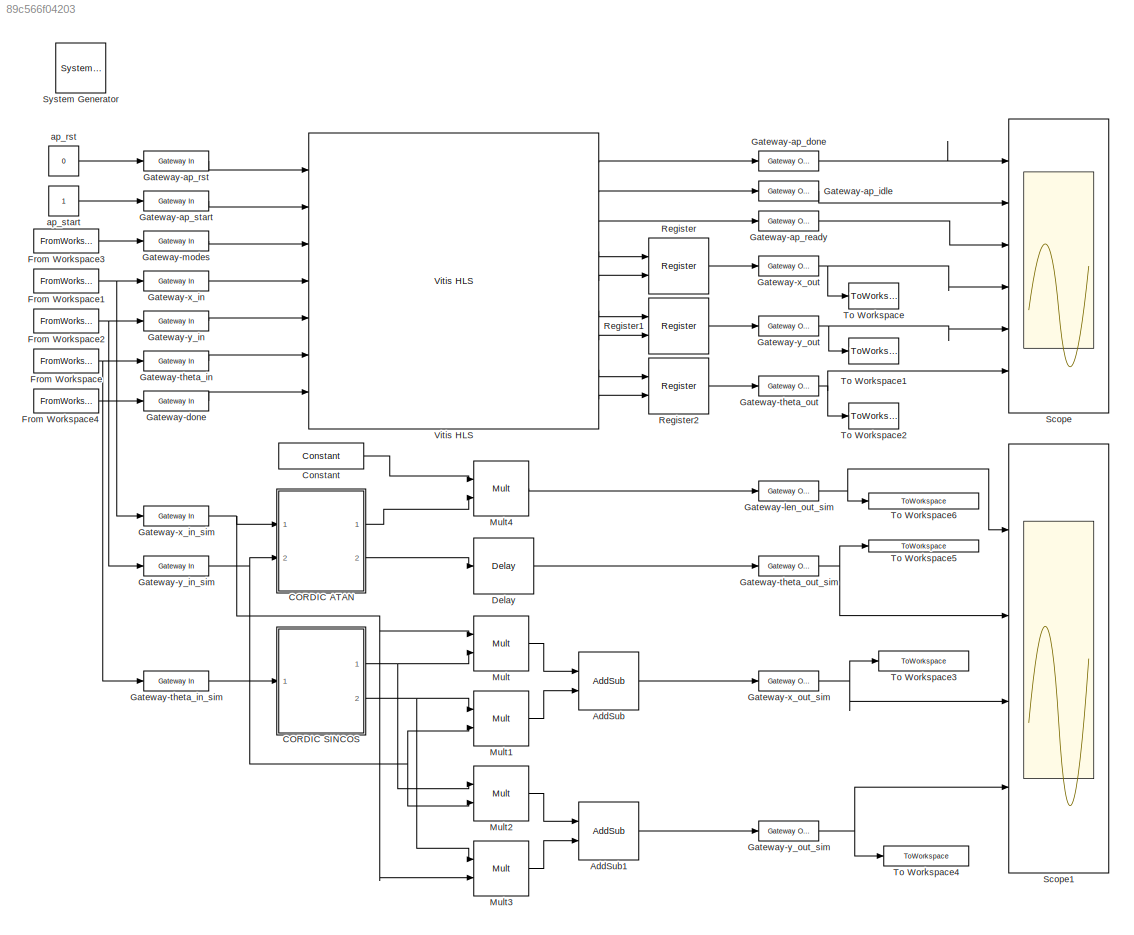
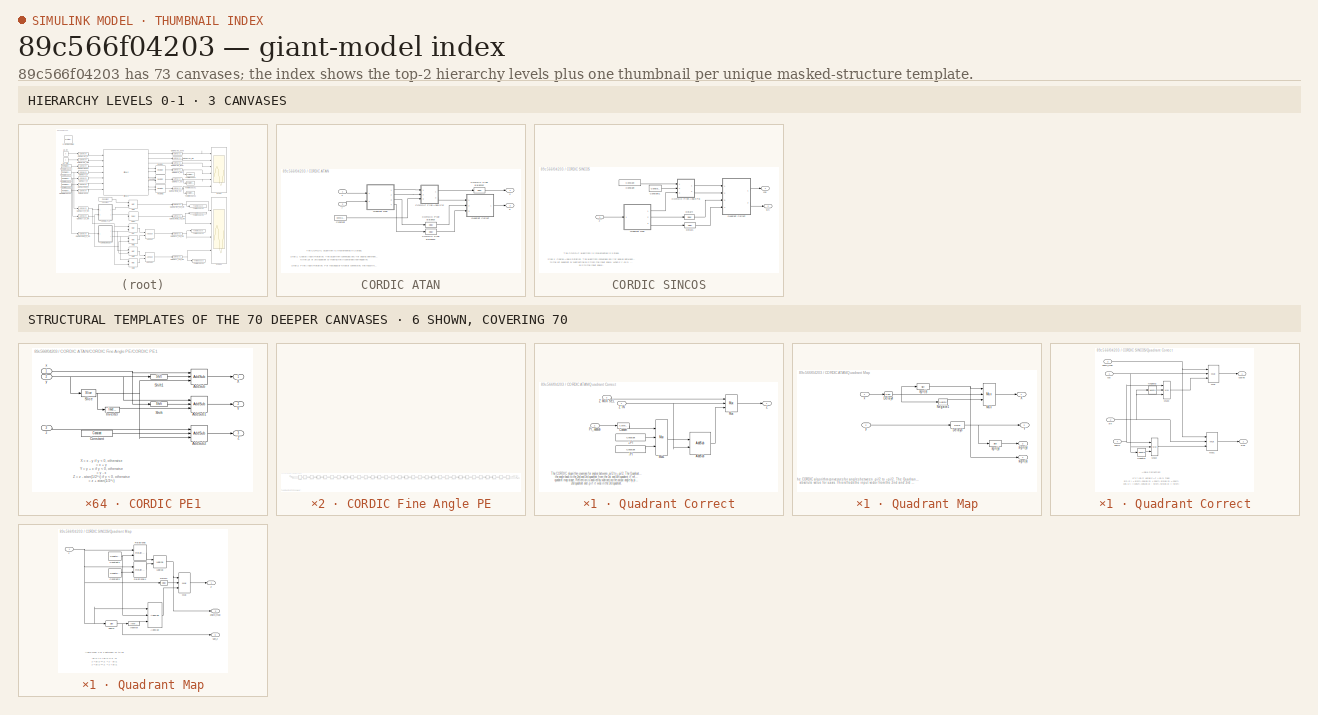
[diagram: thumbnail index - top-2 hierarchy levels (3 canvases) + 6 structural-template representatives of the remaining 70 canvases]
MODEL slx_89c566f04203
KIND model
CONFIG AbsTol = auto
CONFIG EnableMultiTasking = off
CONFIG FixedStep = auto
CONFIG MaxStep = auto
CONFIG MinStep = auto
CONFIG RelTol = 1e-3
CONFIG SampleTimeConstraint = Unconstrained
CONFIG SolverName = VariableStepAuto
CONFIG StartTime = 0.0
CONFIG StopTime = 400
BLOCK [Reference]  System Generator  REF=xbsIndex_r4/ System Generator
  AttributesFormatString = System\nGenerator
  Ports = []
  SourceBlock = xbsIndex_r4/ System Generator
  SourceType = Xilinx System Generator Block
  Tag = genX
  UserDataPersistent = on
BLOCK [Reference] AddSub  REF=hdlBasic/AddSub
  Ports = [2, 1]
  SourceBlock = hdlBasic/AddSub
  SourceType = Adder/Subtracter Block
BLOCK [Reference] AddSub1  REF=hdlBasic/AddSub
  Ports = [2, 1]
  SourceBlock = hdlBasic/AddSub
  SourceType = Adder/Subtracter Block
BLOCK [SubSystem] CORDIC ATAN
  CopyFcn = set_param(gcb, 'MaskSelfModifiable', 'on', 'LinkStatus', 'none');
  Ports = [2, 2]
  RequestExecContextInheritance = off
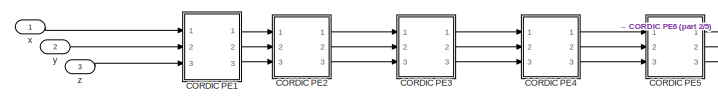
[diagram: CORDIC ATAN/CORDIC Fine Angle PE - part 1/5, top left region]
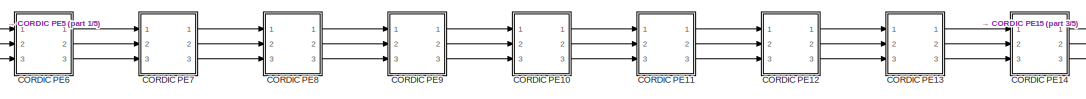
[diagram: CORDIC ATAN/CORDIC Fine Angle PE - part 2/5, top left region]
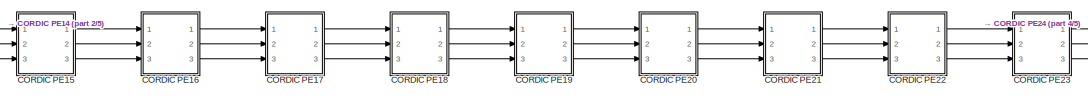
[diagram: CORDIC ATAN/CORDIC Fine Angle PE - part 3/5, top center region]
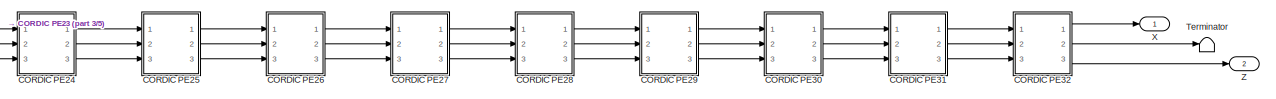
[diagram: CORDIC ATAN/CORDIC Fine Angle PE - part 4/5, top right region]
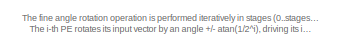
[diagram: CORDIC ATAN/CORDIC Fine Angle PE - part 5/5, bottom left region]
BLOCK [SubSystem] CORDIC ATAN/CORDIC Fine Angle PE
  Ports = [3, 2]
  RequestExecContextInheritance = off
BLOCK [SubSystem] CORDIC ATAN/CORDIC Fine Angle PE/CORDIC PE1
  Ports = [3, 3]
  RequestExecContextInheritance = off
BLOCK [Reference] CORDIC ATAN/CORDIC Fine Angle PE/CORDIC PE1/AddSub  REF=hdlBasic/AddSub
  Ports = [3, 1]
  SourceBlock = hdlBasic/AddSub
  SourceType = Adder/Subtracter Block
BLOCK [Reference] CORDIC ATAN/CORDIC Fine Angle PE/CORDIC PE1/AddSub1  REF=hdlBasic/AddSub
  Ports = [3, 1]
  SourceBlock = hdlBasic/AddSub
  SourceType = Adder/Subtracter Block
BLOCK [Reference] CORDIC ATAN/CORDIC Fine Angle PE/CORDIC PE1/AddSub2  REF=hdlBasic/AddSub
  Ports = [3, 1]
  SourceBlock = hdlBasic/AddSub
  SourceType = Adder/Subtracter Block
BLOCK [Reference] CORDIC ATAN/CORDIC Fine Angle PE/CORDIC PE1/Constant  REF=hdlBasic/Constant
  Ports = [0, 1]
  SourceBlock = hdlBasic/Constant
  SourceType = Constant Block Block
BLOCK [Reference] CORDIC ATAN/CORDIC Fine Angle PE/CORDIC PE1/Inverter  REF=hdlBasic/Inverter
  Ports = [1, 1]
  SourceBlock = hdlBasic/Inverter
  SourceType = Inverter Block
BLOCK [Reference] CORDIC ATAN/CORDIC Fine Angle PE/CORDIC PE1/Shift  REF=hdlBasic/Shift
  Ports = [1, 1]
  SourceBlock = hdlBasic/Shift
  SourceType = Binary Shift Operator Block
BLOCK [Reference] CORDIC ATAN/CORDIC Fine Angle PE/CORDIC PE1/Shift1  REF=hdlBasic/Shift
  Ports = [1, 1]
  SourceBlock = hdlBasic/Shift
  SourceType = Binary Shift Operator Block
BLOCK [Reference] CORDIC ATAN/CORDIC Fine Angle PE/CORDIC PE1/Slice  REF=hdlBasic/Slice
  Ports = [1, 1]
  SourceBlock = hdlBasic/Slice
  SourceType = Bit Slice Extractor Block
BLOCK [Outport] CORDIC ATAN/CORDIC Fine Angle PE/CORDIC PE1/X
BLOCK [Outport] CORDIC ATAN/CORDIC Fine Angle PE/CORDIC PE1/Y
  Port = 2
BLOCK [Outport] CORDIC ATAN/CORDIC Fine Angle PE/CORDIC PE1/Z
  Port = 3
BLOCK [Inport] CORDIC ATAN/CORDIC Fine Angle PE/CORDIC PE1/x
  NameLocation = top
BLOCK [Inport] CORDIC ATAN/CORDIC Fine Angle PE/CORDIC PE1/y
  Port = 2
BLOCK [Inport] CORDIC ATAN/CORDIC Fine Angle PE/CORDIC PE1/z
  Port = 3
BLOCK [SubSystem] CORDIC ATAN/CORDIC Fine Angle PE/CORDIC PE10
  Ports = [3, 3]
  RequestExecContextInheritance = off
BLOCK [Reference] CORDIC ATAN/CORDIC Fine Angle PE/CORDIC PE10/AddSub  REF=hdlBasic/AddSub
  Ports = [3, 1]
  SourceBlock = hdlBasic/AddSub
  SourceType = Adder/Subtracter Block
BLOCK [Reference] CORDIC ATAN/CORDIC Fine Angle PE/CORDIC PE10/AddSub1  REF=hdlBasic/AddSub
  Ports = [3, 1]
  SourceBlock = hdlBasic/AddSub
  SourceType = Adder/Subtracter Block
BLOCK [Reference] CORDIC ATAN/CORDIC Fine Angle PE/CORDIC PE10/AddSub2  REF=hdlBasic/AddSub
  Ports = [3, 1]
  SourceBlock = hdlBasic/AddSub
  SourceType = Adder/Subtracter Block
BLOCK [Reference] CORDIC ATAN/CORDIC Fine Angle PE/CORDIC PE10/Constant  REF=hdlBasic/Constant
  Ports = [0, 1]
  SourceBlock = hdlBasic/Constant
  SourceType = Constant Block Block
BLOCK [Reference] CORDIC ATAN/CORDIC Fine Angle PE/CORDIC PE10/Inverter  REF=hdlBasic/Inverter
  Ports = [1, 1]
  SourceBlock = hdlBasic/Inverter
  SourceType = Inverter Block
BLOCK [Reference] CORDIC ATAN/CORDIC Fine Angle PE/CORDIC PE10/Shift  REF=hdlBasic/Shift
  Ports = [1, 1]
  SourceBlock = hdlBasic/Shift
  SourceType = Binary Shift Operator Block
BLOCK [Reference] CORDIC ATAN/CORDIC Fine Angle PE/CORDIC PE10/Shift1  REF=hdlBasic/Shift
  Ports = [1, 1]
  SourceBlock = hdlBasic/Shift
  SourceType = Binary Shift Operator Block
BLOCK [Reference] CORDIC ATAN/CORDIC Fine Angle PE/CORDIC PE10/Slice  REF=hdlBasic/Slice
  Ports = [1, 1]
  SourceBlock = hdlBasic/Slice
  SourceType = Bit Slice Extractor Block
BLOCK [Outport] CORDIC ATAN/CORDIC Fine Angle PE/CORDIC PE10/X
BLOCK [Outport] CORDIC ATAN/CORDIC Fine Angle PE/CORDIC PE10/Y
  Port = 2
BLOCK [Outport] CORDIC ATAN/CORDIC Fine Angle PE/CORDIC PE10/Z
  Port = 3
BLOCK [Inport] CORDIC ATAN/CORDIC Fine Angle PE/CORDIC PE10/x
  NameLocation = top
BLOCK [Inport] CORDIC ATAN/CORDIC Fine Angle PE/CORDIC PE10/y
  Port = 2
BLOCK [Inport] CORDIC ATAN/CORDIC Fine Angle PE/CORDIC PE10/z
  Port = 3
BLOCK [SubSystem] CORDIC ATAN/CORDIC Fine Angle PE/CORDIC PE11
  Ports = [3, 3]
  RequestExecContextInheritance = off
BLOCK [Reference] CORDIC ATAN/CORDIC Fine Angle PE/CORDIC PE11/AddSub  REF=hdlBasic/AddSub
  Ports = [3, 1]
  SourceBlock = hdlBasic/AddSub
  SourceType = Adder/Subtracter Block
BLOCK [Reference] CORDIC ATAN/CORDIC Fine Angle PE/CORDIC PE11/AddSub1  REF=hdlBasic/AddSub
  Ports = [3, 1]
  SourceBlock = hdlBasic/AddSub
  SourceType = Adder/Subtracter Block
BLOCK [Reference] CORDIC ATAN/CORDIC Fine Angle PE/CORDIC PE11/AddSub2  REF=hdlBasic/AddSub
  Ports = [3, 1]
  SourceBlock = hdlBasic/AddSub
  SourceType = Adder/Subtracter Block
BLOCK [Reference] CORDIC ATAN/CORDIC Fine Angle PE/CORDIC PE11/Constant  REF=hdlBasic/Constant
  Ports = [0, 1]
  SourceBlock = hdlBasic/Constant
  SourceType = Constant Block Block
BLOCK [Reference] CORDIC ATAN/CORDIC Fine Angle PE/CORDIC PE11/Inverter  REF=hdlBasic/Inverter
  Ports = [1, 1]
  SourceBlock = hdlBasic/Inverter
  SourceType = Inverter Block
BLOCK [Reference] CORDIC ATAN/CORDIC Fine Angle PE/CORDIC PE11/Shift  REF=hdlBasic/Shift
  Ports = [1, 1]
  SourceBlock = hdlBasic/Shift
  SourceType = Binary Shift Operator Block
BLOCK [Reference] CORDIC ATAN/CORDIC Fine Angle PE/CORDIC PE11/Shift1  REF=hdlBasic/Shift
  Ports = [1, 1]
  SourceBlock = hdlBasic/Shift
  SourceType = Binary Shift Operator Block
BLOCK [Reference] CORDIC ATAN/CORDIC Fine Angle PE/CORDIC PE11/Slice  REF=hdlBasic/Slice
  Ports = [1, 1]
  SourceBlock = hdlBasic/Slice
  SourceType = Bit Slice Extractor Block
BLOCK [Outport] CORDIC ATAN/CORDIC Fine Angle PE/CORDIC PE11/X
BLOCK [Outport] CORDIC ATAN/CORDIC Fine Angle PE/CORDIC PE11/Y
  Port = 2
BLOCK [Outport] CORDIC ATAN/CORDIC Fine Angle PE/CORDIC PE11/Z
  Port = 3
BLOCK [Inport] CORDIC ATAN/CORDIC Fine Angle PE/CORDIC PE11/x
  NameLocation = top
BLOCK [Inport] CORDIC ATAN/CORDIC Fine Angle PE/CORDIC PE11/y
  Port = 2
BLOCK [Inport] CORDIC ATAN/CORDIC Fine Angle PE/CORDIC PE11/z
  Port = 3
BLOCK [SubSystem] CORDIC ATAN/CORDIC Fine Angle PE/CORDIC PE12
  Ports = [3, 3]
  RequestExecContextInheritance = off
BLOCK [Reference] CORDIC ATAN/CORDIC Fine Angle PE/CORDIC PE12/AddSub  REF=hdlBasic/AddSub
  Ports = [3, 1]
  SourceBlock = hdlBasic/AddSub
  SourceType = Adder/Subtracter Block
BLOCK [Reference] CORDIC ATAN/CORDIC Fine Angle PE/CORDIC PE12/AddSub1  REF=hdlBasic/AddSub
  Ports = [3, 1]
  SourceBlock = hdlBasic/AddSub
  SourceType = Adder/Subtracter Block
BLOCK [Reference] CORDIC ATAN/CORDIC Fine Angle PE/CORDIC PE12/AddSub2  REF=hdlBasic/AddSub
  Ports = [3, 1]
  SourceBlock = hdlBasic/AddSub
  SourceType = Adder/Subtracter Block
BLOCK [Reference] CORDIC ATAN/CORDIC Fine Angle PE/CORDIC PE12/Constant  REF=hdlBasic/Constant
  Ports = [0, 1]
  SourceBlock = hdlBasic/Constant
  SourceType = Constant Block Block
BLOCK [Reference] CORDIC ATAN/CORDIC Fine Angle PE/CORDIC PE12/Inverter  REF=hdlBasic/Inverter
  Ports = [1, 1]
  SourceBlock = hdlBasic/Inverter
  SourceType = Inverter Block
BLOCK [Reference] CORDIC ATAN/CORDIC Fine Angle PE/CORDIC PE12/Shift  REF=hdlBasic/Shift
  Ports = [1, 1]
  SourceBlock = hdlBasic/Shift
  SourceType = Binary Shift Operator Block
BLOCK [Reference] CORDIC ATAN/CORDIC Fine Angle PE/CORDIC PE12/Shift1  REF=hdlBasic/Shift
  Ports = [1, 1]
  SourceBlock = hdlBasic/Shift
  SourceType = Binary Shift Operator Block
BLOCK [Reference] CORDIC ATAN/CORDIC Fine Angle PE/CORDIC PE12/Slice  REF=hdlBasic/Slice
  Ports = [1, 1]
  SourceBlock = hdlBasic/Slice
  SourceType = Bit Slice Extractor Block
BLOCK [Outport] CORDIC ATAN/CORDIC Fine Angle PE/CORDIC PE12/X
BLOCK [Outport] CORDIC ATAN/CORDIC Fine Angle PE/CORDIC PE12/Y
  Port = 2
BLOCK [Outport] CORDIC ATAN/CORDIC Fine Angle PE/CORDIC PE12/Z
  Port = 3
BLOCK [Inport] CORDIC ATAN/CORDIC Fine Angle PE/CORDIC PE12/x
  NameLocation = top
BLOCK [Inport] CORDIC ATAN/CORDIC Fine Angle PE/CORDIC PE12/y
  Port = 2
BLOCK [Inport] CORDIC ATAN/CORDIC Fine Angle PE/CORDIC PE12/z
  Port = 3
BLOCK [SubSystem] CORDIC ATAN/CORDIC Fine Angle PE/CORDIC PE13
  Ports = [3, 3]
  RequestExecContextInheritance = off
BLOCK [Reference] CORDIC ATAN/CORDIC Fine Angle PE/CORDIC PE13/AddSub  REF=hdlBasic/AddSub
  Ports = [3, 1]
  SourceBlock = hdlBasic/AddSub
  SourceType = Adder/Subtracter Block
BLOCK [Reference] CORDIC ATAN/CORDIC Fine Angle PE/CORDIC PE13/AddSub1  REF=hdlBasic/AddSub
  Ports = [3, 1]
  SourceBlock = hdlBasic/AddSub
  SourceType = Adder/Subtracter Block
BLOCK [Reference] CORDIC ATAN/CORDIC Fine Angle PE/CORDIC PE13/AddSub2  REF=hdlBasic/AddSub
  Ports = [3, 1]
  SourceBlock = hdlBasic/AddSub
  SourceType = Adder/Subtracter Block
BLOCK [Reference] CORDIC ATAN/CORDIC Fine Angle PE/CORDIC PE13/Constant  REF=hdlBasic/Constant
  Ports = [0, 1]
  SourceBlock = hdlBasic/Constant
  SourceType = Constant Block Block
BLOCK [Reference] CORDIC ATAN/CORDIC Fine Angle PE/CORDIC PE13/Inverter  REF=hdlBasic/Inverter
  Ports = [1, 1]
  SourceBlock = hdlBasic/Inverter
  SourceType = Inverter Block
BLOCK [Reference] CORDIC ATAN/CORDIC Fine Angle PE/CORDIC PE13/Shift  REF=hdlBasic/Shift
  Ports = [1, 1]
  SourceBlock = hdlBasic/Shift
  SourceType = Binary Shift Operator Block
BLOCK [Reference] CORDIC ATAN/CORDIC Fine Angle PE/CORDIC PE13/Shift1  REF=hdlBasic/Shift
  Ports = [1, 1]
  SourceBlock = hdlBasic/Shift
  SourceType = Binary Shift Operator Block
BLOCK [Reference] CORDIC ATAN/CORDIC Fine Angle PE/CORDIC PE13/Slice  REF=hdlBasic/Slice
  Ports = [1, 1]
  SourceBlock = hdlBasic/Slice
  SourceType = Bit Slice Extractor Block
BLOCK [Outport] CORDIC ATAN/CORDIC Fine Angle PE/CORDIC PE13/X
BLOCK [Outport] CORDIC ATAN/CORDIC Fine Angle PE/CORDIC PE13/Y
  Port = 2
BLOCK [Outport] CORDIC ATAN/CORDIC Fine Angle PE/CORDIC PE13/Z
  Port = 3
BLOCK [Inport] CORDIC ATAN/CORDIC Fine Angle PE/CORDIC PE13/x
  NameLocation = top
BLOCK [Inport] CORDIC ATAN/CORDIC Fine Angle PE/CORDIC PE13/y
  Port = 2
BLOCK [Inport] CORDIC ATAN/CORDIC Fine Angle PE/CORDIC PE13/z
  Port = 3
BLOCK [SubSystem] CORDIC ATAN/CORDIC Fine Angle PE/CORDIC PE14
  Ports = [3, 3]
  RequestExecContextInheritance = off
BLOCK [Reference] CORDIC ATAN/CORDIC Fine Angle PE/CORDIC PE14/AddSub  REF=hdlBasic/AddSub
  Ports = [3, 1]
  SourceBlock = hdlBasic/AddSub
  SourceType = Adder/Subtracter Block
BLOCK [Reference] CORDIC ATAN/CORDIC Fine Angle PE/CORDIC PE14/AddSub1  REF=hdlBasic/AddSub
  Ports = [3, 1]
  SourceBlock = hdlBasic/AddSub
  SourceType = Adder/Subtracter Block
BLOCK [Reference] CORDIC ATAN/CORDIC Fine Angle PE/CORDIC PE14/AddSub2  REF=hdlBasic/AddSub
  Ports = [3, 1]
  SourceBlock = hdlBasic/AddSub
  SourceType = Adder/Subtracter Block
BLOCK [Reference] CORDIC ATAN/CORDIC Fine Angle PE/CORDIC PE14/Constant  REF=hdlBasic/Constant
  Ports = [0, 1]
  SourceBlock = hdlBasic/Constant
  SourceType = Constant Block Block
BLOCK [Reference] CORDIC ATAN/CORDIC Fine Angle PE/CORDIC PE14/Inverter  REF=hdlBasic/Inverter
  Ports = [1, 1]
  SourceBlock = hdlBasic/Inverter
  SourceType = Inverter Block
BLOCK [Reference] CORDIC ATAN/CORDIC Fine Angle PE/CORDIC PE14/Shift  REF=hdlBasic/Shift
  Ports = [1, 1]
  SourceBlock = hdlBasic/Shift
  SourceType = Binary Shift Operator Block
BLOCK [Reference] CORDIC ATAN/CORDIC Fine Angle PE/CORDIC PE14/Shift1  REF=hdlBasic/Shift
  Ports = [1, 1]
  SourceBlock = hdlBasic/Shift
  SourceType = Binary Shift Operator Block
BLOCK [Reference] CORDIC ATAN/CORDIC Fine Angle PE/CORDIC PE14/Slice  REF=hdlBasic/Slice
  Ports = [1, 1]
  SourceBlock = hdlBasic/Slice
  SourceType = Bit Slice Extractor Block
BLOCK [Outport] CORDIC ATAN/CORDIC Fine Angle PE/CORDIC PE14/X
BLOCK [Outport] CORDIC ATAN/CORDIC Fine Angle PE/CORDIC PE14/Y
  Port = 2
BLOCK [Outport] CORDIC ATAN/CORDIC Fine Angle PE/CORDIC PE14/Z
  Port = 3
BLOCK [Inport] CORDIC ATAN/CORDIC Fine Angle PE/CORDIC PE14/x
  NameLocation = top
BLOCK [Inport] CORDIC ATAN/CORDIC Fine Angle PE/CORDIC PE14/y
  Port = 2
BLOCK [Inport] CORDIC ATAN/CORDIC Fine Angle PE/CORDIC PE14/z
  Port = 3
BLOCK [SubSystem] CORDIC ATAN/CORDIC Fine Angle PE/CORDIC PE15
  Ports = [3, 3]
  RequestExecContextInheritance = off
BLOCK [Reference] CORDIC ATAN/CORDIC Fine Angle PE/CORDIC PE15/AddSub  REF=hdlBasic/AddSub
  Ports = [3, 1]
  SourceBlock = hdlBasic/AddSub
  SourceType = Adder/Subtracter Block
BLOCK [Reference] CORDIC ATAN/CORDIC Fine Angle PE/CORDIC PE15/AddSub1  REF=hdlBasic/AddSub
  Ports = [3, 1]
  SourceBlock = hdlBasic/AddSub
  SourceType = Adder/Subtracter Block
BLOCK [Reference] CORDIC ATAN/CORDIC Fine Angle PE/CORDIC PE15/AddSub2  REF=hdlBasic/AddSub
  Ports = [3, 1]
  SourceBlock = hdlBasic/AddSub
  SourceType = Adder/Subtracter Block
BLOCK [Reference] CORDIC ATAN/CORDIC Fine Angle PE/CORDIC PE15/Constant  REF=hdlBasic/Constant
  Ports = [0, 1]
  SourceBlock = hdlBasic/Constant
  SourceType = Constant Block Block
BLOCK [Reference] CORDIC ATAN/CORDIC Fine Angle PE/CORDIC PE15/Inverter  REF=hdlBasic/Inverter
  Ports = [1, 1]
  SourceBlock = hdlBasic/Inverter
  SourceType = Inverter Block
BLOCK [Reference] CORDIC ATAN/CORDIC Fine Angle PE/CORDIC PE15/Shift  REF=hdlBasic/Shift
  Ports = [1, 1]
  SourceBlock = hdlBasic/Shift
  SourceType = Binary Shift Operator Block
BLOCK [Reference] CORDIC ATAN/CORDIC Fine Angle PE/CORDIC PE15/Shift1  REF=hdlBasic/Shift
  Ports = [1, 1]
  SourceBlock = hdlBasic/Shift
  SourceType = Binary Shift Operator Block
BLOCK [Reference] CORDIC ATAN/CORDIC Fine Angle PE/CORDIC PE15/Slice  REF=hdlBasic/Slice
  Ports = [1, 1]
  SourceBlock = hdlBasic/Slice
  SourceType = Bit Slice Extractor Block
BLOCK [Outport] CORDIC ATAN/CORDIC Fine Angle PE/CORDIC PE15/X
BLOCK [Outport] CORDIC ATAN/CORDIC Fine Angle PE/CORDIC PE15/Y
  Port = 2
BLOCK [Outport] CORDIC ATAN/CORDIC Fine Angle PE/CORDIC PE15/Z
  Port = 3
BLOCK [Inport] CORDIC ATAN/CORDIC Fine Angle PE/CORDIC PE15/x
  NameLocation = top
BLOCK [Inport] CORDIC ATAN/CORDIC Fine Angle PE/CORDIC PE15/y
  Port = 2
BLOCK [Inport] CORDIC ATAN/CORDIC Fine Angle PE/CORDIC PE15/z
  Port = 3
BLOCK [SubSystem] CORDIC ATAN/CORDIC Fine Angle PE/CORDIC PE16
  Ports = [3, 3]
  RequestExecContextInheritance = off
BLOCK [Reference] CORDIC ATAN/CORDIC Fine Angle PE/CORDIC PE16/AddSub  REF=hdlBasic/AddSub
  Ports = [3, 1]
  SourceBlock = hdlBasic/AddSub
  SourceType = Adder/Subtracter Block
BLOCK [Reference] CORDIC ATAN/CORDIC Fine Angle PE/CORDIC PE16/AddSub1  REF=hdlBasic/AddSub
  Ports = [3, 1]
  SourceBlock = hdlBasic/AddSub
  SourceType = Adder/Subtracter Block
BLOCK [Reference] CORDIC ATAN/CORDIC Fine Angle PE/CORDIC PE16/AddSub2  REF=hdlBasic/AddSub
  Ports = [3, 1]
  SourceBlock = hdlBasic/AddSub
  SourceType = Adder/Subtracter Block
BLOCK [Reference] CORDIC ATAN/CORDIC Fine Angle PE/CORDIC PE16/Constant  REF=hdlBasic/Constant
  Ports = [0, 1]
  SourceBlock = hdlBasic/Constant
  SourceType = Constant Block Block
BLOCK [Reference] CORDIC ATAN/CORDIC Fine Angle PE/CORDIC PE16/Inverter  REF=hdlBasic/Inverter
  Ports = [1, 1]
  SourceBlock = hdlBasic/Inverter
  SourceType = Inverter Block
BLOCK [Reference] CORDIC ATAN/CORDIC Fine Angle PE/CORDIC PE16/Shift  REF=hdlBasic/Shift
  Ports = [1, 1]
  SourceBlock = hdlBasic/Shift
  SourceType = Binary Shift Operator Block
BLOCK [Reference] CORDIC ATAN/CORDIC Fine Angle PE/CORDIC PE16/Shift1  REF=hdlBasic/Shift
  Ports = [1, 1]
  SourceBlock = hdlBasic/Shift
  SourceType = Binary Shift Operator Block
BLOCK [Reference] CORDIC ATAN/CORDIC Fine Angle PE/CORDIC PE16/Slice  REF=hdlBasic/Slice
  Ports = [1, 1]
  SourceBlock = hdlBasic/Slice
  SourceType = Bit Slice Extractor Block
BLOCK [Outport] CORDIC ATAN/CORDIC Fine Angle PE/CORDIC PE16/X
BLOCK [Outport] CORDIC ATAN/CORDIC Fine Angle PE/CORDIC PE16/Y
  Port = 2
BLOCK [Outport] CORDIC ATAN/CORDIC Fine Angle PE/CORDIC PE16/Z
  Port = 3
BLOCK [Inport] CORDIC ATAN/CORDIC Fine Angle PE/CORDIC PE16/x
  NameLocation = top
BLOCK [Inport] CORDIC ATAN/CORDIC Fine Angle PE/CORDIC PE16/y
  Port = 2
BLOCK [Inport] CORDIC ATAN/CORDIC Fine Angle PE/CORDIC PE16/z
  Port = 3
BLOCK [SubSystem] CORDIC ATAN/CORDIC Fine Angle PE/CORDIC PE17
  Ports = [3, 3]
  RequestExecContextInheritance = off
BLOCK [Reference] CORDIC ATAN/CORDIC Fine Angle PE/CORDIC PE17/AddSub  REF=hdlBasic/AddSub
  Ports = [3, 1]
  SourceBlock = hdlBasic/AddSub
  SourceType = Adder/Subtracter Block
BLOCK [Reference] CORDIC ATAN/CORDIC Fine Angle PE/CORDIC PE17/AddSub1  REF=hdlBasic/AddSub
  Ports = [3, 1]
  SourceBlock = hdlBasic/AddSub
  SourceType = Adder/Subtracter Block
BLOCK [Reference] CORDIC ATAN/CORDIC Fine Angle PE/CORDIC PE17/AddSub2  REF=hdlBasic/AddSub
  Ports = [3, 1]
  SourceBlock = hdlBasic/AddSub
  SourceType = Adder/Subtracter Block
BLOCK [Reference] CORDIC ATAN/CORDIC Fine Angle PE/CORDIC PE17/Constant  REF=hdlBasic/Constant
  Ports = [0, 1]
  SourceBlock = hdlBasic/Constant
  SourceType = Constant Block Block
BLOCK [Reference] CORDIC ATAN/CORDIC Fine Angle PE/CORDIC PE17/Inverter  REF=hdlBasic/Inverter
  Ports = [1, 1]
  SourceBlock = hdlBasic/Inverter
  SourceType = Inverter Block
BLOCK [Reference] CORDIC ATAN/CORDIC Fine Angle PE/CORDIC PE17/Shift  REF=hdlBasic/Shift
  Ports = [1, 1]
  SourceBlock = hdlBasic/Shift
  SourceType = Binary Shift Operator Block
BLOCK [Reference] CORDIC ATAN/CORDIC Fine Angle PE/CORDIC PE17/Shift1  REF=hdlBasic/Shift
  Ports = [1, 1]
  SourceBlock = hdlBasic/Shift
  SourceType = Binary Shift Operator Block
BLOCK [Reference] CORDIC ATAN/CORDIC Fine Angle PE/CORDIC PE17/Slice  REF=hdlBasic/Slice
  Ports = [1, 1]
  SourceBlock = hdlBasic/Slice
  SourceType = Bit Slice Extractor Block
BLOCK [Outport] CORDIC ATAN/CORDIC Fine Angle PE/CORDIC PE17/X
BLOCK [Outport] CORDIC ATAN/CORDIC Fine Angle PE/CORDIC PE17/Y
  Port = 2
BLOCK [Outport] CORDIC ATAN/CORDIC Fine Angle PE/CORDIC PE17/Z
  Port = 3
BLOCK [Inport] CORDIC ATAN/CORDIC Fine Angle PE/CORDIC PE17/x
  NameLocation = top
BLOCK [Inport] CORDIC ATAN/CORDIC Fine Angle PE/CORDIC PE17/y
  Port = 2
BLOCK [Inport] CORDIC ATAN/CORDIC Fine Angle PE/CORDIC PE17/z
  Port = 3
BLOCK [SubSystem] CORDIC ATAN/CORDIC Fine Angle PE/CORDIC PE18
  Ports = [3, 3]
  RequestExecContextInheritance = off
BLOCK [Reference] CORDIC ATAN/CORDIC Fine Angle PE/CORDIC PE18/AddSub  REF=hdlBasic/AddSub
  Ports = [3, 1]
  SourceBlock = hdlBasic/AddSub
  SourceType = Adder/Subtracter Block
BLOCK [Reference] CORDIC ATAN/CORDIC Fine Angle PE/CORDIC PE18/AddSub1  REF=hdlBasic/AddSub
  Ports = [3, 1]
  SourceBlock = hdlBasic/AddSub
  SourceType = Adder/Subtracter Block
BLOCK [Reference] CORDIC ATAN/CORDIC Fine Angle PE/CORDIC PE18/AddSub2  REF=hdlBasic/AddSub
  Ports = [3, 1]
  SourceBlock = hdlBasic/AddSub
  SourceType = Adder/Subtracter Block
BLOCK [Reference] CORDIC ATAN/CORDIC Fine Angle PE/CORDIC PE18/Constant  REF=hdlBasic/Constant
  Ports = [0, 1]
  SourceBlock = hdlBasic/Constant
  SourceType = Constant Block Block
BLOCK [Reference] CORDIC ATAN/CORDIC Fine Angle PE/CORDIC PE18/Inverter  REF=hdlBasic/Inverter
  Ports = [1, 1]
  SourceBlock = hdlBasic/Inverter
  SourceType = Inverter Block
BLOCK [Reference] CORDIC ATAN/CORDIC Fine Angle PE/CORDIC PE18/Shift  REF=hdlBasic/Shift
  Ports = [1, 1]
  SourceBlock = hdlBasic/Shift
  SourceType = Binary Shift Operator Block
BLOCK [Reference] CORDIC ATAN/CORDIC Fine Angle PE/CORDIC PE18/Shift1  REF=hdlBasic/Shift
  Ports = [1, 1]
  SourceBlock = hdlBasic/Shift
  SourceType = Binary Shift Operator Block
BLOCK [Reference] CORDIC ATAN/CORDIC Fine Angle PE/CORDIC PE18/Slice  REF=hdlBasic/Slice
  Ports = [1, 1]
  SourceBlock = hdlBasic/Slice
  SourceType = Bit Slice Extractor Block
BLOCK [Outport] CORDIC ATAN/CORDIC Fine Angle PE/CORDIC PE18/X
BLOCK [Outport] CORDIC ATAN/CORDIC Fine Angle PE/CORDIC PE18/Y
  Port = 2
BLOCK [Outport] CORDIC ATAN/CORDIC Fine Angle PE/CORDIC PE18/Z
  Port = 3
BLOCK [Inport] CORDIC ATAN/CORDIC Fine Angle PE/CORDIC PE18/x
  NameLocation = top
BLOCK [Inport] CORDIC ATAN/CORDIC Fine Angle PE/CORDIC PE18/y
  Port = 2
BLOCK [Inport] CORDIC ATAN/CORDIC Fine Angle PE/CORDIC PE18/z
  Port = 3
BLOCK [SubSystem] CORDIC ATAN/CORDIC Fine Angle PE/CORDIC PE19
  Ports = [3, 3]
  RequestExecContextInheritance = off
BLOCK [Reference] CORDIC ATAN/CORDIC Fine Angle PE/CORDIC PE19/AddSub  REF=hdlBasic/AddSub
  Ports = [3, 1]
  SourceBlock = hdlBasic/AddSub
  SourceType = Adder/Subtracter Block
BLOCK [Reference] CORDIC ATAN/CORDIC Fine Angle PE/CORDIC PE19/AddSub1  REF=hdlBasic/AddSub
  Ports = [3, 1]
  SourceBlock = hdlBasic/AddSub
  SourceType = Adder/Subtracter Block
BLOCK [Reference] CORDIC ATAN/CORDIC Fine Angle PE/CORDIC PE19/AddSub2  REF=hdlBasic/AddSub
  Ports = [3, 1]
  SourceBlock = hdlBasic/AddSub
  SourceType = Adder/Subtracter Block
BLOCK [Reference] CORDIC ATAN/CORDIC Fine Angle PE/CORDIC PE19/Constant  REF=hdlBasic/Constant
  Ports = [0, 1]
  SourceBlock = hdlBasic/Constant
  SourceType = Constant Block Block
BLOCK [Reference] CORDIC ATAN/CORDIC Fine Angle PE/CORDIC PE19/Inverter  REF=hdlBasic/Inverter
  Ports = [1, 1]
  SourceBlock = hdlBasic/Inverter
  SourceType = Inverter Block
BLOCK [Reference] CORDIC ATAN/CORDIC Fine Angle PE/CORDIC PE19/Shift  REF=hdlBasic/Shift
  Ports = [1, 1]
  SourceBlock = hdlBasic/Shift
  SourceType = Binary Shift Operator Block
BLOCK [Reference] CORDIC ATAN/CORDIC Fine Angle PE/CORDIC PE19/Shift1  REF=hdlBasic/Shift
  Ports = [1, 1]
  SourceBlock = hdlBasic/Shift
  SourceType = Binary Shift Operator Block
BLOCK [Reference] CORDIC ATAN/CORDIC Fine Angle PE/CORDIC PE19/Slice  REF=hdlBasic/Slice
  Ports = [1, 1]
  SourceBlock = hdlBasic/Slice
  SourceType = Bit Slice Extractor Block
BLOCK [Outport] CORDIC ATAN/CORDIC Fine Angle PE/CORDIC PE19/X
BLOCK [Outport] CORDIC ATAN/CORDIC Fine Angle PE/CORDIC PE19/Y
  Port = 2
BLOCK [Outport] CORDIC ATAN/CORDIC Fine Angle PE/CORDIC PE19/Z
  Port = 3
BLOCK [Inport] CORDIC ATAN/CORDIC Fine Angle PE/CORDIC PE19/x
  NameLocation = top
BLOCK [Inport] CORDIC ATAN/CORDIC Fine Angle PE/CORDIC PE19/y
  Port = 2
BLOCK [Inport] CORDIC ATAN/CORDIC Fine Angle PE/CORDIC PE19/z
  Port = 3
BLOCK [SubSystem] CORDIC ATAN/CORDIC Fine Angle PE/CORDIC PE2
  Ports = [3, 3]
  RequestExecContextInheritance = off
BLOCK [Reference] CORDIC ATAN/CORDIC Fine Angle PE/CORDIC PE2/AddSub  REF=hdlBasic/AddSub
  Ports = [3, 1]
  SourceBlock = hdlBasic/AddSub
  SourceType = Adder/Subtracter Block
BLOCK [Reference] CORDIC ATAN/CORDIC Fine Angle PE/CORDIC PE2/AddSub1  REF=hdlBasic/AddSub
  Ports = [3, 1]
  SourceBlock = hdlBasic/AddSub
  SourceType = Adder/Subtracter Block
BLOCK [Reference] CORDIC ATAN/CORDIC Fine Angle PE/CORDIC PE2/AddSub2  REF=hdlBasic/AddSub
  Ports = [3, 1]
  SourceBlock = hdlBasic/AddSub
  SourceType = Adder/Subtracter Block
BLOCK [Reference] CORDIC ATAN/CORDIC Fine Angle PE/CORDIC PE2/Constant  REF=hdlBasic/Constant
  Ports = [0, 1]
  SourceBlock = hdlBasic/Constant
  SourceType = Constant Block Block
BLOCK [Reference] CORDIC ATAN/CORDIC Fine Angle PE/CORDIC PE2/Inverter  REF=hdlBasic/Inverter
  Ports = [1, 1]
  SourceBlock = hdlBasic/Inverter
  SourceType = Inverter Block
BLOCK [Reference] CORDIC ATAN/CORDIC Fine Angle PE/CORDIC PE2/Shift  REF=hdlBasic/Shift
  Ports = [1, 1]
  SourceBlock = hdlBasic/Shift
  SourceType = Binary Shift Operator Block
BLOCK [Reference] CORDIC ATAN/CORDIC Fine Angle PE/CORDIC PE2/Shift1  REF=hdlBasic/Shift
  Ports = [1, 1]
  SourceBlock = hdlBasic/Shift
  SourceType = Binary Shift Operator Block
BLOCK [Reference] CORDIC ATAN/CORDIC Fine Angle PE/CORDIC PE2/Slice  REF=hdlBasic/Slice
  Ports = [1, 1]
  SourceBlock = hdlBasic/Slice
  SourceType = Bit Slice Extractor Block
BLOCK [Outport] CORDIC ATAN/CORDIC Fine Angle PE/CORDIC PE2/X
BLOCK [Outport] CORDIC ATAN/CORDIC Fine Angle PE/CORDIC PE2/Y
  Port = 2
BLOCK [Outport] CORDIC ATAN/CORDIC Fine Angle PE/CORDIC PE2/Z
  Port = 3
BLOCK [Inport] CORDIC ATAN/CORDIC Fine Angle PE/CORDIC PE2/x
  NameLocation = top
BLOCK [Inport] CORDIC ATAN/CORDIC Fine Angle PE/CORDIC PE2/y
  Port = 2
BLOCK [Inport] CORDIC ATAN/CORDIC Fine Angle PE/CORDIC PE2/z
  Port = 3
BLOCK [SubSystem] CORDIC ATAN/CORDIC Fine Angle PE/CORDIC PE20
  Ports = [3, 3]
  RequestExecContextInheritance = off
BLOCK [Reference] CORDIC ATAN/CORDIC Fine Angle PE/CORDIC PE20/AddSub  REF=hdlBasic/AddSub
  Ports = [3, 1]
  SourceBlock = hdlBasic/AddSub
  SourceType = Adder/Subtracter Block
BLOCK [Reference] CORDIC ATAN/CORDIC Fine Angle PE/CORDIC PE20/AddSub1  REF=hdlBasic/AddSub
  Ports = [3, 1]
  SourceBlock = hdlBasic/AddSub
  SourceType = Adder/Subtracter Block
BLOCK [Reference] CORDIC ATAN/CORDIC Fine Angle PE/CORDIC PE20/AddSub2  REF=hdlBasic/AddSub
  Ports = [3, 1]
  SourceBlock = hdlBasic/AddSub
  SourceType = Adder/Subtracter Block
BLOCK [Reference] CORDIC ATAN/CORDIC Fine Angle PE/CORDIC PE20/Constant  REF=hdlBasic/Constant
  Ports = [0, 1]
  SourceBlock = hdlBasic/Constant
  SourceType = Constant Block Block
BLOCK [Reference] CORDIC ATAN/CORDIC Fine Angle PE/CORDIC PE20/Inverter  REF=hdlBasic/Inverter
  Ports = [1, 1]
  SourceBlock = hdlBasic/Inverter
  SourceType = Inverter Block
BLOCK [Reference] CORDIC ATAN/CORDIC Fine Angle PE/CORDIC PE20/Shift  REF=hdlBasic/Shift
  Ports = [1, 1]
  SourceBlock = hdlBasic/Shift
  SourceType = Binary Shift Operator Block
BLOCK [Reference] CORDIC ATAN/CORDIC Fine Angle PE/CORDIC PE20/Shift1  REF=hdlBasic/Shift
  Ports = [1, 1]
  SourceBlock = hdlBasic/Shift
  SourceType = Binary Shift Operator Block
BLOCK [Reference] CORDIC ATAN/CORDIC Fine Angle PE/CORDIC PE20/Slice  REF=hdlBasic/Slice
  Ports = [1, 1]
  SourceBlock = hdlBasic/Slice
  SourceType = Bit Slice Extractor Block
BLOCK [Outport] CORDIC ATAN/CORDIC Fine Angle PE/CORDIC PE20/X
BLOCK [Outport] CORDIC ATAN/CORDIC Fine Angle PE/CORDIC PE20/Y
  Port = 2
BLOCK [Outport] CORDIC ATAN/CORDIC Fine Angle PE/CORDIC PE20/Z
  Port = 3
BLOCK [Inport] CORDIC ATAN/CORDIC Fine Angle PE/CORDIC PE20/x
  NameLocation = top
BLOCK [Inport] CORDIC ATAN/CORDIC Fine Angle PE/CORDIC PE20/y
  Port = 2
BLOCK [Inport] CORDIC ATAN/CORDIC Fine Angle PE/CORDIC PE20/z
  Port = 3
BLOCK [SubSystem] CORDIC ATAN/CORDIC Fine Angle PE/CORDIC PE21
  Ports = [3, 3]
  RequestExecContextInheritance = off
BLOCK [Reference] CORDIC ATAN/CORDIC Fine Angle PE/CORDIC PE21/AddSub  REF=hdlBasic/AddSub
  Ports = [3, 1]
  SourceBlock = hdlBasic/AddSub
  SourceType = Adder/Subtracter Block
BLOCK [Reference] CORDIC ATAN/CORDIC Fine Angle PE/CORDIC PE21/AddSub1  REF=hdlBasic/AddSub
  Ports = [3, 1]
  SourceBlock = hdlBasic/AddSub
  SourceType = Adder/Subtracter Block
BLOCK [Reference] CORDIC ATAN/CORDIC Fine Angle PE/CORDIC PE21/AddSub2  REF=hdlBasic/AddSub
  Ports = [3, 1]
  SourceBlock = hdlBasic/AddSub
  SourceType = Adder/Subtracter Block
BLOCK [Reference] CORDIC ATAN/CORDIC Fine Angle PE/CORDIC PE21/Constant  REF=hdlBasic/Constant
  Ports = [0, 1]
  SourceBlock = hdlBasic/Constant
  SourceType = Constant Block Block
BLOCK [Reference] CORDIC ATAN/CORDIC Fine Angle PE/CORDIC PE21/Inverter  REF=hdlBasic/Inverter
  Ports = [1, 1]
  SourceBlock = hdlBasic/Inverter
  SourceType = Inverter Block
BLOCK [Reference] CORDIC ATAN/CORDIC Fine Angle PE/CORDIC PE21/Shift  REF=hdlBasic/Shift
  Ports = [1, 1]
  SourceBlock = hdlBasic/Shift
  SourceType = Binary Shift Operator Block
BLOCK [Reference] CORDIC ATAN/CORDIC Fine Angle PE/CORDIC PE21/Shift1  REF=hdlBasic/Shift
  Ports = [1, 1]
  SourceBlock = hdlBasic/Shift
  SourceType = Binary Shift Operator Block
BLOCK [Reference] CORDIC ATAN/CORDIC Fine Angle PE/CORDIC PE21/Slice  REF=hdlBasic/Slice
  Ports = [1, 1]
  SourceBlock = hdlBasic/Slice
  SourceType = Bit Slice Extractor Block
BLOCK [Outport] CORDIC ATAN/CORDIC Fine Angle PE/CORDIC PE21/X
BLOCK [Outport] CORDIC ATAN/CORDIC Fine Angle PE/CORDIC PE21/Y
  Port = 2
BLOCK [Outport] CORDIC ATAN/CORDIC Fine Angle PE/CORDIC PE21/Z
  Port = 3
BLOCK [Inport] CORDIC ATAN/CORDIC Fine Angle PE/CORDIC PE21/x
  NameLocation = top
BLOCK [Inport] CORDIC ATAN/CORDIC Fine Angle PE/CORDIC PE21/y
  Port = 2
BLOCK [Inport] CORDIC ATAN/CORDIC Fine Angle PE/CORDIC PE21/z
  Port = 3
BLOCK [SubSystem] CORDIC ATAN/CORDIC Fine Angle PE/CORDIC PE22
  Ports = [3, 3]
  RequestExecContextInheritance = off
BLOCK [Reference] CORDIC ATAN/CORDIC Fine Angle PE/CORDIC PE22/AddSub  REF=hdlBasic/AddSub
  Ports = [3, 1]
  SourceBlock = hdlBasic/AddSub
  SourceType = Adder/Subtracter Block
BLOCK [Reference] CORDIC ATAN/CORDIC Fine Angle PE/CORDIC PE22/AddSub1  REF=hdlBasic/AddSub
  Ports = [3, 1]
  SourceBlock = hdlBasic/AddSub
  SourceType = Adder/Subtracter Block
BLOCK [Reference] CORDIC ATAN/CORDIC Fine Angle PE/CORDIC PE22/AddSub2  REF=hdlBasic/AddSub
  Ports = [3, 1]
  SourceBlock = hdlBasic/AddSub
  SourceType = Adder/Subtracter Block
BLOCK [Reference] CORDIC ATAN/CORDIC Fine Angle PE/CORDIC PE22/Constant  REF=hdlBasic/Constant
  Ports = [0, 1]
  SourceBlock = hdlBasic/Constant
  SourceType = Constant Block Block
BLOCK [Reference] CORDIC ATAN/CORDIC Fine Angle PE/CORDIC PE22/Inverter  REF=hdlBasic/Inverter
  Ports = [1, 1]
  SourceBlock = hdlBasic/Inverter
  SourceType = Inverter Block
BLOCK [Reference] CORDIC ATAN/CORDIC Fine Angle PE/CORDIC PE22/Shift  REF=hdlBasic/Shift
  Ports = [1, 1]
  SourceBlock = hdlBasic/Shift
  SourceType = Binary Shift Operator Block
BLOCK [Reference] CORDIC ATAN/CORDIC Fine Angle PE/CORDIC PE22/Shift1  REF=hdlBasic/Shift
  Ports = [1, 1]
  SourceBlock = hdlBasic/Shift
  SourceType = Binary Shift Operator Block
BLOCK [Reference] CORDIC ATAN/CORDIC Fine Angle PE/CORDIC PE22/Slice  REF=hdlBasic/Slice
  Ports = [1, 1]
  SourceBlock = hdlBasic/Slice
  SourceType = Bit Slice Extractor Block
BLOCK [Outport] CORDIC ATAN/CORDIC Fine Angle PE/CORDIC PE22/X
BLOCK [Outport] CORDIC ATAN/CORDIC Fine Angle PE/CORDIC PE22/Y
  Port = 2
BLOCK [Outport] CORDIC ATAN/CORDIC Fine Angle PE/CORDIC PE22/Z
  Port = 3
BLOCK [Inport] CORDIC ATAN/CORDIC Fine Angle PE/CORDIC PE22/x
  NameLocation = top
BLOCK [Inport] CORDIC ATAN/CORDIC Fine Angle PE/CORDIC PE22/y
  Port = 2
BLOCK [Inport] CORDIC ATAN/CORDIC Fine Angle PE/CORDIC PE22/z
  Port = 3
BLOCK [SubSystem] CORDIC ATAN/CORDIC Fine Angle PE/CORDIC PE23
  Ports = [3, 3]
  RequestExecContextInheritance = off
BLOCK [Reference] CORDIC ATAN/CORDIC Fine Angle PE/CORDIC PE23/AddSub  REF=hdlBasic/AddSub
  Ports = [3, 1]
  SourceBlock = hdlBasic/AddSub
  SourceType = Adder/Subtracter Block
BLOCK [Reference] CORDIC ATAN/CORDIC Fine Angle PE/CORDIC PE23/AddSub1  REF=hdlBasic/AddSub
  Ports = [3, 1]
  SourceBlock = hdlBasic/AddSub
  SourceType = Adder/Subtracter Block
BLOCK [Reference] CORDIC ATAN/CORDIC Fine Angle PE/CORDIC PE23/AddSub2  REF=hdlBasic/AddSub
  Ports = [3, 1]
  SourceBlock = hdlBasic/AddSub
  SourceType = Adder/Subtracter Block
BLOCK [Reference] CORDIC ATAN/CORDIC Fine Angle PE/CORDIC PE23/Constant  REF=hdlBasic/Constant
  Ports = [0, 1]
  SourceBlock = hdlBasic/Constant
  SourceType = Constant Block Block
BLOCK [Reference] CORDIC ATAN/CORDIC Fine Angle PE/CORDIC PE23/Inverter  REF=hdlBasic/Inverter
  Ports = [1, 1]
  SourceBlock = hdlBasic/Inverter
  SourceType = Inverter Block
BLOCK [Reference] CORDIC ATAN/CORDIC Fine Angle PE/CORDIC PE23/Shift  REF=hdlBasic/Shift
  Ports = [1, 1]
  SourceBlock = hdlBasic/Shift
  SourceType = Binary Shift Operator Block
BLOCK [Reference] CORDIC ATAN/CORDIC Fine Angle PE/CORDIC PE23/Shift1  REF=hdlBasic/Shift
  Ports = [1, 1]
  SourceBlock = hdlBasic/Shift
  SourceType = Binary Shift Operator Block
BLOCK [Reference] CORDIC ATAN/CORDIC Fine Angle PE/CORDIC PE23/Slice  REF=hdlBasic/Slice
  Ports = [1, 1]
  SourceBlock = hdlBasic/Slice
  SourceType = Bit Slice Extractor Block
BLOCK [Outport] CORDIC ATAN/CORDIC Fine Angle PE/CORDIC PE23/X
BLOCK [Outport] CORDIC ATAN/CORDIC Fine Angle PE/CORDIC PE23/Y
  Port = 2
BLOCK [Outport] CORDIC ATAN/CORDIC Fine Angle PE/CORDIC PE23/Z
  Port = 3
BLOCK [Inport] CORDIC ATAN/CORDIC Fine Angle PE/CORDIC PE23/x
  NameLocation = top
BLOCK [Inport] CORDIC ATAN/CORDIC Fine Angle PE/CORDIC PE23/y
  Port = 2
BLOCK [Inport] CORDIC ATAN/CORDIC Fine Angle PE/CORDIC PE23/z
  Port = 3
BLOCK [SubSystem] CORDIC ATAN/CORDIC Fine Angle PE/CORDIC PE24
  Ports = [3, 3]
  RequestExecContextInheritance = off
BLOCK [Reference] CORDIC ATAN/CORDIC Fine Angle PE/CORDIC PE24/AddSub  REF=hdlBasic/AddSub
  Ports = [3, 1]
  SourceBlock = hdlBasic/AddSub
  SourceType = Adder/Subtracter Block
BLOCK [Reference] CORDIC ATAN/CORDIC Fine Angle PE/CORDIC PE24/AddSub1  REF=hdlBasic/AddSub
  Ports = [3, 1]
  SourceBlock = hdlBasic/AddSub
  SourceType = Adder/Subtracter Block
BLOCK [Reference] CORDIC ATAN/CORDIC Fine Angle PE/CORDIC PE24/AddSub2  REF=hdlBasic/AddSub
  Ports = [3, 1]
  SourceBlock = hdlBasic/AddSub
  SourceType = Adder/Subtracter Block
BLOCK [Reference] CORDIC ATAN/CORDIC Fine Angle PE/CORDIC PE24/Constant  REF=hdlBasic/Constant
  Ports = [0, 1]
  SourceBlock = hdlBasic/Constant
  SourceType = Constant Block Block
BLOCK [Reference] CORDIC ATAN/CORDIC Fine Angle PE/CORDIC PE24/Inverter  REF=hdlBasic/Inverter
  Ports = [1, 1]
  SourceBlock = hdlBasic/Inverter
  SourceType = Inverter Block
BLOCK [Reference] CORDIC ATAN/CORDIC Fine Angle PE/CORDIC PE24/Shift  REF=hdlBasic/Shift
  Ports = [1, 1]
  SourceBlock = hdlBasic/Shift
  SourceType = Binary Shift Operator Block
BLOCK [Reference] CORDIC ATAN/CORDIC Fine Angle PE/CORDIC PE24/Shift1  REF=hdlBasic/Shift
  Ports = [1, 1]
  SourceBlock = hdlBasic/Shift
  SourceType = Binary Shift Operator Block
BLOCK [Reference] CORDIC ATAN/CORDIC Fine Angle PE/CORDIC PE24/Slice  REF=hdlBasic/Slice
  Ports = [1, 1]
  SourceBlock = hdlBasic/Slice
  SourceType = Bit Slice Extractor Block
BLOCK [Outport] CORDIC ATAN/CORDIC Fine Angle PE/CORDIC PE24/X
BLOCK [Outport] CORDIC ATAN/CORDIC Fine Angle PE/CORDIC PE24/Y
  Port = 2
BLOCK [Outport] CORDIC ATAN/CORDIC Fine Angle PE/CORDIC PE24/Z
  Port = 3
BLOCK [Inport] CORDIC ATAN/CORDIC Fine Angle PE/CORDIC PE24/x
  NameLocation = top
BLOCK [Inport] CORDIC ATAN/CORDIC Fine Angle PE/CORDIC PE24/y
  Port = 2
BLOCK [Inport] CORDIC ATAN/CORDIC Fine Angle PE/CORDIC PE24/z
  Port = 3
BLOCK [SubSystem] CORDIC ATAN/CORDIC Fine Angle PE/CORDIC PE25
  Ports = [3, 3]
  RequestExecContextInheritance = off
BLOCK [Reference] CORDIC ATAN/CORDIC Fine Angle PE/CORDIC PE25/AddSub  REF=hdlBasic/AddSub
  Ports = [3, 1]
  SourceBlock = hdlBasic/AddSub
  SourceType = Adder/Subtracter Block
BLOCK [Reference] CORDIC ATAN/CORDIC Fine Angle PE/CORDIC PE25/AddSub1  REF=hdlBasic/AddSub
  Ports = [3, 1]
  SourceBlock = hdlBasic/AddSub
  SourceType = Adder/Subtracter Block
BLOCK [Reference] CORDIC ATAN/CORDIC Fine Angle PE/CORDIC PE25/AddSub2  REF=hdlBasic/AddSub
  Ports = [3, 1]
  SourceBlock = hdlBasic/AddSub
  SourceType = Adder/Subtracter Block
BLOCK [Reference] CORDIC ATAN/CORDIC Fine Angle PE/CORDIC PE25/Constant  REF=hdlBasic/Constant
  Ports = [0, 1]
  SourceBlock = hdlBasic/Constant
  SourceType = Constant Block Block
BLOCK [Reference] CORDIC ATAN/CORDIC Fine Angle PE/CORDIC PE25/Inverter  REF=hdlBasic/Inverter
  Ports = [1, 1]
  SourceBlock = hdlBasic/Inverter
  SourceType = Inverter Block
BLOCK [Reference] CORDIC ATAN/CORDIC Fine Angle PE/CORDIC PE25/Shift  REF=hdlBasic/Shift
  Ports = [1, 1]
  SourceBlock = hdlBasic/Shift
  SourceType = Binary Shift Operator Block
BLOCK [Reference] CORDIC ATAN/CORDIC Fine Angle PE/CORDIC PE25/Shift1  REF=hdlBasic/Shift
  Ports = [1, 1]
  SourceBlock = hdlBasic/Shift
  SourceType = Binary Shift Operator Block
BLOCK [Reference] CORDIC ATAN/CORDIC Fine Angle PE/CORDIC PE25/Slice  REF=hdlBasic/Slice
  Ports = [1, 1]
  SourceBlock = hdlBasic/Slice
  SourceType = Bit Slice Extractor Block
BLOCK [Outport] CORDIC ATAN/CORDIC Fine Angle PE/CORDIC PE25/X
BLOCK [Outport] CORDIC ATAN/CORDIC Fine Angle PE/CORDIC PE25/Y
  Port = 2
BLOCK [Outport] CORDIC ATAN/CORDIC Fine Angle PE/CORDIC PE25/Z
  Port = 3
BLOCK [Inport] CORDIC ATAN/CORDIC Fine Angle PE/CORDIC PE25/x
  NameLocation = top
BLOCK [Inport] CORDIC ATAN/CORDIC Fine Angle PE/CORDIC PE25/y
  Port = 2
BLOCK [Inport] CORDIC ATAN/CORDIC Fine Angle PE/CORDIC PE25/z
  Port = 3
BLOCK [SubSystem] CORDIC ATAN/CORDIC Fine Angle PE/CORDIC PE26
  Ports = [3, 3]
  RequestExecContextInheritance = off
BLOCK [Reference] CORDIC ATAN/CORDIC Fine Angle PE/CORDIC PE26/AddSub  REF=hdlBasic/AddSub
  Ports = [3, 1]
  SourceBlock = hdlBasic/AddSub
  SourceType = Adder/Subtracter Block
BLOCK [Reference] CORDIC ATAN/CORDIC Fine Angle PE/CORDIC PE26/AddSub1  REF=hdlBasic/AddSub
  Ports = [3, 1]
  SourceBlock = hdlBasic/AddSub
  SourceType = Adder/Subtracter Block
BLOCK [Reference] CORDIC ATAN/CORDIC Fine Angle PE/CORDIC PE26/AddSub2  REF=hdlBasic/AddSub
  Ports = [3, 1]
  SourceBlock = hdlBasic/AddSub
  SourceType = Adder/Subtracter Block
BLOCK [Reference] CORDIC ATAN/CORDIC Fine Angle PE/CORDIC PE26/Constant  REF=hdlBasic/Constant
  Ports = [0, 1]
  SourceBlock = hdlBasic/Constant
  SourceType = Constant Block Block
BLOCK [Reference] CORDIC ATAN/CORDIC Fine Angle PE/CORDIC PE26/Inverter  REF=hdlBasic/Inverter
  Ports = [1, 1]
  SourceBlock = hdlBasic/Inverter
  SourceType = Inverter Block
BLOCK [Reference] CORDIC ATAN/CORDIC Fine Angle PE/CORDIC PE26/Shift  REF=hdlBasic/Shift
  Ports = [1, 1]
  SourceBlock = hdlBasic/Shift
  SourceType = Binary Shift Operator Block
BLOCK [Reference] CORDIC ATAN/CORDIC Fine Angle PE/CORDIC PE26/Shift1  REF=hdlBasic/Shift
  Ports = [1, 1]
  SourceBlock = hdlBasic/Shift
  SourceType = Binary Shift Operator Block
BLOCK [Reference] CORDIC ATAN/CORDIC Fine Angle PE/CORDIC PE26/Slice  REF=hdlBasic/Slice
  Ports = [1, 1]
  SourceBlock = hdlBasic/Slice
  SourceType = Bit Slice Extractor Block
BLOCK [Outport] CORDIC ATAN/CORDIC Fine Angle PE/CORDIC PE26/X
BLOCK [Outport] CORDIC ATAN/CORDIC Fine Angle PE/CORDIC PE26/Y
  Port = 2
BLOCK [Outport] CORDIC ATAN/CORDIC Fine Angle PE/CORDIC PE26/Z
  Port = 3
BLOCK [Inport] CORDIC ATAN/CORDIC Fine Angle PE/CORDIC PE26/x
  NameLocation = top
BLOCK [Inport] CORDIC ATAN/CORDIC Fine Angle PE/CORDIC PE26/y
  Port = 2
BLOCK [Inport] CORDIC ATAN/CORDIC Fine Angle PE/CORDIC PE26/z
  Port = 3
BLOCK [SubSystem] CORDIC ATAN/CORDIC Fine Angle PE/CORDIC PE27
  Ports = [3, 3]
  RequestExecContextInheritance = off
BLOCK [Reference] CORDIC ATAN/CORDIC Fine Angle PE/CORDIC PE27/AddSub  REF=hdlBasic/AddSub
  Ports = [3, 1]
  SourceBlock = hdlBasic/AddSub
  SourceType = Adder/Subtracter Block
BLOCK [Reference] CORDIC ATAN/CORDIC Fine Angle PE/CORDIC PE27/AddSub1  REF=hdlBasic/AddSub
  Ports = [3, 1]
  SourceBlock = hdlBasic/AddSub
  SourceType = Adder/Subtracter Block
BLOCK [Reference] CORDIC ATAN/CORDIC Fine Angle PE/CORDIC PE27/AddSub2  REF=hdlBasic/AddSub
  Ports = [3, 1]
  SourceBlock = hdlBasic/AddSub
  SourceType = Adder/Subtracter Block
BLOCK [Reference] CORDIC ATAN/CORDIC Fine Angle PE/CORDIC PE27/Constant  REF=hdlBasic/Constant
  Ports = [0, 1]
  SourceBlock = hdlBasic/Constant
  SourceType = Constant Block Block
BLOCK [Reference] CORDIC ATAN/CORDIC Fine Angle PE/CORDIC PE27/Inverter  REF=hdlBasic/Inverter
  Ports = [1, 1]
  SourceBlock = hdlBasic/Inverter
  SourceType = Inverter Block
BLOCK [Reference] CORDIC ATAN/CORDIC Fine Angle PE/CORDIC PE27/Shift  REF=hdlBasic/Shift
  Ports = [1, 1]
  SourceBlock = hdlBasic/Shift
  SourceType = Binary Shift Operator Block
BLOCK [Reference] CORDIC ATAN/CORDIC Fine Angle PE/CORDIC PE27/Shift1  REF=hdlBasic/Shift
  Ports = [1, 1]
  SourceBlock = hdlBasic/Shift
  SourceType = Binary Shift Operator Block
BLOCK [Reference] CORDIC ATAN/CORDIC Fine Angle PE/CORDIC PE27/Slice  REF=hdlBasic/Slice
  Ports = [1, 1]
  SourceBlock = hdlBasic/Slice
  SourceType = Bit Slice Extractor Block
BLOCK [Outport] CORDIC ATAN/CORDIC Fine Angle PE/CORDIC PE27/X
BLOCK [Outport] CORDIC ATAN/CORDIC Fine Angle PE/CORDIC PE27/Y
  Port = 2
BLOCK [Outport] CORDIC ATAN/CORDIC Fine Angle PE/CORDIC PE27/Z
  Port = 3
BLOCK [Inport] CORDIC ATAN/CORDIC Fine Angle PE/CORDIC PE27/x
  NameLocation = top
BLOCK [Inport] CORDIC ATAN/CORDIC Fine Angle PE/CORDIC PE27/y
  Port = 2
BLOCK [Inport] CORDIC ATAN/CORDIC Fine Angle PE/CORDIC PE27/z
  Port = 3
BLOCK [SubSystem] CORDIC ATAN/CORDIC Fine Angle PE/CORDIC PE28
  Ports = [3, 3]
  RequestExecContextInheritance = off
BLOCK [Reference] CORDIC ATAN/CORDIC Fine Angle PE/CORDIC PE28/AddSub  REF=hdlBasic/AddSub
  Ports = [3, 1]
  SourceBlock = hdlBasic/AddSub
  SourceType = Adder/Subtracter Block
BLOCK [Reference] CORDIC ATAN/CORDIC Fine Angle PE/CORDIC PE28/AddSub1  REF=hdlBasic/AddSub
  Ports = [3, 1]
  SourceBlock = hdlBasic/AddSub
  SourceType = Adder/Subtracter Block
BLOCK [Reference] CORDIC ATAN/CORDIC Fine Angle PE/CORDIC PE28/AddSub2  REF=hdlBasic/AddSub
  Ports = [3, 1]
  SourceBlock = hdlBasic/AddSub
  SourceType = Adder/Subtracter Block
BLOCK [Reference] CORDIC ATAN/CORDIC Fine Angle PE/CORDIC PE28/Constant  REF=hdlBasic/Constant
  Ports = [0, 1]
  SourceBlock = hdlBasic/Constant
  SourceType = Constant Block Block
BLOCK [Reference] CORDIC ATAN/CORDIC Fine Angle PE/CORDIC PE28/Inverter  REF=hdlBasic/Inverter
  Ports = [1, 1]
  SourceBlock = hdlBasic/Inverter
  SourceType = Inverter Block
BLOCK [Reference] CORDIC ATAN/CORDIC Fine Angle PE/CORDIC PE28/Shift  REF=hdlBasic/Shift
  Ports = [1, 1]
  SourceBlock = hdlBasic/Shift
  SourceType = Binary Shift Operator Block
BLOCK [Reference] CORDIC ATAN/CORDIC Fine Angle PE/CORDIC PE28/Shift1  REF=hdlBasic/Shift
  Ports = [1, 1]
  SourceBlock = hdlBasic/Shift
  SourceType = Binary Shift Operator Block
BLOCK [Reference] CORDIC ATAN/CORDIC Fine Angle PE/CORDIC PE28/Slice  REF=hdlBasic/Slice
  Ports = [1, 1]
  SourceBlock = hdlBasic/Slice
  SourceType = Bit Slice Extractor Block
BLOCK [Outport] CORDIC ATAN/CORDIC Fine Angle PE/CORDIC PE28/X
BLOCK [Outport] CORDIC ATAN/CORDIC Fine Angle PE/CORDIC PE28/Y
  Port = 2
BLOCK [Outport] CORDIC ATAN/CORDIC Fine Angle PE/CORDIC PE28/Z
  Port = 3
BLOCK [Inport] CORDIC ATAN/CORDIC Fine Angle PE/CORDIC PE28/x
  NameLocation = top
BLOCK [Inport] CORDIC ATAN/CORDIC Fine Angle PE/CORDIC PE28/y
  Port = 2
BLOCK [Inport] CORDIC ATAN/CORDIC Fine Angle PE/CORDIC PE28/z
  Port = 3
BLOCK [SubSystem] CORDIC ATAN/CORDIC Fine Angle PE/CORDIC PE29
  Ports = [3, 3]
  RequestExecContextInheritance = off
BLOCK [Reference] CORDIC ATAN/CORDIC Fine Angle PE/CORDIC PE29/AddSub  REF=hdlBasic/AddSub
  Ports = [3, 1]
  SourceBlock = hdlBasic/AddSub
  SourceType = Adder/Subtracter Block
BLOCK [Reference] CORDIC ATAN/CORDIC Fine Angle PE/CORDIC PE29/AddSub1  REF=hdlBasic/AddSub
  Ports = [3, 1]
  SourceBlock = hdlBasic/AddSub
  SourceType = Adder/Subtracter Block
BLOCK [Reference] CORDIC ATAN/CORDIC Fine Angle PE/CORDIC PE29/AddSub2  REF=hdlBasic/AddSub
  Ports = [3, 1]
  SourceBlock = hdlBasic/AddSub
  SourceType = Adder/Subtracter Block
BLOCK [Reference] CORDIC ATAN/CORDIC Fine Angle PE/CORDIC PE29/Constant  REF=hdlBasic/Constant
  Ports = [0, 1]
  SourceBlock = hdlBasic/Constant
  SourceType = Constant Block Block
BLOCK [Reference] CORDIC ATAN/CORDIC Fine Angle PE/CORDIC PE29/Inverter  REF=hdlBasic/Inverter
  Ports = [1, 1]
  SourceBlock = hdlBasic/Inverter
  SourceType = Inverter Block
BLOCK [Reference] CORDIC ATAN/CORDIC Fine Angle PE/CORDIC PE29/Shift  REF=hdlBasic/Shift
  Ports = [1, 1]
  SourceBlock = hdlBasic/Shift
  SourceType = Binary Shift Operator Block
BLOCK [Reference] CORDIC ATAN/CORDIC Fine Angle PE/CORDIC PE29/Shift1  REF=hdlBasic/Shift
  Ports = [1, 1]
  SourceBlock = hdlBasic/Shift
  SourceType = Binary Shift Operator Block
BLOCK [Reference] CORDIC ATAN/CORDIC Fine Angle PE/CORDIC PE29/Slice  REF=hdlBasic/Slice
  Ports = [1, 1]
  SourceBlock = hdlBasic/Slice
  SourceType = Bit Slice Extractor Block
BLOCK [Outport] CORDIC ATAN/CORDIC Fine Angle PE/CORDIC PE29/X
BLOCK [Outport] CORDIC ATAN/CORDIC Fine Angle PE/CORDIC PE29/Y
  Port = 2
BLOCK [Outport] CORDIC ATAN/CORDIC Fine Angle PE/CORDIC PE29/Z
  Port = 3
BLOCK [Inport] CORDIC ATAN/CORDIC Fine Angle PE/CORDIC PE29/x
  NameLocation = top
BLOCK [Inport] CORDIC ATAN/CORDIC Fine Angle PE/CORDIC PE29/y
  Port = 2
BLOCK [Inport] CORDIC ATAN/CORDIC Fine Angle PE/CORDIC PE29/z
  Port = 3
BLOCK [SubSystem] CORDIC ATAN/CORDIC Fine Angle PE/CORDIC PE3
  Ports = [3, 3]
  RequestExecContextInheritance = off
BLOCK [Reference] CORDIC ATAN/CORDIC Fine Angle PE/CORDIC PE3/AddSub  REF=hdlBasic/AddSub
  Ports = [3, 1]
  SourceBlock = hdlBasic/AddSub
  SourceType = Adder/Subtracter Block
BLOCK [Reference] CORDIC ATAN/CORDIC Fine Angle PE/CORDIC PE3/AddSub1  REF=hdlBasic/AddSub
  Ports = [3, 1]
  SourceBlock = hdlBasic/AddSub
  SourceType = Adder/Subtracter Block
BLOCK [Reference] CORDIC ATAN/CORDIC Fine Angle PE/CORDIC PE3/AddSub2  REF=hdlBasic/AddSub
  Ports = [3, 1]
  SourceBlock = hdlBasic/AddSub
  SourceType = Adder/Subtracter Block
BLOCK [Reference] CORDIC ATAN/CORDIC Fine Angle PE/CORDIC PE3/Constant  REF=hdlBasic/Constant
  Ports = [0, 1]
  SourceBlock = hdlBasic/Constant
  SourceType = Constant Block Block
BLOCK [Reference] CORDIC ATAN/CORDIC Fine Angle PE/CORDIC PE3/Inverter  REF=hdlBasic/Inverter
  Ports = [1, 1]
  SourceBlock = hdlBasic/Inverter
  SourceType = Inverter Block
BLOCK [Reference] CORDIC ATAN/CORDIC Fine Angle PE/CORDIC PE3/Shift  REF=hdlBasic/Shift
  Ports = [1, 1]
  SourceBlock = hdlBasic/Shift
  SourceType = Binary Shift Operator Block
BLOCK [Reference] CORDIC ATAN/CORDIC Fine Angle PE/CORDIC PE3/Shift1  REF=hdlBasic/Shift
  Ports = [1, 1]
  SourceBlock = hdlBasic/Shift
  SourceType = Binary Shift Operator Block
BLOCK [Reference] CORDIC ATAN/CORDIC Fine Angle PE/CORDIC PE3/Slice  REF=hdlBasic/Slice
  Ports = [1, 1]
  SourceBlock = hdlBasic/Slice
  SourceType = Bit Slice Extractor Block
BLOCK [Outport] CORDIC ATAN/CORDIC Fine Angle PE/CORDIC PE3/X
BLOCK [Outport] CORDIC ATAN/CORDIC Fine Angle PE/CORDIC PE3/Y
  Port = 2
BLOCK [Outport] CORDIC ATAN/CORDIC Fine Angle PE/CORDIC PE3/Z
  Port = 3
BLOCK [Inport] CORDIC ATAN/CORDIC Fine Angle PE/CORDIC PE3/x
  NameLocation = top
BLOCK [Inport] CORDIC ATAN/CORDIC Fine Angle PE/CORDIC PE3/y
  Port = 2
BLOCK [Inport] CORDIC ATAN/CORDIC Fine Angle PE/CORDIC PE3/z
  Port = 3
BLOCK [SubSystem] CORDIC ATAN/CORDIC Fine Angle PE/CORDIC PE30
  Ports = [3, 3]
  RequestExecContextInheritance = off
BLOCK [Reference] CORDIC ATAN/CORDIC Fine Angle PE/CORDIC PE30/AddSub  REF=hdlBasic/AddSub
  Ports = [3, 1]
  SourceBlock = hdlBasic/AddSub
  SourceType = Adder/Subtracter Block
BLOCK [Reference] CORDIC ATAN/CORDIC Fine Angle PE/CORDIC PE30/AddSub1  REF=hdlBasic/AddSub
  Ports = [3, 1]
  SourceBlock = hdlBasic/AddSub
  SourceType = Adder/Subtracter Block
BLOCK [Reference] CORDIC ATAN/CORDIC Fine Angle PE/CORDIC PE30/AddSub2  REF=hdlBasic/AddSub
  Ports = [3, 1]
  SourceBlock = hdlBasic/AddSub
  SourceType = Adder/Subtracter Block
BLOCK [Reference] CORDIC ATAN/CORDIC Fine Angle PE/CORDIC PE30/Constant  REF=hdlBasic/Constant
  Ports = [0, 1]
  SourceBlock = hdlBasic/Constant
  SourceType = Constant Block Block
BLOCK [Reference] CORDIC ATAN/CORDIC Fine Angle PE/CORDIC PE30/Inverter  REF=hdlBasic/Inverter
  Ports = [1, 1]
  SourceBlock = hdlBasic/Inverter
  SourceType = Inverter Block
BLOCK [Reference] CORDIC ATAN/CORDIC Fine Angle PE/CORDIC PE30/Shift  REF=hdlBasic/Shift
  Ports = [1, 1]
  SourceBlock = hdlBasic/Shift
  SourceType = Binary Shift Operator Block
BLOCK [Reference] CORDIC ATAN/CORDIC Fine Angle PE/CORDIC PE30/Shift1  REF=hdlBasic/Shift
  Ports = [1, 1]
  SourceBlock = hdlBasic/Shift
  SourceType = Binary Shift Operator Block
BLOCK [Reference] CORDIC ATAN/CORDIC Fine Angle PE/CORDIC PE30/Slice  REF=hdlBasic/Slice
  Ports = [1, 1]
  SourceBlock = hdlBasic/Slice
  SourceType = Bit Slice Extractor Block
BLOCK [Outport] CORDIC ATAN/CORDIC Fine Angle PE/CORDIC PE30/X
BLOCK [Outport] CORDIC ATAN/CORDIC Fine Angle PE/CORDIC PE30/Y
  Port = 2
BLOCK [Outport] CORDIC ATAN/CORDIC Fine Angle PE/CORDIC PE30/Z
  Port = 3
BLOCK [Inport] CORDIC ATAN/CORDIC Fine Angle PE/CORDIC PE30/x
  NameLocation = top
BLOCK [Inport] CORDIC ATAN/CORDIC Fine Angle PE/CORDIC PE30/y
  Port = 2
BLOCK [Inport] CORDIC ATAN/CORDIC Fine Angle PE/CORDIC PE30/z
  Port = 3
BLOCK [SubSystem] CORDIC ATAN/CORDIC Fine Angle PE/CORDIC PE31
  Ports = [3, 3]
  RequestExecContextInheritance = off
BLOCK [Reference] CORDIC ATAN/CORDIC Fine Angle PE/CORDIC PE31/AddSub  REF=hdlBasic/AddSub
  Ports = [3, 1]
  SourceBlock = hdlBasic/AddSub
  SourceType = Adder/Subtracter Block
BLOCK [Reference] CORDIC ATAN/CORDIC Fine Angle PE/CORDIC PE31/AddSub1  REF=hdlBasic/AddSub
  Ports = [3, 1]
  SourceBlock = hdlBasic/AddSub
  SourceType = Adder/Subtracter Block
BLOCK [Reference] CORDIC ATAN/CORDIC Fine Angle PE/CORDIC PE31/AddSub2  REF=hdlBasic/AddSub
  Ports = [3, 1]
  SourceBlock = hdlBasic/AddSub
  SourceType = Adder/Subtracter Block
BLOCK [Reference] CORDIC ATAN/CORDIC Fine Angle PE/CORDIC PE31/Constant  REF=hdlBasic/Constant
  Ports = [0, 1]
  SourceBlock = hdlBasic/Constant
  SourceType = Constant Block Block
BLOCK [Reference] CORDIC ATAN/CORDIC Fine Angle PE/CORDIC PE31/Inverter  REF=hdlBasic/Inverter
  Ports = [1, 1]
  SourceBlock = hdlBasic/Inverter
  SourceType = Inverter Block
BLOCK [Reference] CORDIC ATAN/CORDIC Fine Angle PE/CORDIC PE31/Shift  REF=hdlBasic/Shift
  Ports = [1, 1]
  SourceBlock = hdlBasic/Shift
  SourceType = Binary Shift Operator Block
BLOCK [Reference] CORDIC ATAN/CORDIC Fine Angle PE/CORDIC PE31/Shift1  REF=hdlBasic/Shift
  Ports = [1, 1]
  SourceBlock = hdlBasic/Shift
  SourceType = Binary Shift Operator Block
BLOCK [Reference] CORDIC ATAN/CORDIC Fine Angle PE/CORDIC PE31/Slice  REF=hdlBasic/Slice
  Ports = [1, 1]
  SourceBlock = hdlBasic/Slice
  SourceType = Bit Slice Extractor Block
BLOCK [Outport] CORDIC ATAN/CORDIC Fine Angle PE/CORDIC PE31/X
BLOCK [Outport] CORDIC ATAN/CORDIC Fine Angle PE/CORDIC PE31/Y
  Port = 2
BLOCK [Outport] CORDIC ATAN/CORDIC Fine Angle PE/CORDIC PE31/Z
  Port = 3
BLOCK [Inport] CORDIC ATAN/CORDIC Fine Angle PE/CORDIC PE31/x
  NameLocation = top
BLOCK [Inport] CORDIC ATAN/CORDIC Fine Angle PE/CORDIC PE31/y
  Port = 2
BLOCK [Inport] CORDIC ATAN/CORDIC Fine Angle PE/CORDIC PE31/z
  Port = 3
BLOCK [SubSystem] CORDIC ATAN/CORDIC Fine Angle PE/CORDIC PE32
  Ports = [3, 3]
  RequestExecContextInheritance = off
BLOCK [Reference] CORDIC ATAN/CORDIC Fine Angle PE/CORDIC PE32/AddSub  REF=hdlBasic/AddSub
  Ports = [3, 1]
  SourceBlock = hdlBasic/AddSub
  SourceType = Adder/Subtracter Block
BLOCK [Reference] CORDIC ATAN/CORDIC Fine Angle PE/CORDIC PE32/AddSub1  REF=hdlBasic/AddSub
  Ports = [3, 1]
  SourceBlock = hdlBasic/AddSub
  SourceType = Adder/Subtracter Block
BLOCK [Reference] CORDIC ATAN/CORDIC Fine Angle PE/CORDIC PE32/AddSub2  REF=hdlBasic/AddSub
  Ports = [3, 1]
  SourceBlock = hdlBasic/AddSub
  SourceType = Adder/Subtracter Block
BLOCK [Reference] CORDIC ATAN/CORDIC Fine Angle PE/CORDIC PE32/Constant  REF=hdlBasic/Constant
  Ports = [0, 1]
  SourceBlock = hdlBasic/Constant
  SourceType = Constant Block Block
BLOCK [Reference] CORDIC ATAN/CORDIC Fine Angle PE/CORDIC PE32/Inverter  REF=hdlBasic/Inverter
  Ports = [1, 1]
  SourceBlock = hdlBasic/Inverter
  SourceType = Inverter Block
BLOCK [Reference] CORDIC ATAN/CORDIC Fine Angle PE/CORDIC PE32/Shift  REF=hdlBasic/Shift
  Ports = [1, 1]
  SourceBlock = hdlBasic/Shift
  SourceType = Binary Shift Operator Block
BLOCK [Reference] CORDIC ATAN/CORDIC Fine Angle PE/CORDIC PE32/Shift1  REF=hdlBasic/Shift
  Ports = [1, 1]
  SourceBlock = hdlBasic/Shift
  SourceType = Binary Shift Operator Block
BLOCK [Reference] CORDIC ATAN/CORDIC Fine Angle PE/CORDIC PE32/Slice  REF=hdlBasic/Slice
  Ports = [1, 1]
  SourceBlock = hdlBasic/Slice
  SourceType = Bit Slice Extractor Block
BLOCK [Outport] CORDIC ATAN/CORDIC Fine Angle PE/CORDIC PE32/X
BLOCK [Outport] CORDIC ATAN/CORDIC Fine Angle PE/CORDIC PE32/Y
  Port = 2
BLOCK [Outport] CORDIC ATAN/CORDIC Fine Angle PE/CORDIC PE32/Z
  Port = 3
BLOCK [Inport] CORDIC ATAN/CORDIC Fine Angle PE/CORDIC PE32/x
  NameLocation = top
BLOCK [Inport] CORDIC ATAN/CORDIC Fine Angle PE/CORDIC PE32/y
  Port = 2
BLOCK [Inport] CORDIC ATAN/CORDIC Fine Angle PE/CORDIC PE32/z
  Port = 3
BLOCK [SubSystem] CORDIC ATAN/CORDIC Fine Angle PE/CORDIC PE4
  Ports = [3, 3]
  RequestExecContextInheritance = off
BLOCK [Reference] CORDIC ATAN/CORDIC Fine Angle PE/CORDIC PE4/AddSub  REF=hdlBasic/AddSub
  Ports = [3, 1]
  SourceBlock = hdlBasic/AddSub
  SourceType = Adder/Subtracter Block
BLOCK [Reference] CORDIC ATAN/CORDIC Fine Angle PE/CORDIC PE4/AddSub1  REF=hdlBasic/AddSub
  Ports = [3, 1]
  SourceBlock = hdlBasic/AddSub
  SourceType = Adder/Subtracter Block
BLOCK [Reference] CORDIC ATAN/CORDIC Fine Angle PE/CORDIC PE4/AddSub2  REF=hdlBasic/AddSub
  Ports = [3, 1]
  SourceBlock = hdlBasic/AddSub
  SourceType = Adder/Subtracter Block
BLOCK [Reference] CORDIC ATAN/CORDIC Fine Angle PE/CORDIC PE4/Constant  REF=hdlBasic/Constant
  Ports = [0, 1]
  SourceBlock = hdlBasic/Constant
  SourceType = Constant Block Block
BLOCK [Reference] CORDIC ATAN/CORDIC Fine Angle PE/CORDIC PE4/Inverter  REF=hdlBasic/Inverter
  Ports = [1, 1]
  SourceBlock = hdlBasic/Inverter
  SourceType = Inverter Block
BLOCK [Reference] CORDIC ATAN/CORDIC Fine Angle PE/CORDIC PE4/Shift  REF=hdlBasic/Shift
  Ports = [1, 1]
  SourceBlock = hdlBasic/Shift
  SourceType = Binary Shift Operator Block
BLOCK [Reference] CORDIC ATAN/CORDIC Fine Angle PE/CORDIC PE4/Shift1  REF=hdlBasic/Shift
  Ports = [1, 1]
  SourceBlock = hdlBasic/Shift
  SourceType = Binary Shift Operator Block
BLOCK [Reference] CORDIC ATAN/CORDIC Fine Angle PE/CORDIC PE4/Slice  REF=hdlBasic/Slice
  Ports = [1, 1]
  SourceBlock = hdlBasic/Slice
  SourceType = Bit Slice Extractor Block
BLOCK [Outport] CORDIC ATAN/CORDIC Fine Angle PE/CORDIC PE4/X
BLOCK [Outport] CORDIC ATAN/CORDIC Fine Angle PE/CORDIC PE4/Y
  Port = 2
BLOCK [Outport] CORDIC ATAN/CORDIC Fine Angle PE/CORDIC PE4/Z
  Port = 3
BLOCK [Inport] CORDIC ATAN/CORDIC Fine Angle PE/CORDIC PE4/x
  NameLocation = top
BLOCK [Inport] CORDIC ATAN/CORDIC Fine Angle PE/CORDIC PE4/y
  Port = 2
BLOCK [Inport] CORDIC ATAN/CORDIC Fine Angle PE/CORDIC PE4/z
  Port = 3
BLOCK [SubSystem] CORDIC ATAN/CORDIC Fine Angle PE/CORDIC PE5
  Ports = [3, 3]
  RequestExecContextInheritance = off
BLOCK [Reference] CORDIC ATAN/CORDIC Fine Angle PE/CORDIC PE5/AddSub  REF=hdlBasic/AddSub
  Ports = [3, 1]
  SourceBlock = hdlBasic/AddSub
  SourceType = Adder/Subtracter Block
BLOCK [Reference] CORDIC ATAN/CORDIC Fine Angle PE/CORDIC PE5/AddSub1  REF=hdlBasic/AddSub
  Ports = [3, 1]
  SourceBlock = hdlBasic/AddSub
  SourceType = Adder/Subtracter Block
BLOCK [Reference] CORDIC ATAN/CORDIC Fine Angle PE/CORDIC PE5/AddSub2  REF=hdlBasic/AddSub
  Ports = [3, 1]
  SourceBlock = hdlBasic/AddSub
  SourceType = Adder/Subtracter Block
BLOCK [Reference] CORDIC ATAN/CORDIC Fine Angle PE/CORDIC PE5/Constant  REF=hdlBasic/Constant
  Ports = [0, 1]
  SourceBlock = hdlBasic/Constant
  SourceType = Constant Block Block
BLOCK [Reference] CORDIC ATAN/CORDIC Fine Angle PE/CORDIC PE5/Inverter  REF=hdlBasic/Inverter
  Ports = [1, 1]
  SourceBlock = hdlBasic/Inverter
  SourceType = Inverter Block
BLOCK [Reference] CORDIC ATAN/CORDIC Fine Angle PE/CORDIC PE5/Shift  REF=hdlBasic/Shift
  Ports = [1, 1]
  SourceBlock = hdlBasic/Shift
  SourceType = Binary Shift Operator Block
BLOCK [Reference] CORDIC ATAN/CORDIC Fine Angle PE/CORDIC PE5/Shift1  REF=hdlBasic/Shift
  Ports = [1, 1]
  SourceBlock = hdlBasic/Shift
  SourceType = Binary Shift Operator Block
BLOCK [Reference] CORDIC ATAN/CORDIC Fine Angle PE/CORDIC PE5/Slice  REF=hdlBasic/Slice
  Ports = [1, 1]
  SourceBlock = hdlBasic/Slice
  SourceType = Bit Slice Extractor Block
BLOCK [Outport] CORDIC ATAN/CORDIC Fine Angle PE/CORDIC PE5/X
BLOCK [Outport] CORDIC ATAN/CORDIC Fine Angle PE/CORDIC PE5/Y
  Port = 2
BLOCK [Outport] CORDIC ATAN/CORDIC Fine Angle PE/CORDIC PE5/Z
  Port = 3
BLOCK [Inport] CORDIC ATAN/CORDIC Fine Angle PE/CORDIC PE5/x
  NameLocation = top
BLOCK [Inport] CORDIC ATAN/CORDIC Fine Angle PE/CORDIC PE5/y
  Port = 2
BLOCK [Inport] CORDIC ATAN/CORDIC Fine Angle PE/CORDIC PE5/z
  Port = 3
BLOCK [SubSystem] CORDIC ATAN/CORDIC Fine Angle PE/CORDIC PE6
  Ports = [3, 3]
  RequestExecContextInheritance = off
BLOCK [Reference] CORDIC ATAN/CORDIC Fine Angle PE/CORDIC PE6/AddSub  REF=hdlBasic/AddSub
  Ports = [3, 1]
  SourceBlock = hdlBasic/AddSub
  SourceType = Adder/Subtracter Block
BLOCK [Reference] CORDIC ATAN/CORDIC Fine Angle PE/CORDIC PE6/AddSub1  REF=hdlBasic/AddSub
  Ports = [3, 1]
  SourceBlock = hdlBasic/AddSub
  SourceType = Adder/Subtracter Block
BLOCK [Reference] CORDIC ATAN/CORDIC Fine Angle PE/CORDIC PE6/AddSub2  REF=hdlBasic/AddSub
  Ports = [3, 1]
  SourceBlock = hdlBasic/AddSub
  SourceType = Adder/Subtracter Block
BLOCK [Reference] CORDIC ATAN/CORDIC Fine Angle PE/CORDIC PE6/Constant  REF=hdlBasic/Constant
  Ports = [0, 1]
  SourceBlock = hdlBasic/Constant
  SourceType = Constant Block Block
BLOCK [Reference] CORDIC ATAN/CORDIC Fine Angle PE/CORDIC PE6/Inverter  REF=hdlBasic/Inverter
  Ports = [1, 1]
  SourceBlock = hdlBasic/Inverter
  SourceType = Inverter Block
BLOCK [Reference] CORDIC ATAN/CORDIC Fine Angle PE/CORDIC PE6/Shift  REF=hdlBasic/Shift
  Ports = [1, 1]
  SourceBlock = hdlBasic/Shift
  SourceType = Binary Shift Operator Block
BLOCK [Reference] CORDIC ATAN/CORDIC Fine Angle PE/CORDIC PE6/Shift1  REF=hdlBasic/Shift
  Ports = [1, 1]
  SourceBlock = hdlBasic/Shift
  SourceType = Binary Shift Operator Block
BLOCK [Reference] CORDIC ATAN/CORDIC Fine Angle PE/CORDIC PE6/Slice  REF=hdlBasic/Slice
  Ports = [1, 1]
  SourceBlock = hdlBasic/Slice
  SourceType = Bit Slice Extractor Block
BLOCK [Outport] CORDIC ATAN/CORDIC Fine Angle PE/CORDIC PE6/X
BLOCK [Outport] CORDIC ATAN/CORDIC Fine Angle PE/CORDIC PE6/Y
  Port = 2
BLOCK [Outport] CORDIC ATAN/CORDIC Fine Angle PE/CORDIC PE6/Z
  Port = 3
BLOCK [Inport] CORDIC ATAN/CORDIC Fine Angle PE/CORDIC PE6/x
  NameLocation = top
BLOCK [Inport] CORDIC ATAN/CORDIC Fine Angle PE/CORDIC PE6/y
  Port = 2
BLOCK [Inport] CORDIC ATAN/CORDIC Fine Angle PE/CORDIC PE6/z
  Port = 3
BLOCK [SubSystem] CORDIC ATAN/CORDIC Fine Angle PE/CORDIC PE7
  Ports = [3, 3]
  RequestExecContextInheritance = off
BLOCK [Reference] CORDIC ATAN/CORDIC Fine Angle PE/CORDIC PE7/AddSub  REF=hdlBasic/AddSub
  Ports = [3, 1]
  SourceBlock = hdlBasic/AddSub
  SourceType = Adder/Subtracter Block
BLOCK [Reference] CORDIC ATAN/CORDIC Fine Angle PE/CORDIC PE7/AddSub1  REF=hdlBasic/AddSub
  Ports = [3, 1]
  SourceBlock = hdlBasic/AddSub
  SourceType = Adder/Subtracter Block
BLOCK [Reference] CORDIC ATAN/CORDIC Fine Angle PE/CORDIC PE7/AddSub2  REF=hdlBasic/AddSub
  Ports = [3, 1]
  SourceBlock = hdlBasic/AddSub
  SourceType = Adder/Subtracter Block
BLOCK [Reference] CORDIC ATAN/CORDIC Fine Angle PE/CORDIC PE7/Constant  REF=hdlBasic/Constant
  Ports = [0, 1]
  SourceBlock = hdlBasic/Constant
  SourceType = Constant Block Block
BLOCK [Reference] CORDIC ATAN/CORDIC Fine Angle PE/CORDIC PE7/Inverter  REF=hdlBasic/Inverter
  Ports = [1, 1]
  SourceBlock = hdlBasic/Inverter
  SourceType = Inverter Block
BLOCK [Reference] CORDIC ATAN/CORDIC Fine Angle PE/CORDIC PE7/Shift  REF=hdlBasic/Shift
  Ports = [1, 1]
  SourceBlock = hdlBasic/Shift
  SourceType = Binary Shift Operator Block
BLOCK [Reference] CORDIC ATAN/CORDIC Fine Angle PE/CORDIC PE7/Shift1  REF=hdlBasic/Shift
  Ports = [1, 1]
  SourceBlock = hdlBasic/Shift
  SourceType = Binary Shift Operator Block
BLOCK [Reference] CORDIC ATAN/CORDIC Fine Angle PE/CORDIC PE7/Slice  REF=hdlBasic/Slice
  Ports = [1, 1]
  SourceBlock = hdlBasic/Slice
  SourceType = Bit Slice Extractor Block
BLOCK [Outport] CORDIC ATAN/CORDIC Fine Angle PE/CORDIC PE7/X
BLOCK [Outport] CORDIC ATAN/CORDIC Fine Angle PE/CORDIC PE7/Y
  Port = 2
BLOCK [Outport] CORDIC ATAN/CORDIC Fine Angle PE/CORDIC PE7/Z
  Port = 3
BLOCK [Inport] CORDIC ATAN/CORDIC Fine Angle PE/CORDIC PE7/x
  NameLocation = top
BLOCK [Inport] CORDIC ATAN/CORDIC Fine Angle PE/CORDIC PE7/y
  Port = 2
BLOCK [Inport] CORDIC ATAN/CORDIC Fine Angle PE/CORDIC PE7/z
  Port = 3
BLOCK [SubSystem] CORDIC ATAN/CORDIC Fine Angle PE/CORDIC PE8
  Ports = [3, 3]
  RequestExecContextInheritance = off
BLOCK [Reference] CORDIC ATAN/CORDIC Fine Angle PE/CORDIC PE8/AddSub  REF=hdlBasic/AddSub
  Ports = [3, 1]
  SourceBlock = hdlBasic/AddSub
  SourceType = Adder/Subtracter Block
BLOCK [Reference] CORDIC ATAN/CORDIC Fine Angle PE/CORDIC PE8/AddSub1  REF=hdlBasic/AddSub
  Ports = [3, 1]
  SourceBlock = hdlBasic/AddSub
  SourceType = Adder/Subtracter Block
BLOCK [Reference] CORDIC ATAN/CORDIC Fine Angle PE/CORDIC PE8/AddSub2  REF=hdlBasic/AddSub
  Ports = [3, 1]
  SourceBlock = hdlBasic/AddSub
  SourceType = Adder/Subtracter Block
BLOCK [Reference] CORDIC ATAN/CORDIC Fine Angle PE/CORDIC PE8/Constant  REF=hdlBasic/Constant
  Ports = [0, 1]
  SourceBlock = hdlBasic/Constant
  SourceType = Constant Block Block
BLOCK [Reference] CORDIC ATAN/CORDIC Fine Angle PE/CORDIC PE8/Inverter  REF=hdlBasic/Inverter
  Ports = [1, 1]
  SourceBlock = hdlBasic/Inverter
  SourceType = Inverter Block
BLOCK [Reference] CORDIC ATAN/CORDIC Fine Angle PE/CORDIC PE8/Shift  REF=hdlBasic/Shift
  Ports = [1, 1]
  SourceBlock = hdlBasic/Shift
  SourceType = Binary Shift Operator Block
BLOCK [Reference] CORDIC ATAN/CORDIC Fine Angle PE/CORDIC PE8/Shift1  REF=hdlBasic/Shift
  Ports = [1, 1]
  SourceBlock = hdlBasic/Shift
  SourceType = Binary Shift Operator Block
BLOCK [Reference] CORDIC ATAN/CORDIC Fine Angle PE/CORDIC PE8/Slice  REF=hdlBasic/Slice
  Ports = [1, 1]
  SourceBlock = hdlBasic/Slice
  SourceType = Bit Slice Extractor Block
BLOCK [Outport] CORDIC ATAN/CORDIC Fine Angle PE/CORDIC PE8/X
BLOCK [Outport] CORDIC ATAN/CORDIC Fine Angle PE/CORDIC PE8/Y
  Port = 2
BLOCK [Outport] CORDIC ATAN/CORDIC Fine Angle PE/CORDIC PE8/Z
  Port = 3
BLOCK [Inport] CORDIC ATAN/CORDIC Fine Angle PE/CORDIC PE8/x
  NameLocation = top
BLOCK [Inport] CORDIC ATAN/CORDIC Fine Angle PE/CORDIC PE8/y
  Port = 2
BLOCK [Inport] CORDIC ATAN/CORDIC Fine Angle PE/CORDIC PE8/z
  Port = 3
BLOCK [SubSystem] CORDIC ATAN/CORDIC Fine Angle PE/CORDIC PE9
  Ports = [3, 3]
  RequestExecContextInheritance = off
BLOCK [Reference] CORDIC ATAN/CORDIC Fine Angle PE/CORDIC PE9/AddSub  REF=hdlBasic/AddSub
  Ports = [3, 1]
  SourceBlock = hdlBasic/AddSub
  SourceType = Adder/Subtracter Block
BLOCK [Reference] CORDIC ATAN/CORDIC Fine Angle PE/CORDIC PE9/AddSub1  REF=hdlBasic/AddSub
  Ports = [3, 1]
  SourceBlock = hdlBasic/AddSub
  SourceType = Adder/Subtracter Block
BLOCK [Reference] CORDIC ATAN/CORDIC Fine Angle PE/CORDIC PE9/AddSub2  REF=hdlBasic/AddSub
  Ports = [3, 1]
  SourceBlock = hdlBasic/AddSub
  SourceType = Adder/Subtracter Block
BLOCK [Reference] CORDIC ATAN/CORDIC Fine Angle PE/CORDIC PE9/Constant  REF=hdlBasic/Constant
  Ports = [0, 1]
  SourceBlock = hdlBasic/Constant
  SourceType = Constant Block Block
BLOCK [Reference] CORDIC ATAN/CORDIC Fine Angle PE/CORDIC PE9/Inverter  REF=hdlBasic/Inverter
  Ports = [1, 1]
  SourceBlock = hdlBasic/Inverter
  SourceType = Inverter Block
BLOCK [Reference] CORDIC ATAN/CORDIC Fine Angle PE/CORDIC PE9/Shift  REF=hdlBasic/Shift
  Ports = [1, 1]
  SourceBlock = hdlBasic/Shift
  SourceType = Binary Shift Operator Block
BLOCK [Reference] CORDIC ATAN/CORDIC Fine Angle PE/CORDIC PE9/Shift1  REF=hdlBasic/Shift
  Ports = [1, 1]
  SourceBlock = hdlBasic/Shift
  SourceType = Binary Shift Operator Block
BLOCK [Reference] CORDIC ATAN/CORDIC Fine Angle PE/CORDIC PE9/Slice  REF=hdlBasic/Slice
  Ports = [1, 1]
  SourceBlock = hdlBasic/Slice
  SourceType = Bit Slice Extractor Block
BLOCK [Outport] CORDIC ATAN/CORDIC Fine Angle PE/CORDIC PE9/X
BLOCK [Outport] CORDIC ATAN/CORDIC Fine Angle PE/CORDIC PE9/Y
  Port = 2
BLOCK [Outport] CORDIC ATAN/CORDIC Fine Angle PE/CORDIC PE9/Z
  Port = 3
BLOCK [Inport] CORDIC ATAN/CORDIC Fine Angle PE/CORDIC PE9/x
  NameLocation = top
BLOCK [Inport] CORDIC ATAN/CORDIC Fine Angle PE/CORDIC PE9/y
  Port = 2
BLOCK [Inport] CORDIC ATAN/CORDIC Fine Angle PE/CORDIC PE9/z
  Port = 3
BLOCK [Terminator] CORDIC ATAN/CORDIC Fine Angle PE/Terminator
  NameLocation = top
BLOCK [Outport] CORDIC ATAN/CORDIC Fine Angle PE/X
  NameLocation = top
BLOCK [Outport] CORDIC ATAN/CORDIC Fine Angle PE/Z
  Port = 2
BLOCK [Inport] CORDIC ATAN/CORDIC Fine Angle PE/x
BLOCK [Inport] CORDIC ATAN/CORDIC Fine Angle PE/y
  Port = 2
BLOCK [Inport] CORDIC ATAN/CORDIC Fine Angle PE/z
  Port = 3
BLOCK [Reference] CORDIC ATAN/CORDIC Pipe Balance  REF=hdlBasic/Delay
  NameLocation = top
  Ports = [1, 1]
  SourceBlock = hdlBasic/Delay
  SourceType = Delay Block
BLOCK [Reference] CORDIC ATAN/CORDIC Pipe Balance1  REF=hdlBasic/Delay
  Ports = [1, 1]
  SourceBlock = hdlBasic/Delay
  SourceType = Delay Block
BLOCK [Reference] CORDIC ATAN/CORDIC Pipe Balance2  REF=hdlBasic/Delay
  NameLocation = top
  Ports = [1, 1]
  SourceBlock = hdlBasic/Delay
  SourceType = Delay Block
BLOCK [Reference] CORDIC ATAN/Constant  REF=hdlBasic/Constant
  Ports = [0, 1]
  SourceBlock = hdlBasic/Constant
  SourceType = Constant Block Block
BLOCK [SubSystem] CORDIC ATAN/Quadrant Correct
  Ports = [3, 1]
  RequestExecContextInheritance = off
BLOCK [Reference] CORDIC ATAN/Quadrant Correct/+PI  REF=hdlBasic/Constant
  Ports = [0, 1]
  SourceBlock = hdlBasic/Constant
  SourceType = Constant Block Block
BLOCK [Reference] CORDIC ATAN/Quadrant Correct/-PI  REF=hdlBasic/Constant
  Ports = [0, 1]
  SourceBlock = hdlBasic/Constant
  SourceType = Constant Block Block
BLOCK [Reference] CORDIC ATAN/Quadrant Correct/AddSub  REF=hdlBasic/AddSub
  Ports = [2, 1]
  SourceBlock = hdlBasic/AddSub
  SourceType = Adder/Subtracter Block
BLOCK [Reference] CORDIC ATAN/Quadrant Correct/Convert  REF=hdlBasic/Convert
  Ports = [1, 1]
  SourceBlock = hdlBasic/Convert
  SourceType = Type Converter Block
BLOCK [Reference] CORDIC ATAN/Quadrant Correct/Mux  REF=hdlBasic/Mux
  Ports = [3, 1]
  SourceBlock = hdlBasic/Mux
  SourceType = Bus Multiplexer Block
BLOCK [Reference] CORDIC ATAN/Quadrant Correct/Mux1  REF=hdlBasic/Mux
  Ports = [3, 1]
  SourceBlock = hdlBasic/Mux
  SourceType = Bus Multiplexer Block
BLOCK [Inport] CORDIC ATAN/Quadrant Correct/PI_ addsub
  Port = 2
BLOCK [Outport] CORDIC ATAN/Quadrant Correct/Z
BLOCK [Inport] CORDIC ATAN/Quadrant Correct/Z IN
BLOCK [Inport] CORDIC ATAN/Quadrant Correct/Z MUX SEL
  Port = 3
BLOCK [SubSystem] CORDIC ATAN/Quadrant Map
  Ports = [2, 4]
  RequestExecContextInheritance = off
BLOCK [Reference] CORDIC ATAN/Quadrant Map/Delay3  REF=hdlBasic/Delay
  Ports = [1, 1]
  SourceBlock = hdlBasic/Delay
  SourceType = Delay Block
BLOCK [Reference] CORDIC ATAN/Quadrant Map/Delay4  REF=hdlBasic/Delay
  Ports = [1, 1]
  SourceBlock = hdlBasic/Delay
  SourceType = Delay Block
BLOCK [Reference] CORDIC ATAN/Quadrant Map/Mux  REF=hdlBasic/Mux
  Ports = [3, 1]
  SourceBlock = hdlBasic/Mux
  SourceType = Bus Multiplexer Block
BLOCK [Reference] CORDIC ATAN/Quadrant Map/Negate1  REF=hdlBasic/Negate
  Ports = [1, 1]
  SourceBlock = hdlBasic/Negate
  SourceType = Negate Block Block
BLOCK [Outport] CORDIC ATAN/Quadrant Map/X
BLOCK [Outport] CORDIC ATAN/Quadrant Map/Y
  Port = 2
BLOCK [Reference] CORDIC ATAN/Quadrant Map/sgn(x)  REF=hdlBasic/Slice
  NameLocation = top
  Ports = [1, 1]
  SourceBlock = hdlBasic/Slice
  SourceType = Bit Slice Extractor Block
BLOCK [Reference] CORDIC ATAN/Quadrant Map/sgn(y)  REF=hdlBasic/Slice
  NameLocation = top
  Ports = [1, 1]
  SourceBlock = hdlBasic/Slice
  SourceType = Bit Slice Extractor Block
BLOCK [Outport] CORDIC ATAN/Quadrant Map/sign(x)
  Port = 4
BLOCK [Outport] CORDIC ATAN/Quadrant Map/sign(y)
  Port = 3
BLOCK [Inport] CORDIC ATAN/Quadrant Map/x
BLOCK [Inport] CORDIC ATAN/Quadrant Map/y
  Port = 2
BLOCK [Outport] CORDIC ATAN/X
BLOCK [Outport] CORDIC ATAN/Z
  Port = 2
BLOCK [Inport] CORDIC ATAN/x
BLOCK [Inport] CORDIC ATAN/y
  Port = 2
BLOCK [SubSystem] CORDIC SINCOS
  CopyFcn = set_param(gcb, 'MaskSelfModifiable', 'on', 'LinkStatus', 'none');
  Ports = [1, 2]
  RequestExecContextInheritance = off
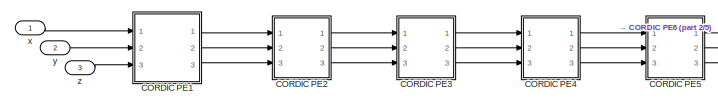
[diagram: CORDIC SINCOS/CORDIC Fine Angle PE - part 1/5, top left region]
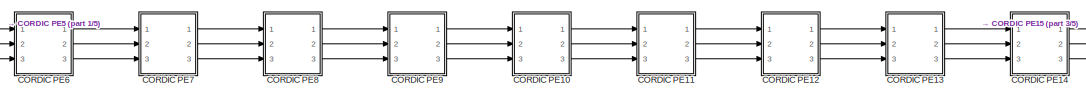
[diagram: CORDIC SINCOS/CORDIC Fine Angle PE - part 2/5, top left region]
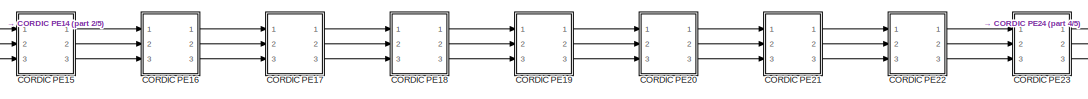
[diagram: CORDIC SINCOS/CORDIC Fine Angle PE - part 3/5, top center region]
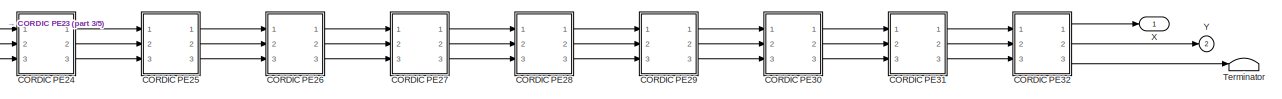
[diagram: CORDIC SINCOS/CORDIC Fine Angle PE - part 4/5, top right region]
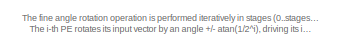
[diagram: CORDIC SINCOS/CORDIC Fine Angle PE - part 5/5, bottom left region]
BLOCK [SubSystem] CORDIC SINCOS/CORDIC Fine Angle PE
  Ports = [3, 2]
  RequestExecContextInheritance = off
BLOCK [SubSystem] CORDIC SINCOS/CORDIC Fine Angle PE/CORDIC PE1
  Ports = [3, 3]
  RequestExecContextInheritance = off
BLOCK [Reference] CORDIC SINCOS/CORDIC Fine Angle PE/CORDIC PE1/AddSub  REF=hdlBasic/AddSub
  Ports = [3, 1]
  SourceBlock = hdlBasic/AddSub
  SourceType = Adder/Subtracter Block
BLOCK [Reference] CORDIC SINCOS/CORDIC Fine Angle PE/CORDIC PE1/AddSub1  REF=hdlBasic/AddSub
  Ports = [3, 1]
  SourceBlock = hdlBasic/AddSub
  SourceType = Adder/Subtracter Block
BLOCK [Reference] CORDIC SINCOS/CORDIC Fine Angle PE/CORDIC PE1/AddSub2  REF=hdlBasic/AddSub
  Ports = [3, 1]
  SourceBlock = hdlBasic/AddSub
  SourceType = Adder/Subtracter Block
BLOCK [Reference] CORDIC SINCOS/CORDIC Fine Angle PE/CORDIC PE1/Constant  REF=hdlBasic/Constant
  Ports = [0, 1]
  SourceBlock = hdlBasic/Constant
  SourceType = Constant Block Block
BLOCK [Reference] CORDIC SINCOS/CORDIC Fine Angle PE/CORDIC PE1/Inverter  REF=hdlBasic/Inverter
  Ports = [1, 1]
  SourceBlock = hdlBasic/Inverter
  SourceType = Inverter Block
BLOCK [Reference] CORDIC SINCOS/CORDIC Fine Angle PE/CORDIC PE1/Shift  REF=hdlBasic/Shift
  Ports = [1, 1]
  SourceBlock = hdlBasic/Shift
  SourceType = Binary Shift Operator Block
BLOCK [Reference] CORDIC SINCOS/CORDIC Fine Angle PE/CORDIC PE1/Shift1  REF=hdlBasic/Shift
  Ports = [1, 1]
  SourceBlock = hdlBasic/Shift
  SourceType = Binary Shift Operator Block
BLOCK [Reference] CORDIC SINCOS/CORDIC Fine Angle PE/CORDIC PE1/Slice  REF=hdlBasic/Slice
  Ports = [1, 1]
  SourceBlock = hdlBasic/Slice
  SourceType = Bit Slice Extractor Block
BLOCK [Outport] CORDIC SINCOS/CORDIC Fine Angle PE/CORDIC PE1/X
BLOCK [Outport] CORDIC SINCOS/CORDIC Fine Angle PE/CORDIC PE1/Y
  Port = 2
BLOCK [Outport] CORDIC SINCOS/CORDIC Fine Angle PE/CORDIC PE1/Z
  Port = 3
BLOCK [Inport] CORDIC SINCOS/CORDIC Fine Angle PE/CORDIC PE1/x
  NameLocation = top
BLOCK [Inport] CORDIC SINCOS/CORDIC Fine Angle PE/CORDIC PE1/y
  Port = 2
BLOCK [Inport] CORDIC SINCOS/CORDIC Fine Angle PE/CORDIC PE1/z
  Port = 3
BLOCK [SubSystem] CORDIC SINCOS/CORDIC Fine Angle PE/CORDIC PE10
  Ports = [3, 3]
  RequestExecContextInheritance = off
BLOCK [Reference] CORDIC SINCOS/CORDIC Fine Angle PE/CORDIC PE10/AddSub  REF=hdlBasic/AddSub
  Ports = [3, 1]
  SourceBlock = hdlBasic/AddSub
  SourceType = Adder/Subtracter Block
BLOCK [Reference] CORDIC SINCOS/CORDIC Fine Angle PE/CORDIC PE10/AddSub1  REF=hdlBasic/AddSub
  Ports = [3, 1]
  SourceBlock = hdlBasic/AddSub
  SourceType = Adder/Subtracter Block
BLOCK [Reference] CORDIC SINCOS/CORDIC Fine Angle PE/CORDIC PE10/AddSub2  REF=hdlBasic/AddSub
  Ports = [3, 1]
  SourceBlock = hdlBasic/AddSub
  SourceType = Adder/Subtracter Block
BLOCK [Reference] CORDIC SINCOS/CORDIC Fine Angle PE/CORDIC PE10/Constant  REF=hdlBasic/Constant
  Ports = [0, 1]
  SourceBlock = hdlBasic/Constant
  SourceType = Constant Block Block
BLOCK [Reference] CORDIC SINCOS/CORDIC Fine Angle PE/CORDIC PE10/Inverter  REF=hdlBasic/Inverter
  Ports = [1, 1]
  SourceBlock = hdlBasic/Inverter
  SourceType = Inverter Block
BLOCK [Reference] CORDIC SINCOS/CORDIC Fine Angle PE/CORDIC PE10/Shift  REF=hdlBasic/Shift
  Ports = [1, 1]
  SourceBlock = hdlBasic/Shift
  SourceType = Binary Shift Operator Block
BLOCK [Reference] CORDIC SINCOS/CORDIC Fine Angle PE/CORDIC PE10/Shift1  REF=hdlBasic/Shift
  Ports = [1, 1]
  SourceBlock = hdlBasic/Shift
  SourceType = Binary Shift Operator Block
BLOCK [Reference] CORDIC SINCOS/CORDIC Fine Angle PE/CORDIC PE10/Slice  REF=hdlBasic/Slice
  Ports = [1, 1]
  SourceBlock = hdlBasic/Slice
  SourceType = Bit Slice Extractor Block
BLOCK [Outport] CORDIC SINCOS/CORDIC Fine Angle PE/CORDIC PE10/X
BLOCK [Outport] CORDIC SINCOS/CORDIC Fine Angle PE/CORDIC PE10/Y
  Port = 2
BLOCK [Outport] CORDIC SINCOS/CORDIC Fine Angle PE/CORDIC PE10/Z
  Port = 3
BLOCK [Inport] CORDIC SINCOS/CORDIC Fine Angle PE/CORDIC PE10/x
  NameLocation = top
BLOCK [Inport] CORDIC SINCOS/CORDIC Fine Angle PE/CORDIC PE10/y
  Port = 2
BLOCK [Inport] CORDIC SINCOS/CORDIC Fine Angle PE/CORDIC PE10/z
  Port = 3
BLOCK [SubSystem] CORDIC SINCOS/CORDIC Fine Angle PE/CORDIC PE11
  Ports = [3, 3]
  RequestExecContextInheritance = off
BLOCK [Reference] CORDIC SINCOS/CORDIC Fine Angle PE/CORDIC PE11/AddSub  REF=hdlBasic/AddSub
  Ports = [3, 1]
  SourceBlock = hdlBasic/AddSub
  SourceType = Adder/Subtracter Block
BLOCK [Reference] CORDIC SINCOS/CORDIC Fine Angle PE/CORDIC PE11/AddSub1  REF=hdlBasic/AddSub
  Ports = [3, 1]
  SourceBlock = hdlBasic/AddSub
  SourceType = Adder/Subtracter Block
BLOCK [Reference] CORDIC SINCOS/CORDIC Fine Angle PE/CORDIC PE11/AddSub2  REF=hdlBasic/AddSub
  Ports = [3, 1]
  SourceBlock = hdlBasic/AddSub
  SourceType = Adder/Subtracter Block
BLOCK [Reference] CORDIC SINCOS/CORDIC Fine Angle PE/CORDIC PE11/Constant  REF=hdlBasic/Constant
  Ports = [0, 1]
  SourceBlock = hdlBasic/Constant
  SourceType = Constant Block Block
BLOCK [Reference] CORDIC SINCOS/CORDIC Fine Angle PE/CORDIC PE11/Inverter  REF=hdlBasic/Inverter
  Ports = [1, 1]
  SourceBlock = hdlBasic/Inverter
  SourceType = Inverter Block
BLOCK [Reference] CORDIC SINCOS/CORDIC Fine Angle PE/CORDIC PE11/Shift  REF=hdlBasic/Shift
  Ports = [1, 1]
  SourceBlock = hdlBasic/Shift
  SourceType = Binary Shift Operator Block
BLOCK [Reference] CORDIC SINCOS/CORDIC Fine Angle PE/CORDIC PE11/Shift1  REF=hdlBasic/Shift
  Ports = [1, 1]
  SourceBlock = hdlBasic/Shift
  SourceType = Binary Shift Operator Block
BLOCK [Reference] CORDIC SINCOS/CORDIC Fine Angle PE/CORDIC PE11/Slice  REF=hdlBasic/Slice
  Ports = [1, 1]
  SourceBlock = hdlBasic/Slice
  SourceType = Bit Slice Extractor Block
BLOCK [Outport] CORDIC SINCOS/CORDIC Fine Angle PE/CORDIC PE11/X
BLOCK [Outport] CORDIC SINCOS/CORDIC Fine Angle PE/CORDIC PE11/Y
  Port = 2
BLOCK [Outport] CORDIC SINCOS/CORDIC Fine Angle PE/CORDIC PE11/Z
  Port = 3
BLOCK [Inport] CORDIC SINCOS/CORDIC Fine Angle PE/CORDIC PE11/x
  NameLocation = top
BLOCK [Inport] CORDIC SINCOS/CORDIC Fine Angle PE/CORDIC PE11/y
  Port = 2
BLOCK [Inport] CORDIC SINCOS/CORDIC Fine Angle PE/CORDIC PE11/z
  Port = 3
BLOCK [SubSystem] CORDIC SINCOS/CORDIC Fine Angle PE/CORDIC PE12
  Ports = [3, 3]
  RequestExecContextInheritance = off
BLOCK [Reference] CORDIC SINCOS/CORDIC Fine Angle PE/CORDIC PE12/AddSub  REF=hdlBasic/AddSub
  Ports = [3, 1]
  SourceBlock = hdlBasic/AddSub
  SourceType = Adder/Subtracter Block
BLOCK [Reference] CORDIC SINCOS/CORDIC Fine Angle PE/CORDIC PE12/AddSub1  REF=hdlBasic/AddSub
  Ports = [3, 1]
  SourceBlock = hdlBasic/AddSub
  SourceType = Adder/Subtracter Block
BLOCK [Reference] CORDIC SINCOS/CORDIC Fine Angle PE/CORDIC PE12/AddSub2  REF=hdlBasic/AddSub
  Ports = [3, 1]
  SourceBlock = hdlBasic/AddSub
  SourceType = Adder/Subtracter Block
BLOCK [Reference] CORDIC SINCOS/CORDIC Fine Angle PE/CORDIC PE12/Constant  REF=hdlBasic/Constant
  Ports = [0, 1]
  SourceBlock = hdlBasic/Constant
  SourceType = Constant Block Block
BLOCK [Reference] CORDIC SINCOS/CORDIC Fine Angle PE/CORDIC PE12/Inverter  REF=hdlBasic/Inverter
  Ports = [1, 1]
  SourceBlock = hdlBasic/Inverter
  SourceType = Inverter Block
BLOCK [Reference] CORDIC SINCOS/CORDIC Fine Angle PE/CORDIC PE12/Shift  REF=hdlBasic/Shift
  Ports = [1, 1]
  SourceBlock = hdlBasic/Shift
  SourceType = Binary Shift Operator Block
BLOCK [Reference] CORDIC SINCOS/CORDIC Fine Angle PE/CORDIC PE12/Shift1  REF=hdlBasic/Shift
  Ports = [1, 1]
  SourceBlock = hdlBasic/Shift
  SourceType = Binary Shift Operator Block
BLOCK [Reference] CORDIC SINCOS/CORDIC Fine Angle PE/CORDIC PE12/Slice  REF=hdlBasic/Slice
  Ports = [1, 1]
  SourceBlock = hdlBasic/Slice
  SourceType = Bit Slice Extractor Block
BLOCK [Outport] CORDIC SINCOS/CORDIC Fine Angle PE/CORDIC PE12/X
BLOCK [Outport] CORDIC SINCOS/CORDIC Fine Angle PE/CORDIC PE12/Y
  Port = 2
BLOCK [Outport] CORDIC SINCOS/CORDIC Fine Angle PE/CORDIC PE12/Z
  Port = 3
BLOCK [Inport] CORDIC SINCOS/CORDIC Fine Angle PE/CORDIC PE12/x
  NameLocation = top
BLOCK [Inport] CORDIC SINCOS/CORDIC Fine Angle PE/CORDIC PE12/y
  Port = 2
BLOCK [Inport] CORDIC SINCOS/CORDIC Fine Angle PE/CORDIC PE12/z
  Port = 3
BLOCK [SubSystem] CORDIC SINCOS/CORDIC Fine Angle PE/CORDIC PE13
  Ports = [3, 3]
  RequestExecContextInheritance = off
BLOCK [Reference] CORDIC SINCOS/CORDIC Fine Angle PE/CORDIC PE13/AddSub  REF=hdlBasic/AddSub
  Ports = [3, 1]
  SourceBlock = hdlBasic/AddSub
  SourceType = Adder/Subtracter Block
BLOCK [Reference] CORDIC SINCOS/CORDIC Fine Angle PE/CORDIC PE13/AddSub1  REF=hdlBasic/AddSub
  Ports = [3, 1]
  SourceBlock = hdlBasic/AddSub
  SourceType = Adder/Subtracter Block
BLOCK [Reference] CORDIC SINCOS/CORDIC Fine Angle PE/CORDIC PE13/AddSub2  REF=hdlBasic/AddSub
  Ports = [3, 1]
  SourceBlock = hdlBasic/AddSub
  SourceType = Adder/Subtracter Block
BLOCK [Reference] CORDIC SINCOS/CORDIC Fine Angle PE/CORDIC PE13/Constant  REF=hdlBasic/Constant
  Ports = [0, 1]
  SourceBlock = hdlBasic/Constant
  SourceType = Constant Block Block
BLOCK [Reference] CORDIC SINCOS/CORDIC Fine Angle PE/CORDIC PE13/Inverter  REF=hdlBasic/Inverter
  Ports = [1, 1]
  SourceBlock = hdlBasic/Inverter
  SourceType = Inverter Block
BLOCK [Reference] CORDIC SINCOS/CORDIC Fine Angle PE/CORDIC PE13/Shift  REF=hdlBasic/Shift
  Ports = [1, 1]
  SourceBlock = hdlBasic/Shift
  SourceType = Binary Shift Operator Block
BLOCK [Reference] CORDIC SINCOS/CORDIC Fine Angle PE/CORDIC PE13/Shift1  REF=hdlBasic/Shift
  Ports = [1, 1]
  SourceBlock = hdlBasic/Shift
  SourceType = Binary Shift Operator Block
BLOCK [Reference] CORDIC SINCOS/CORDIC Fine Angle PE/CORDIC PE13/Slice  REF=hdlBasic/Slice
  Ports = [1, 1]
  SourceBlock = hdlBasic/Slice
  SourceType = Bit Slice Extractor Block
BLOCK [Outport] CORDIC SINCOS/CORDIC Fine Angle PE/CORDIC PE13/X
BLOCK [Outport] CORDIC SINCOS/CORDIC Fine Angle PE/CORDIC PE13/Y
  Port = 2
BLOCK [Outport] CORDIC SINCOS/CORDIC Fine Angle PE/CORDIC PE13/Z
  Port = 3
BLOCK [Inport] CORDIC SINCOS/CORDIC Fine Angle PE/CORDIC PE13/x
  NameLocation = top
BLOCK [Inport] CORDIC SINCOS/CORDIC Fine Angle PE/CORDIC PE13/y
  Port = 2
BLOCK [Inport] CORDIC SINCOS/CORDIC Fine Angle PE/CORDIC PE13/z
  Port = 3
BLOCK [SubSystem] CORDIC SINCOS/CORDIC Fine Angle PE/CORDIC PE14
  Ports = [3, 3]
  RequestExecContextInheritance = off
BLOCK [Reference] CORDIC SINCOS/CORDIC Fine Angle PE/CORDIC PE14/AddSub  REF=hdlBasic/AddSub
  Ports = [3, 1]
  SourceBlock = hdlBasic/AddSub
  SourceType = Adder/Subtracter Block
BLOCK [Reference] CORDIC SINCOS/CORDIC Fine Angle PE/CORDIC PE14/AddSub1  REF=hdlBasic/AddSub
  Ports = [3, 1]
  SourceBlock = hdlBasic/AddSub
  SourceType = Adder/Subtracter Block
BLOCK [Reference] CORDIC SINCOS/CORDIC Fine Angle PE/CORDIC PE14/AddSub2  REF=hdlBasic/AddSub
  Ports = [3, 1]
  SourceBlock = hdlBasic/AddSub
  SourceType = Adder/Subtracter Block
BLOCK [Reference] CORDIC SINCOS/CORDIC Fine Angle PE/CORDIC PE14/Constant  REF=hdlBasic/Constant
  Ports = [0, 1]
  SourceBlock = hdlBasic/Constant
  SourceType = Constant Block Block
BLOCK [Reference] CORDIC SINCOS/CORDIC Fine Angle PE/CORDIC PE14/Inverter  REF=hdlBasic/Inverter
  Ports = [1, 1]
  SourceBlock = hdlBasic/Inverter
  SourceType = Inverter Block
BLOCK [Reference] CORDIC SINCOS/CORDIC Fine Angle PE/CORDIC PE14/Shift  REF=hdlBasic/Shift
  Ports = [1, 1]
  SourceBlock = hdlBasic/Shift
  SourceType = Binary Shift Operator Block
BLOCK [Reference] CORDIC SINCOS/CORDIC Fine Angle PE/CORDIC PE14/Shift1  REF=hdlBasic/Shift
  Ports = [1, 1]
  SourceBlock = hdlBasic/Shift
  SourceType = Binary Shift Operator Block
BLOCK [Reference] CORDIC SINCOS/CORDIC Fine Angle PE/CORDIC PE14/Slice  REF=hdlBasic/Slice
  Ports = [1, 1]
  SourceBlock = hdlBasic/Slice
  SourceType = Bit Slice Extractor Block
BLOCK [Outport] CORDIC SINCOS/CORDIC Fine Angle PE/CORDIC PE14/X
BLOCK [Outport] CORDIC SINCOS/CORDIC Fine Angle PE/CORDIC PE14/Y
  Port = 2
BLOCK [Outport] CORDIC SINCOS/CORDIC Fine Angle PE/CORDIC PE14/Z
  Port = 3
BLOCK [Inport] CORDIC SINCOS/CORDIC Fine Angle PE/CORDIC PE14/x
  NameLocation = top
BLOCK [Inport] CORDIC SINCOS/CORDIC Fine Angle PE/CORDIC PE14/y
  Port = 2
BLOCK [Inport] CORDIC SINCOS/CORDIC Fine Angle PE/CORDIC PE14/z
  Port = 3
BLOCK [SubSystem] CORDIC SINCOS/CORDIC Fine Angle PE/CORDIC PE15
  Ports = [3, 3]
  RequestExecContextInheritance = off
BLOCK [Reference] CORDIC SINCOS/CORDIC Fine Angle PE/CORDIC PE15/AddSub  REF=hdlBasic/AddSub
  Ports = [3, 1]
  SourceBlock = hdlBasic/AddSub
  SourceType = Adder/Subtracter Block
BLOCK [Reference] CORDIC SINCOS/CORDIC Fine Angle PE/CORDIC PE15/AddSub1  REF=hdlBasic/AddSub
  Ports = [3, 1]
  SourceBlock = hdlBasic/AddSub
  SourceType = Adder/Subtracter Block
BLOCK [Reference] CORDIC SINCOS/CORDIC Fine Angle PE/CORDIC PE15/AddSub2  REF=hdlBasic/AddSub
  Ports = [3, 1]
  SourceBlock = hdlBasic/AddSub
  SourceType = Adder/Subtracter Block
BLOCK [Reference] CORDIC SINCOS/CORDIC Fine Angle PE/CORDIC PE15/Constant  REF=hdlBasic/Constant
  Ports = [0, 1]
  SourceBlock = hdlBasic/Constant
  SourceType = Constant Block Block
BLOCK [Reference] CORDIC SINCOS/CORDIC Fine Angle PE/CORDIC PE15/Inverter  REF=hdlBasic/Inverter
  Ports = [1, 1]
  SourceBlock = hdlBasic/Inverter
  SourceType = Inverter Block
BLOCK [Reference] CORDIC SINCOS/CORDIC Fine Angle PE/CORDIC PE15/Shift  REF=hdlBasic/Shift
  Ports = [1, 1]
  SourceBlock = hdlBasic/Shift
  SourceType = Binary Shift Operator Block
BLOCK [Reference] CORDIC SINCOS/CORDIC Fine Angle PE/CORDIC PE15/Shift1  REF=hdlBasic/Shift
  Ports = [1, 1]
  SourceBlock = hdlBasic/Shift
  SourceType = Binary Shift Operator Block
BLOCK [Reference] CORDIC SINCOS/CORDIC Fine Angle PE/CORDIC PE15/Slice  REF=hdlBasic/Slice
  Ports = [1, 1]
  SourceBlock = hdlBasic/Slice
  SourceType = Bit Slice Extractor Block
BLOCK [Outport] CORDIC SINCOS/CORDIC Fine Angle PE/CORDIC PE15/X
BLOCK [Outport] CORDIC SINCOS/CORDIC Fine Angle PE/CORDIC PE15/Y
  Port = 2
BLOCK [Outport] CORDIC SINCOS/CORDIC Fine Angle PE/CORDIC PE15/Z
  Port = 3
BLOCK [Inport] CORDIC SINCOS/CORDIC Fine Angle PE/CORDIC PE15/x
  NameLocation = top
BLOCK [Inport] CORDIC SINCOS/CORDIC Fine Angle PE/CORDIC PE15/y
  Port = 2
BLOCK [Inport] CORDIC SINCOS/CORDIC Fine Angle PE/CORDIC PE15/z
  Port = 3
BLOCK [SubSystem] CORDIC SINCOS/CORDIC Fine Angle PE/CORDIC PE16
  Ports = [3, 3]
  RequestExecContextInheritance = off
BLOCK [Reference] CORDIC SINCOS/CORDIC Fine Angle PE/CORDIC PE16/AddSub  REF=hdlBasic/AddSub
  Ports = [3, 1]
  SourceBlock = hdlBasic/AddSub
  SourceType = Adder/Subtracter Block
BLOCK [Reference] CORDIC SINCOS/CORDIC Fine Angle PE/CORDIC PE16/AddSub1  REF=hdlBasic/AddSub
  Ports = [3, 1]
  SourceBlock = hdlBasic/AddSub
  SourceType = Adder/Subtracter Block
BLOCK [Reference] CORDIC SINCOS/CORDIC Fine Angle PE/CORDIC PE16/AddSub2  REF=hdlBasic/AddSub
  Ports = [3, 1]
  SourceBlock = hdlBasic/AddSub
  SourceType = Adder/Subtracter Block
BLOCK [Reference] CORDIC SINCOS/CORDIC Fine Angle PE/CORDIC PE16/Constant  REF=hdlBasic/Constant
  Ports = [0, 1]
  SourceBlock = hdlBasic/Constant
  SourceType = Constant Block Block
BLOCK [Reference] CORDIC SINCOS/CORDIC Fine Angle PE/CORDIC PE16/Inverter  REF=hdlBasic/Inverter
  Ports = [1, 1]
  SourceBlock = hdlBasic/Inverter
  SourceType = Inverter Block
BLOCK [Reference] CORDIC SINCOS/CORDIC Fine Angle PE/CORDIC PE16/Shift  REF=hdlBasic/Shift
  Ports = [1, 1]
  SourceBlock = hdlBasic/Shift
  SourceType = Binary Shift Operator Block
BLOCK [Reference] CORDIC SINCOS/CORDIC Fine Angle PE/CORDIC PE16/Shift1  REF=hdlBasic/Shift
  Ports = [1, 1]
  SourceBlock = hdlBasic/Shift
  SourceType = Binary Shift Operator Block
BLOCK [Reference] CORDIC SINCOS/CORDIC Fine Angle PE/CORDIC PE16/Slice  REF=hdlBasic/Slice
  Ports = [1, 1]
  SourceBlock = hdlBasic/Slice
  SourceType = Bit Slice Extractor Block
BLOCK [Outport] CORDIC SINCOS/CORDIC Fine Angle PE/CORDIC PE16/X
BLOCK [Outport] CORDIC SINCOS/CORDIC Fine Angle PE/CORDIC PE16/Y
  Port = 2
BLOCK [Outport] CORDIC SINCOS/CORDIC Fine Angle PE/CORDIC PE16/Z
  Port = 3
BLOCK [Inport] CORDIC SINCOS/CORDIC Fine Angle PE/CORDIC PE16/x
  NameLocation = top
BLOCK [Inport] CORDIC SINCOS/CORDIC Fine Angle PE/CORDIC PE16/y
  Port = 2
BLOCK [Inport] CORDIC SINCOS/CORDIC Fine Angle PE/CORDIC PE16/z
  Port = 3
BLOCK [SubSystem] CORDIC SINCOS/CORDIC Fine Angle PE/CORDIC PE17
  Ports = [3, 3]
  RequestExecContextInheritance = off
BLOCK [Reference] CORDIC SINCOS/CORDIC Fine Angle PE/CORDIC PE17/AddSub  REF=hdlBasic/AddSub
  Ports = [3, 1]
  SourceBlock = hdlBasic/AddSub
  SourceType = Adder/Subtracter Block
BLOCK [Reference] CORDIC SINCOS/CORDIC Fine Angle PE/CORDIC PE17/AddSub1  REF=hdlBasic/AddSub
  Ports = [3, 1]
  SourceBlock = hdlBasic/AddSub
  SourceType = Adder/Subtracter Block
BLOCK [Reference] CORDIC SINCOS/CORDIC Fine Angle PE/CORDIC PE17/AddSub2  REF=hdlBasic/AddSub
  Ports = [3, 1]
  SourceBlock = hdlBasic/AddSub
  SourceType = Adder/Subtracter Block
BLOCK [Reference] CORDIC SINCOS/CORDIC Fine Angle PE/CORDIC PE17/Constant  REF=hdlBasic/Constant
  Ports = [0, 1]
  SourceBlock = hdlBasic/Constant
  SourceType = Constant Block Block
BLOCK [Reference] CORDIC SINCOS/CORDIC Fine Angle PE/CORDIC PE17/Inverter  REF=hdlBasic/Inverter
  Ports = [1, 1]
  SourceBlock = hdlBasic/Inverter
  SourceType = Inverter Block
BLOCK [Reference] CORDIC SINCOS/CORDIC Fine Angle PE/CORDIC PE17/Shift  REF=hdlBasic/Shift
  Ports = [1, 1]
  SourceBlock = hdlBasic/Shift
  SourceType = Binary Shift Operator Block
BLOCK [Reference] CORDIC SINCOS/CORDIC Fine Angle PE/CORDIC PE17/Shift1  REF=hdlBasic/Shift
  Ports = [1, 1]
  SourceBlock = hdlBasic/Shift
  SourceType = Binary Shift Operator Block
BLOCK [Reference] CORDIC SINCOS/CORDIC Fine Angle PE/CORDIC PE17/Slice  REF=hdlBasic/Slice
  Ports = [1, 1]
  SourceBlock = hdlBasic/Slice
  SourceType = Bit Slice Extractor Block
BLOCK [Outport] CORDIC SINCOS/CORDIC Fine Angle PE/CORDIC PE17/X
BLOCK [Outport] CORDIC SINCOS/CORDIC Fine Angle PE/CORDIC PE17/Y
  Port = 2
BLOCK [Outport] CORDIC SINCOS/CORDIC Fine Angle PE/CORDIC PE17/Z
  Port = 3
BLOCK [Inport] CORDIC SINCOS/CORDIC Fine Angle PE/CORDIC PE17/x
  NameLocation = top
BLOCK [Inport] CORDIC SINCOS/CORDIC Fine Angle PE/CORDIC PE17/y
  Port = 2
BLOCK [Inport] CORDIC SINCOS/CORDIC Fine Angle PE/CORDIC PE17/z
  Port = 3
BLOCK [SubSystem] CORDIC SINCOS/CORDIC Fine Angle PE/CORDIC PE18
  Ports = [3, 3]
  RequestExecContextInheritance = off
BLOCK [Reference] CORDIC SINCOS/CORDIC Fine Angle PE/CORDIC PE18/AddSub  REF=hdlBasic/AddSub
  Ports = [3, 1]
  SourceBlock = hdlBasic/AddSub
  SourceType = Adder/Subtracter Block
BLOCK [Reference] CORDIC SINCOS/CORDIC Fine Angle PE/CORDIC PE18/AddSub1  REF=hdlBasic/AddSub
  Ports = [3, 1]
  SourceBlock = hdlBasic/AddSub
  SourceType = Adder/Subtracter Block
BLOCK [Reference] CORDIC SINCOS/CORDIC Fine Angle PE/CORDIC PE18/AddSub2  REF=hdlBasic/AddSub
  Ports = [3, 1]
  SourceBlock = hdlBasic/AddSub
  SourceType = Adder/Subtracter Block
BLOCK [Reference] CORDIC SINCOS/CORDIC Fine Angle PE/CORDIC PE18/Constant  REF=hdlBasic/Constant
  Ports = [0, 1]
  SourceBlock = hdlBasic/Constant
  SourceType = Constant Block Block
BLOCK [Reference] CORDIC SINCOS/CORDIC Fine Angle PE/CORDIC PE18/Inverter  REF=hdlBasic/Inverter
  Ports = [1, 1]
  SourceBlock = hdlBasic/Inverter
  SourceType = Inverter Block
BLOCK [Reference] CORDIC SINCOS/CORDIC Fine Angle PE/CORDIC PE18/Shift  REF=hdlBasic/Shift
  Ports = [1, 1]
  SourceBlock = hdlBasic/Shift
  SourceType = Binary Shift Operator Block
BLOCK [Reference] CORDIC SINCOS/CORDIC Fine Angle PE/CORDIC PE18/Shift1  REF=hdlBasic/Shift
  Ports = [1, 1]
  SourceBlock = hdlBasic/Shift
  SourceType = Binary Shift Operator Block
BLOCK [Reference] CORDIC SINCOS/CORDIC Fine Angle PE/CORDIC PE18/Slice  REF=hdlBasic/Slice
  Ports = [1, 1]
  SourceBlock = hdlBasic/Slice
  SourceType = Bit Slice Extractor Block
BLOCK [Outport] CORDIC SINCOS/CORDIC Fine Angle PE/CORDIC PE18/X
BLOCK [Outport] CORDIC SINCOS/CORDIC Fine Angle PE/CORDIC PE18/Y
  Port = 2
BLOCK [Outport] CORDIC SINCOS/CORDIC Fine Angle PE/CORDIC PE18/Z
  Port = 3
BLOCK [Inport] CORDIC SINCOS/CORDIC Fine Angle PE/CORDIC PE18/x
  NameLocation = top
BLOCK [Inport] CORDIC SINCOS/CORDIC Fine Angle PE/CORDIC PE18/y
  Port = 2
BLOCK [Inport] CORDIC SINCOS/CORDIC Fine Angle PE/CORDIC PE18/z
  Port = 3
BLOCK [SubSystem] CORDIC SINCOS/CORDIC Fine Angle PE/CORDIC PE19
  Ports = [3, 3]
  RequestExecContextInheritance = off
BLOCK [Reference] CORDIC SINCOS/CORDIC Fine Angle PE/CORDIC PE19/AddSub  REF=hdlBasic/AddSub
  Ports = [3, 1]
  SourceBlock = hdlBasic/AddSub
  SourceType = Adder/Subtracter Block
BLOCK [Reference] CORDIC SINCOS/CORDIC Fine Angle PE/CORDIC PE19/AddSub1  REF=hdlBasic/AddSub
  Ports = [3, 1]
  SourceBlock = hdlBasic/AddSub
  SourceType = Adder/Subtracter Block
BLOCK [Reference] CORDIC SINCOS/CORDIC Fine Angle PE/CORDIC PE19/AddSub2  REF=hdlBasic/AddSub
  Ports = [3, 1]
  SourceBlock = hdlBasic/AddSub
  SourceType = Adder/Subtracter Block
BLOCK [Reference] CORDIC SINCOS/CORDIC Fine Angle PE/CORDIC PE19/Constant  REF=hdlBasic/Constant
  Ports = [0, 1]
  SourceBlock = hdlBasic/Constant
  SourceType = Constant Block Block
BLOCK [Reference] CORDIC SINCOS/CORDIC Fine Angle PE/CORDIC PE19/Inverter  REF=hdlBasic/Inverter
  Ports = [1, 1]
  SourceBlock = hdlBasic/Inverter
  SourceType = Inverter Block
BLOCK [Reference] CORDIC SINCOS/CORDIC Fine Angle PE/CORDIC PE19/Shift  REF=hdlBasic/Shift
  Ports = [1, 1]
  SourceBlock = hdlBasic/Shift
  SourceType = Binary Shift Operator Block
BLOCK [Reference] CORDIC SINCOS/CORDIC Fine Angle PE/CORDIC PE19/Shift1  REF=hdlBasic/Shift
  Ports = [1, 1]
  SourceBlock = hdlBasic/Shift
  SourceType = Binary Shift Operator Block
BLOCK [Reference] CORDIC SINCOS/CORDIC Fine Angle PE/CORDIC PE19/Slice  REF=hdlBasic/Slice
  Ports = [1, 1]
  SourceBlock = hdlBasic/Slice
  SourceType = Bit Slice Extractor Block
BLOCK [Outport] CORDIC SINCOS/CORDIC Fine Angle PE/CORDIC PE19/X
BLOCK [Outport] CORDIC SINCOS/CORDIC Fine Angle PE/CORDIC PE19/Y
  Port = 2
BLOCK [Outport] CORDIC SINCOS/CORDIC Fine Angle PE/CORDIC PE19/Z
  Port = 3
BLOCK [Inport] CORDIC SINCOS/CORDIC Fine Angle PE/CORDIC PE19/x
  NameLocation = top
BLOCK [Inport] CORDIC SINCOS/CORDIC Fine Angle PE/CORDIC PE19/y
  Port = 2
BLOCK [Inport] CORDIC SINCOS/CORDIC Fine Angle PE/CORDIC PE19/z
  Port = 3
BLOCK [SubSystem] CORDIC SINCOS/CORDIC Fine Angle PE/CORDIC PE2
  Ports = [3, 3]
  RequestExecContextInheritance = off
BLOCK [Reference] CORDIC SINCOS/CORDIC Fine Angle PE/CORDIC PE2/AddSub  REF=hdlBasic/AddSub
  Ports = [3, 1]
  SourceBlock = hdlBasic/AddSub
  SourceType = Adder/Subtracter Block
BLOCK [Reference] CORDIC SINCOS/CORDIC Fine Angle PE/CORDIC PE2/AddSub1  REF=hdlBasic/AddSub
  Ports = [3, 1]
  SourceBlock = hdlBasic/AddSub
  SourceType = Adder/Subtracter Block
BLOCK [Reference] CORDIC SINCOS/CORDIC Fine Angle PE/CORDIC PE2/AddSub2  REF=hdlBasic/AddSub
  Ports = [3, 1]
  SourceBlock = hdlBasic/AddSub
  SourceType = Adder/Subtracter Block
BLOCK [Reference] CORDIC SINCOS/CORDIC Fine Angle PE/CORDIC PE2/Constant  REF=hdlBasic/Constant
  Ports = [0, 1]
  SourceBlock = hdlBasic/Constant
  SourceType = Constant Block Block
BLOCK [Reference] CORDIC SINCOS/CORDIC Fine Angle PE/CORDIC PE2/Inverter  REF=hdlBasic/Inverter
  Ports = [1, 1]
  SourceBlock = hdlBasic/Inverter
  SourceType = Inverter Block
BLOCK [Reference] CORDIC SINCOS/CORDIC Fine Angle PE/CORDIC PE2/Shift  REF=hdlBasic/Shift
  Ports = [1, 1]
  SourceBlock = hdlBasic/Shift
  SourceType = Binary Shift Operator Block
BLOCK [Reference] CORDIC SINCOS/CORDIC Fine Angle PE/CORDIC PE2/Shift1  REF=hdlBasic/Shift
  Ports = [1, 1]
  SourceBlock = hdlBasic/Shift
  SourceType = Binary Shift Operator Block
BLOCK [Reference] CORDIC SINCOS/CORDIC Fine Angle PE/CORDIC PE2/Slice  REF=hdlBasic/Slice
  Ports = [1, 1]
  SourceBlock = hdlBasic/Slice
  SourceType = Bit Slice Extractor Block
BLOCK [Outport] CORDIC SINCOS/CORDIC Fine Angle PE/CORDIC PE2/X
BLOCK [Outport] CORDIC SINCOS/CORDIC Fine Angle PE/CORDIC PE2/Y
  Port = 2
BLOCK [Outport] CORDIC SINCOS/CORDIC Fine Angle PE/CORDIC PE2/Z
  Port = 3
BLOCK [Inport] CORDIC SINCOS/CORDIC Fine Angle PE/CORDIC PE2/x
  NameLocation = top
BLOCK [Inport] CORDIC SINCOS/CORDIC Fine Angle PE/CORDIC PE2/y
  Port = 2
BLOCK [Inport] CORDIC SINCOS/CORDIC Fine Angle PE/CORDIC PE2/z
  Port = 3
BLOCK [SubSystem] CORDIC SINCOS/CORDIC Fine Angle PE/CORDIC PE20
  Ports = [3, 3]
  RequestExecContextInheritance = off
BLOCK [Reference] CORDIC SINCOS/CORDIC Fine Angle PE/CORDIC PE20/AddSub  REF=hdlBasic/AddSub
  Ports = [3, 1]
  SourceBlock = hdlBasic/AddSub
  SourceType = Adder/Subtracter Block
BLOCK [Reference] CORDIC SINCOS/CORDIC Fine Angle PE/CORDIC PE20/AddSub1  REF=hdlBasic/AddSub
  Ports = [3, 1]
  SourceBlock = hdlBasic/AddSub
  SourceType = Adder/Subtracter Block
BLOCK [Reference] CORDIC SINCOS/CORDIC Fine Angle PE/CORDIC PE20/AddSub2  REF=hdlBasic/AddSub
  Ports = [3, 1]
  SourceBlock = hdlBasic/AddSub
  SourceType = Adder/Subtracter Block
BLOCK [Reference] CORDIC SINCOS/CORDIC Fine Angle PE/CORDIC PE20/Constant  REF=hdlBasic/Constant
  Ports = [0, 1]
  SourceBlock = hdlBasic/Constant
  SourceType = Constant Block Block
BLOCK [Reference] CORDIC SINCOS/CORDIC Fine Angle PE/CORDIC PE20/Inverter  REF=hdlBasic/Inverter
  Ports = [1, 1]
  SourceBlock = hdlBasic/Inverter
  SourceType = Inverter Block
BLOCK [Reference] CORDIC SINCOS/CORDIC Fine Angle PE/CORDIC PE20/Shift  REF=hdlBasic/Shift
  Ports = [1, 1]
  SourceBlock = hdlBasic/Shift
  SourceType = Binary Shift Operator Block
BLOCK [Reference] CORDIC SINCOS/CORDIC Fine Angle PE/CORDIC PE20/Shift1  REF=hdlBasic/Shift
  Ports = [1, 1]
  SourceBlock = hdlBasic/Shift
  SourceType = Binary Shift Operator Block
BLOCK [Reference] CORDIC SINCOS/CORDIC Fine Angle PE/CORDIC PE20/Slice  REF=hdlBasic/Slice
  Ports = [1, 1]
  SourceBlock = hdlBasic/Slice
  SourceType = Bit Slice Extractor Block
BLOCK [Outport] CORDIC SINCOS/CORDIC Fine Angle PE/CORDIC PE20/X
BLOCK [Outport] CORDIC SINCOS/CORDIC Fine Angle PE/CORDIC PE20/Y
  Port = 2
BLOCK [Outport] CORDIC SINCOS/CORDIC Fine Angle PE/CORDIC PE20/Z
  Port = 3
BLOCK [Inport] CORDIC SINCOS/CORDIC Fine Angle PE/CORDIC PE20/x
  NameLocation = top
BLOCK [Inport] CORDIC SINCOS/CORDIC Fine Angle PE/CORDIC PE20/y
  Port = 2
BLOCK [Inport] CORDIC SINCOS/CORDIC Fine Angle PE/CORDIC PE20/z
  Port = 3
BLOCK [SubSystem] CORDIC SINCOS/CORDIC Fine Angle PE/CORDIC PE21
  Ports = [3, 3]
  RequestExecContextInheritance = off
BLOCK [Reference] CORDIC SINCOS/CORDIC Fine Angle PE/CORDIC PE21/AddSub  REF=hdlBasic/AddSub
  Ports = [3, 1]
  SourceBlock = hdlBasic/AddSub
  SourceType = Adder/Subtracter Block
BLOCK [Reference] CORDIC SINCOS/CORDIC Fine Angle PE/CORDIC PE21/AddSub1  REF=hdlBasic/AddSub
  Ports = [3, 1]
  SourceBlock = hdlBasic/AddSub
  SourceType = Adder/Subtracter Block
BLOCK [Reference] CORDIC SINCOS/CORDIC Fine Angle PE/CORDIC PE21/AddSub2  REF=hdlBasic/AddSub
  Ports = [3, 1]
  SourceBlock = hdlBasic/AddSub
  SourceType = Adder/Subtracter Block
BLOCK [Reference] CORDIC SINCOS/CORDIC Fine Angle PE/CORDIC PE21/Constant  REF=hdlBasic/Constant
  Ports = [0, 1]
  SourceBlock = hdlBasic/Constant
  SourceType = Constant Block Block
BLOCK [Reference] CORDIC SINCOS/CORDIC Fine Angle PE/CORDIC PE21/Inverter  REF=hdlBasic/Inverter
  Ports = [1, 1]
  SourceBlock = hdlBasic/Inverter
  SourceType = Inverter Block
BLOCK [Reference] CORDIC SINCOS/CORDIC Fine Angle PE/CORDIC PE21/Shift  REF=hdlBasic/Shift
  Ports = [1, 1]
  SourceBlock = hdlBasic/Shift
  SourceType = Binary Shift Operator Block
BLOCK [Reference] CORDIC SINCOS/CORDIC Fine Angle PE/CORDIC PE21/Shift1  REF=hdlBasic/Shift
  Ports = [1, 1]
  SourceBlock = hdlBasic/Shift
  SourceType = Binary Shift Operator Block
BLOCK [Reference] CORDIC SINCOS/CORDIC Fine Angle PE/CORDIC PE21/Slice  REF=hdlBasic/Slice
  Ports = [1, 1]
  SourceBlock = hdlBasic/Slice
  SourceType = Bit Slice Extractor Block
BLOCK [Outport] CORDIC SINCOS/CORDIC Fine Angle PE/CORDIC PE21/X
BLOCK [Outport] CORDIC SINCOS/CORDIC Fine Angle PE/CORDIC PE21/Y
  Port = 2
BLOCK [Outport] CORDIC SINCOS/CORDIC Fine Angle PE/CORDIC PE21/Z
  Port = 3
BLOCK [Inport] CORDIC SINCOS/CORDIC Fine Angle PE/CORDIC PE21/x
  NameLocation = top
BLOCK [Inport] CORDIC SINCOS/CORDIC Fine Angle PE/CORDIC PE21/y
  Port = 2
BLOCK [Inport] CORDIC SINCOS/CORDIC Fine Angle PE/CORDIC PE21/z
  Port = 3
BLOCK [SubSystem] CORDIC SINCOS/CORDIC Fine Angle PE/CORDIC PE22
  Ports = [3, 3]
  RequestExecContextInheritance = off
BLOCK [Reference] CORDIC SINCOS/CORDIC Fine Angle PE/CORDIC PE22/AddSub  REF=hdlBasic/AddSub
  Ports = [3, 1]
  SourceBlock = hdlBasic/AddSub
  SourceType = Adder/Subtracter Block
BLOCK [Reference] CORDIC SINCOS/CORDIC Fine Angle PE/CORDIC PE22/AddSub1  REF=hdlBasic/AddSub
  Ports = [3, 1]
  SourceBlock = hdlBasic/AddSub
  SourceType = Adder/Subtracter Block
BLOCK [Reference] CORDIC SINCOS/CORDIC Fine Angle PE/CORDIC PE22/AddSub2  REF=hdlBasic/AddSub
  Ports = [3, 1]
  SourceBlock = hdlBasic/AddSub
  SourceType = Adder/Subtracter Block
BLOCK [Reference] CORDIC SINCOS/CORDIC Fine Angle PE/CORDIC PE22/Constant  REF=hdlBasic/Constant
  Ports = [0, 1]
  SourceBlock = hdlBasic/Constant
  SourceType = Constant Block Block
BLOCK [Reference] CORDIC SINCOS/CORDIC Fine Angle PE/CORDIC PE22/Inverter  REF=hdlBasic/Inverter
  Ports = [1, 1]
  SourceBlock = hdlBasic/Inverter
  SourceType = Inverter Block
BLOCK [Reference] CORDIC SINCOS/CORDIC Fine Angle PE/CORDIC PE22/Shift  REF=hdlBasic/Shift
  Ports = [1, 1]
  SourceBlock = hdlBasic/Shift
  SourceType = Binary Shift Operator Block
BLOCK [Reference] CORDIC SINCOS/CORDIC Fine Angle PE/CORDIC PE22/Shift1  REF=hdlBasic/Shift
  Ports = [1, 1]
  SourceBlock = hdlBasic/Shift
  SourceType = Binary Shift Operator Block
BLOCK [Reference] CORDIC SINCOS/CORDIC Fine Angle PE/CORDIC PE22/Slice  REF=hdlBasic/Slice
  Ports = [1, 1]
  SourceBlock = hdlBasic/Slice
  SourceType = Bit Slice Extractor Block
BLOCK [Outport] CORDIC SINCOS/CORDIC Fine Angle PE/CORDIC PE22/X
BLOCK [Outport] CORDIC SINCOS/CORDIC Fine Angle PE/CORDIC PE22/Y
  Port = 2
BLOCK [Outport] CORDIC SINCOS/CORDIC Fine Angle PE/CORDIC PE22/Z
  Port = 3
BLOCK [Inport] CORDIC SINCOS/CORDIC Fine Angle PE/CORDIC PE22/x
  NameLocation = top
BLOCK [Inport] CORDIC SINCOS/CORDIC Fine Angle PE/CORDIC PE22/y
  Port = 2
BLOCK [Inport] CORDIC SINCOS/CORDIC Fine Angle PE/CORDIC PE22/z
  Port = 3
BLOCK [SubSystem] CORDIC SINCOS/CORDIC Fine Angle PE/CORDIC PE23
  Ports = [3, 3]
  RequestExecContextInheritance = off
BLOCK [Reference] CORDIC SINCOS/CORDIC Fine Angle PE/CORDIC PE23/AddSub  REF=hdlBasic/AddSub
  Ports = [3, 1]
  SourceBlock = hdlBasic/AddSub
  SourceType = Adder/Subtracter Block
BLOCK [Reference] CORDIC SINCOS/CORDIC Fine Angle PE/CORDIC PE23/AddSub1  REF=hdlBasic/AddSub
  Ports = [3, 1]
  SourceBlock = hdlBasic/AddSub
  SourceType = Adder/Subtracter Block
BLOCK [Reference] CORDIC SINCOS/CORDIC Fine Angle PE/CORDIC PE23/AddSub2  REF=hdlBasic/AddSub
  Ports = [3, 1]
  SourceBlock = hdlBasic/AddSub
  SourceType = Adder/Subtracter Block
BLOCK [Reference] CORDIC SINCOS/CORDIC Fine Angle PE/CORDIC PE23/Constant  REF=hdlBasic/Constant
  Ports = [0, 1]
  SourceBlock = hdlBasic/Constant
  SourceType = Constant Block Block
BLOCK [Reference] CORDIC SINCOS/CORDIC Fine Angle PE/CORDIC PE23/Inverter  REF=hdlBasic/Inverter
  Ports = [1, 1]
  SourceBlock = hdlBasic/Inverter
  SourceType = Inverter Block
BLOCK [Reference] CORDIC SINCOS/CORDIC Fine Angle PE/CORDIC PE23/Shift  REF=hdlBasic/Shift
  Ports = [1, 1]
  SourceBlock = hdlBasic/Shift
  SourceType = Binary Shift Operator Block
BLOCK [Reference] CORDIC SINCOS/CORDIC Fine Angle PE/CORDIC PE23/Shift1  REF=hdlBasic/Shift
  Ports = [1, 1]
  SourceBlock = hdlBasic/Shift
  SourceType = Binary Shift Operator Block
BLOCK [Reference] CORDIC SINCOS/CORDIC Fine Angle PE/CORDIC PE23/Slice  REF=hdlBasic/Slice
  Ports = [1, 1]
  SourceBlock = hdlBasic/Slice
  SourceType = Bit Slice Extractor Block
BLOCK [Outport] CORDIC SINCOS/CORDIC Fine Angle PE/CORDIC PE23/X
BLOCK [Outport] CORDIC SINCOS/CORDIC Fine Angle PE/CORDIC PE23/Y
  Port = 2
BLOCK [Outport] CORDIC SINCOS/CORDIC Fine Angle PE/CORDIC PE23/Z
  Port = 3
BLOCK [Inport] CORDIC SINCOS/CORDIC Fine Angle PE/CORDIC PE23/x
  NameLocation = top
BLOCK [Inport] CORDIC SINCOS/CORDIC Fine Angle PE/CORDIC PE23/y
  Port = 2
BLOCK [Inport] CORDIC SINCOS/CORDIC Fine Angle PE/CORDIC PE23/z
  Port = 3
BLOCK [SubSystem] CORDIC SINCOS/CORDIC Fine Angle PE/CORDIC PE24
  Ports = [3, 3]
  RequestExecContextInheritance = off
BLOCK [Reference] CORDIC SINCOS/CORDIC Fine Angle PE/CORDIC PE24/AddSub  REF=hdlBasic/AddSub
  Ports = [3, 1]
  SourceBlock = hdlBasic/AddSub
  SourceType = Adder/Subtracter Block
BLOCK [Reference] CORDIC SINCOS/CORDIC Fine Angle PE/CORDIC PE24/AddSub1  REF=hdlBasic/AddSub
  Ports = [3, 1]
  SourceBlock = hdlBasic/AddSub
  SourceType = Adder/Subtracter Block
BLOCK [Reference] CORDIC SINCOS/CORDIC Fine Angle PE/CORDIC PE24/AddSub2  REF=hdlBasic/AddSub
  Ports = [3, 1]
  SourceBlock = hdlBasic/AddSub
  SourceType = Adder/Subtracter Block
BLOCK [Reference] CORDIC SINCOS/CORDIC Fine Angle PE/CORDIC PE24/Constant  REF=hdlBasic/Constant
  Ports = [0, 1]
  SourceBlock = hdlBasic/Constant
  SourceType = Constant Block Block
BLOCK [Reference] CORDIC SINCOS/CORDIC Fine Angle PE/CORDIC PE24/Inverter  REF=hdlBasic/Inverter
  Ports = [1, 1]
  SourceBlock = hdlBasic/Inverter
  SourceType = Inverter Block
BLOCK [Reference] CORDIC SINCOS/CORDIC Fine Angle PE/CORDIC PE24/Shift  REF=hdlBasic/Shift
  Ports = [1, 1]
  SourceBlock = hdlBasic/Shift
  SourceType = Binary Shift Operator Block
BLOCK [Reference] CORDIC SINCOS/CORDIC Fine Angle PE/CORDIC PE24/Shift1  REF=hdlBasic/Shift
  Ports = [1, 1]
  SourceBlock = hdlBasic/Shift
  SourceType = Binary Shift Operator Block
BLOCK [Reference] CORDIC SINCOS/CORDIC Fine Angle PE/CORDIC PE24/Slice  REF=hdlBasic/Slice
  Ports = [1, 1]
  SourceBlock = hdlBasic/Slice
  SourceType = Bit Slice Extractor Block
BLOCK [Outport] CORDIC SINCOS/CORDIC Fine Angle PE/CORDIC PE24/X
BLOCK [Outport] CORDIC SINCOS/CORDIC Fine Angle PE/CORDIC PE24/Y
  Port = 2
BLOCK [Outport] CORDIC SINCOS/CORDIC Fine Angle PE/CORDIC PE24/Z
  Port = 3
BLOCK [Inport] CORDIC SINCOS/CORDIC Fine Angle PE/CORDIC PE24/x
  NameLocation = top
BLOCK [Inport] CORDIC SINCOS/CORDIC Fine Angle PE/CORDIC PE24/y
  Port = 2
BLOCK [Inport] CORDIC SINCOS/CORDIC Fine Angle PE/CORDIC PE24/z
  Port = 3
BLOCK [SubSystem] CORDIC SINCOS/CORDIC Fine Angle PE/CORDIC PE25
  Ports = [3, 3]
  RequestExecContextInheritance = off
BLOCK [Reference] CORDIC SINCOS/CORDIC Fine Angle PE/CORDIC PE25/AddSub  REF=hdlBasic/AddSub
  Ports = [3, 1]
  SourceBlock = hdlBasic/AddSub
  SourceType = Adder/Subtracter Block
BLOCK [Reference] CORDIC SINCOS/CORDIC Fine Angle PE/CORDIC PE25/AddSub1  REF=hdlBasic/AddSub
  Ports = [3, 1]
  SourceBlock = hdlBasic/AddSub
  SourceType = Adder/Subtracter Block
BLOCK [Reference] CORDIC SINCOS/CORDIC Fine Angle PE/CORDIC PE25/AddSub2  REF=hdlBasic/AddSub
  Ports = [3, 1]
  SourceBlock = hdlBasic/AddSub
  SourceType = Adder/Subtracter Block
BLOCK [Reference] CORDIC SINCOS/CORDIC Fine Angle PE/CORDIC PE25/Constant  REF=hdlBasic/Constant
  Ports = [0, 1]
  SourceBlock = hdlBasic/Constant
  SourceType = Constant Block Block
BLOCK [Reference] CORDIC SINCOS/CORDIC Fine Angle PE/CORDIC PE25/Inverter  REF=hdlBasic/Inverter
  Ports = [1, 1]
  SourceBlock = hdlBasic/Inverter
  SourceType = Inverter Block
BLOCK [Reference] CORDIC SINCOS/CORDIC Fine Angle PE/CORDIC PE25/Shift  REF=hdlBasic/Shift
  Ports = [1, 1]
  SourceBlock = hdlBasic/Shift
  SourceType = Binary Shift Operator Block
BLOCK [Reference] CORDIC SINCOS/CORDIC Fine Angle PE/CORDIC PE25/Shift1  REF=hdlBasic/Shift
  Ports = [1, 1]
  SourceBlock = hdlBasic/Shift
  SourceType = Binary Shift Operator Block
BLOCK [Reference] CORDIC SINCOS/CORDIC Fine Angle PE/CORDIC PE25/Slice  REF=hdlBasic/Slice
  Ports = [1, 1]
  SourceBlock = hdlBasic/Slice
  SourceType = Bit Slice Extractor Block
BLOCK [Outport] CORDIC SINCOS/CORDIC Fine Angle PE/CORDIC PE25/X
BLOCK [Outport] CORDIC SINCOS/CORDIC Fine Angle PE/CORDIC PE25/Y
  Port = 2
BLOCK [Outport] CORDIC SINCOS/CORDIC Fine Angle PE/CORDIC PE25/Z
  Port = 3
BLOCK [Inport] CORDIC SINCOS/CORDIC Fine Angle PE/CORDIC PE25/x
  NameLocation = top
BLOCK [Inport] CORDIC SINCOS/CORDIC Fine Angle PE/CORDIC PE25/y
  Port = 2
BLOCK [Inport] CORDIC SINCOS/CORDIC Fine Angle PE/CORDIC PE25/z
  Port = 3
BLOCK [SubSystem] CORDIC SINCOS/CORDIC Fine Angle PE/CORDIC PE26
  Ports = [3, 3]
  RequestExecContextInheritance = off
BLOCK [Reference] CORDIC SINCOS/CORDIC Fine Angle PE/CORDIC PE26/AddSub  REF=hdlBasic/AddSub
  Ports = [3, 1]
  SourceBlock = hdlBasic/AddSub
  SourceType = Adder/Subtracter Block
BLOCK [Reference] CORDIC SINCOS/CORDIC Fine Angle PE/CORDIC PE26/AddSub1  REF=hdlBasic/AddSub
  Ports = [3, 1]
  SourceBlock = hdlBasic/AddSub
  SourceType = Adder/Subtracter Block
BLOCK [Reference] CORDIC SINCOS/CORDIC Fine Angle PE/CORDIC PE26/AddSub2  REF=hdlBasic/AddSub
  Ports = [3, 1]
  SourceBlock = hdlBasic/AddSub
  SourceType = Adder/Subtracter Block
BLOCK [Reference] CORDIC SINCOS/CORDIC Fine Angle PE/CORDIC PE26/Constant  REF=hdlBasic/Constant
  Ports = [0, 1]
  SourceBlock = hdlBasic/Constant
  SourceType = Constant Block Block
BLOCK [Reference] CORDIC SINCOS/CORDIC Fine Angle PE/CORDIC PE26/Inverter  REF=hdlBasic/Inverter
  Ports = [1, 1]
  SourceBlock = hdlBasic/Inverter
  SourceType = Inverter Block
BLOCK [Reference] CORDIC SINCOS/CORDIC Fine Angle PE/CORDIC PE26/Shift  REF=hdlBasic/Shift
  Ports = [1, 1]
  SourceBlock = hdlBasic/Shift
  SourceType = Binary Shift Operator Block
BLOCK [Reference] CORDIC SINCOS/CORDIC Fine Angle PE/CORDIC PE26/Shift1  REF=hdlBasic/Shift
  Ports = [1, 1]
  SourceBlock = hdlBasic/Shift
  SourceType = Binary Shift Operator Block
BLOCK [Reference] CORDIC SINCOS/CORDIC Fine Angle PE/CORDIC PE26/Slice  REF=hdlBasic/Slice
  Ports = [1, 1]
  SourceBlock = hdlBasic/Slice
  SourceType = Bit Slice Extractor Block
BLOCK [Outport] CORDIC SINCOS/CORDIC Fine Angle PE/CORDIC PE26/X
BLOCK [Outport] CORDIC SINCOS/CORDIC Fine Angle PE/CORDIC PE26/Y
  Port = 2
BLOCK [Outport] CORDIC SINCOS/CORDIC Fine Angle PE/CORDIC PE26/Z
  Port = 3
BLOCK [Inport] CORDIC SINCOS/CORDIC Fine Angle PE/CORDIC PE26/x
  NameLocation = top
BLOCK [Inport] CORDIC SINCOS/CORDIC Fine Angle PE/CORDIC PE26/y
  Port = 2
BLOCK [Inport] CORDIC SINCOS/CORDIC Fine Angle PE/CORDIC PE26/z
  Port = 3
BLOCK [SubSystem] CORDIC SINCOS/CORDIC Fine Angle PE/CORDIC PE27
  Ports = [3, 3]
  RequestExecContextInheritance = off
BLOCK [Reference] CORDIC SINCOS/CORDIC Fine Angle PE/CORDIC PE27/AddSub  REF=hdlBasic/AddSub
  Ports = [3, 1]
  SourceBlock = hdlBasic/AddSub
  SourceType = Adder/Subtracter Block
BLOCK [Reference] CORDIC SINCOS/CORDIC Fine Angle PE/CORDIC PE27/AddSub1  REF=hdlBasic/AddSub
  Ports = [3, 1]
  SourceBlock = hdlBasic/AddSub
  SourceType = Adder/Subtracter Block
BLOCK [Reference] CORDIC SINCOS/CORDIC Fine Angle PE/CORDIC PE27/AddSub2  REF=hdlBasic/AddSub
  Ports = [3, 1]
  SourceBlock = hdlBasic/AddSub
  SourceType = Adder/Subtracter Block
BLOCK [Reference] CORDIC SINCOS/CORDIC Fine Angle PE/CORDIC PE27/Constant  REF=hdlBasic/Constant
  Ports = [0, 1]
  SourceBlock = hdlBasic/Constant
  SourceType = Constant Block Block
BLOCK [Reference] CORDIC SINCOS/CORDIC Fine Angle PE/CORDIC PE27/Inverter  REF=hdlBasic/Inverter
  Ports = [1, 1]
  SourceBlock = hdlBasic/Inverter
  SourceType = Inverter Block
BLOCK [Reference] CORDIC SINCOS/CORDIC Fine Angle PE/CORDIC PE27/Shift  REF=hdlBasic/Shift
  Ports = [1, 1]
  SourceBlock = hdlBasic/Shift
  SourceType = Binary Shift Operator Block
BLOCK [Reference] CORDIC SINCOS/CORDIC Fine Angle PE/CORDIC PE27/Shift1  REF=hdlBasic/Shift
  Ports = [1, 1]
  SourceBlock = hdlBasic/Shift
  SourceType = Binary Shift Operator Block
BLOCK [Reference] CORDIC SINCOS/CORDIC Fine Angle PE/CORDIC PE27/Slice  REF=hdlBasic/Slice
  Ports = [1, 1]
  SourceBlock = hdlBasic/Slice
  SourceType = Bit Slice Extractor Block
BLOCK [Outport] CORDIC SINCOS/CORDIC Fine Angle PE/CORDIC PE27/X
BLOCK [Outport] CORDIC SINCOS/CORDIC Fine Angle PE/CORDIC PE27/Y
  Port = 2
BLOCK [Outport] CORDIC SINCOS/CORDIC Fine Angle PE/CORDIC PE27/Z
  Port = 3
BLOCK [Inport] CORDIC SINCOS/CORDIC Fine Angle PE/CORDIC PE27/x
  NameLocation = top
BLOCK [Inport] CORDIC SINCOS/CORDIC Fine Angle PE/CORDIC PE27/y
  Port = 2
BLOCK [Inport] CORDIC SINCOS/CORDIC Fine Angle PE/CORDIC PE27/z
  Port = 3
BLOCK [SubSystem] CORDIC SINCOS/CORDIC Fine Angle PE/CORDIC PE28
  Ports = [3, 3]
  RequestExecContextInheritance = off
BLOCK [Reference] CORDIC SINCOS/CORDIC Fine Angle PE/CORDIC PE28/AddSub  REF=hdlBasic/AddSub
  Ports = [3, 1]
  SourceBlock = hdlBasic/AddSub
  SourceType = Adder/Subtracter Block
BLOCK [Reference] CORDIC SINCOS/CORDIC Fine Angle PE/CORDIC PE28/AddSub1  REF=hdlBasic/AddSub
  Ports = [3, 1]
  SourceBlock = hdlBasic/AddSub
  SourceType = Adder/Subtracter Block
BLOCK [Reference] CORDIC SINCOS/CORDIC Fine Angle PE/CORDIC PE28/AddSub2  REF=hdlBasic/AddSub
  Ports = [3, 1]
  SourceBlock = hdlBasic/AddSub
  SourceType = Adder/Subtracter Block
BLOCK [Reference] CORDIC SINCOS/CORDIC Fine Angle PE/CORDIC PE28/Constant  REF=hdlBasic/Constant
  Ports = [0, 1]
  SourceBlock = hdlBasic/Constant
  SourceType = Constant Block Block
BLOCK [Reference] CORDIC SINCOS/CORDIC Fine Angle PE/CORDIC PE28/Inverter  REF=hdlBasic/Inverter
  Ports = [1, 1]
  SourceBlock = hdlBasic/Inverter
  SourceType = Inverter Block
BLOCK [Reference] CORDIC SINCOS/CORDIC Fine Angle PE/CORDIC PE28/Shift  REF=hdlBasic/Shift
  Ports = [1, 1]
  SourceBlock = hdlBasic/Shift
  SourceType = Binary Shift Operator Block
BLOCK [Reference] CORDIC SINCOS/CORDIC Fine Angle PE/CORDIC PE28/Shift1  REF=hdlBasic/Shift
  Ports = [1, 1]
  SourceBlock = hdlBasic/Shift
  SourceType = Binary Shift Operator Block
BLOCK [Reference] CORDIC SINCOS/CORDIC Fine Angle PE/CORDIC PE28/Slice  REF=hdlBasic/Slice
  Ports = [1, 1]
  SourceBlock = hdlBasic/Slice
  SourceType = Bit Slice Extractor Block
BLOCK [Outport] CORDIC SINCOS/CORDIC Fine Angle PE/CORDIC PE28/X
BLOCK [Outport] CORDIC SINCOS/CORDIC Fine Angle PE/CORDIC PE28/Y
  Port = 2
BLOCK [Outport] CORDIC SINCOS/CORDIC Fine Angle PE/CORDIC PE28/Z
  Port = 3
BLOCK [Inport] CORDIC SINCOS/CORDIC Fine Angle PE/CORDIC PE28/x
  NameLocation = top
BLOCK [Inport] CORDIC SINCOS/CORDIC Fine Angle PE/CORDIC PE28/y
  Port = 2
BLOCK [Inport] CORDIC SINCOS/CORDIC Fine Angle PE/CORDIC PE28/z
  Port = 3
BLOCK [SubSystem] CORDIC SINCOS/CORDIC Fine Angle PE/CORDIC PE29
  Ports = [3, 3]
  RequestExecContextInheritance = off
BLOCK [Reference] CORDIC SINCOS/CORDIC Fine Angle PE/CORDIC PE29/AddSub  REF=hdlBasic/AddSub
  Ports = [3, 1]
  SourceBlock = hdlBasic/AddSub
  SourceType = Adder/Subtracter Block
BLOCK [Reference] CORDIC SINCOS/CORDIC Fine Angle PE/CORDIC PE29/AddSub1  REF=hdlBasic/AddSub
  Ports = [3, 1]
  SourceBlock = hdlBasic/AddSub
  SourceType = Adder/Subtracter Block
BLOCK [Reference] CORDIC SINCOS/CORDIC Fine Angle PE/CORDIC PE29/AddSub2  REF=hdlBasic/AddSub
  Ports = [3, 1]
  SourceBlock = hdlBasic/AddSub
  SourceType = Adder/Subtracter Block
BLOCK [Reference] CORDIC SINCOS/CORDIC Fine Angle PE/CORDIC PE29/Constant  REF=hdlBasic/Constant
  Ports = [0, 1]
  SourceBlock = hdlBasic/Constant
  SourceType = Constant Block Block
BLOCK [Reference] CORDIC SINCOS/CORDIC Fine Angle PE/CORDIC PE29/Inverter  REF=hdlBasic/Inverter
  Ports = [1, 1]
  SourceBlock = hdlBasic/Inverter
  SourceType = Inverter Block
BLOCK [Reference] CORDIC SINCOS/CORDIC Fine Angle PE/CORDIC PE29/Shift  REF=hdlBasic/Shift
  Ports = [1, 1]
  SourceBlock = hdlBasic/Shift
  SourceType = Binary Shift Operator Block
BLOCK [Reference] CORDIC SINCOS/CORDIC Fine Angle PE/CORDIC PE29/Shift1  REF=hdlBasic/Shift
  Ports = [1, 1]
  SourceBlock = hdlBasic/Shift
  SourceType = Binary Shift Operator Block
BLOCK [Reference] CORDIC SINCOS/CORDIC Fine Angle PE/CORDIC PE29/Slice  REF=hdlBasic/Slice
  Ports = [1, 1]
  SourceBlock = hdlBasic/Slice
  SourceType = Bit Slice Extractor Block
BLOCK [Outport] CORDIC SINCOS/CORDIC Fine Angle PE/CORDIC PE29/X
BLOCK [Outport] CORDIC SINCOS/CORDIC Fine Angle PE/CORDIC PE29/Y
  Port = 2
BLOCK [Outport] CORDIC SINCOS/CORDIC Fine Angle PE/CORDIC PE29/Z
  Port = 3
BLOCK [Inport] CORDIC SINCOS/CORDIC Fine Angle PE/CORDIC PE29/x
  NameLocation = top
BLOCK [Inport] CORDIC SINCOS/CORDIC Fine Angle PE/CORDIC PE29/y
  Port = 2
BLOCK [Inport] CORDIC SINCOS/CORDIC Fine Angle PE/CORDIC PE29/z
  Port = 3
BLOCK [SubSystem] CORDIC SINCOS/CORDIC Fine Angle PE/CORDIC PE3
  Ports = [3, 3]
  RequestExecContextInheritance = off
BLOCK [Reference] CORDIC SINCOS/CORDIC Fine Angle PE/CORDIC PE3/AddSub  REF=hdlBasic/AddSub
  Ports = [3, 1]
  SourceBlock = hdlBasic/AddSub
  SourceType = Adder/Subtracter Block
BLOCK [Reference] CORDIC SINCOS/CORDIC Fine Angle PE/CORDIC PE3/AddSub1  REF=hdlBasic/AddSub
  Ports = [3, 1]
  SourceBlock = hdlBasic/AddSub
  SourceType = Adder/Subtracter Block
BLOCK [Reference] CORDIC SINCOS/CORDIC Fine Angle PE/CORDIC PE3/AddSub2  REF=hdlBasic/AddSub
  Ports = [3, 1]
  SourceBlock = hdlBasic/AddSub
  SourceType = Adder/Subtracter Block
BLOCK [Reference] CORDIC SINCOS/CORDIC Fine Angle PE/CORDIC PE3/Constant  REF=hdlBasic/Constant
  Ports = [0, 1]
  SourceBlock = hdlBasic/Constant
  SourceType = Constant Block Block
BLOCK [Reference] CORDIC SINCOS/CORDIC Fine Angle PE/CORDIC PE3/Inverter  REF=hdlBasic/Inverter
  Ports = [1, 1]
  SourceBlock = hdlBasic/Inverter
  SourceType = Inverter Block
BLOCK [Reference] CORDIC SINCOS/CORDIC Fine Angle PE/CORDIC PE3/Shift  REF=hdlBasic/Shift
  Ports = [1, 1]
  SourceBlock = hdlBasic/Shift
  SourceType = Binary Shift Operator Block
BLOCK [Reference] CORDIC SINCOS/CORDIC Fine Angle PE/CORDIC PE3/Shift1  REF=hdlBasic/Shift
  Ports = [1, 1]
  SourceBlock = hdlBasic/Shift
  SourceType = Binary Shift Operator Block
BLOCK [Reference] CORDIC SINCOS/CORDIC Fine Angle PE/CORDIC PE3/Slice  REF=hdlBasic/Slice
  Ports = [1, 1]
  SourceBlock = hdlBasic/Slice
  SourceType = Bit Slice Extractor Block
BLOCK [Outport] CORDIC SINCOS/CORDIC Fine Angle PE/CORDIC PE3/X
BLOCK [Outport] CORDIC SINCOS/CORDIC Fine Angle PE/CORDIC PE3/Y
  Port = 2
BLOCK [Outport] CORDIC SINCOS/CORDIC Fine Angle PE/CORDIC PE3/Z
  Port = 3
BLOCK [Inport] CORDIC SINCOS/CORDIC Fine Angle PE/CORDIC PE3/x
  NameLocation = top
BLOCK [Inport] CORDIC SINCOS/CORDIC Fine Angle PE/CORDIC PE3/y
  Port = 2
BLOCK [Inport] CORDIC SINCOS/CORDIC Fine Angle PE/CORDIC PE3/z
  Port = 3
BLOCK [SubSystem] CORDIC SINCOS/CORDIC Fine Angle PE/CORDIC PE30
  Ports = [3, 3]
  RequestExecContextInheritance = off
BLOCK [Reference] CORDIC SINCOS/CORDIC Fine Angle PE/CORDIC PE30/AddSub  REF=hdlBasic/AddSub
  Ports = [3, 1]
  SourceBlock = hdlBasic/AddSub
  SourceType = Adder/Subtracter Block
BLOCK [Reference] CORDIC SINCOS/CORDIC Fine Angle PE/CORDIC PE30/AddSub1  REF=hdlBasic/AddSub
  Ports = [3, 1]
  SourceBlock = hdlBasic/AddSub
  SourceType = Adder/Subtracter Block
BLOCK [Reference] CORDIC SINCOS/CORDIC Fine Angle PE/CORDIC PE30/AddSub2  REF=hdlBasic/AddSub
  Ports = [3, 1]
  SourceBlock = hdlBasic/AddSub
  SourceType = Adder/Subtracter Block
BLOCK [Reference] CORDIC SINCOS/CORDIC Fine Angle PE/CORDIC PE30/Constant  REF=hdlBasic/Constant
  Ports = [0, 1]
  SourceBlock = hdlBasic/Constant
  SourceType = Constant Block Block
BLOCK [Reference] CORDIC SINCOS/CORDIC Fine Angle PE/CORDIC PE30/Inverter  REF=hdlBasic/Inverter
  Ports = [1, 1]
  SourceBlock = hdlBasic/Inverter
  SourceType = Inverter Block
BLOCK [Reference] CORDIC SINCOS/CORDIC Fine Angle PE/CORDIC PE30/Shift  REF=hdlBasic/Shift
  Ports = [1, 1]
  SourceBlock = hdlBasic/Shift
  SourceType = Binary Shift Operator Block
BLOCK [Reference] CORDIC SINCOS/CORDIC Fine Angle PE/CORDIC PE30/Shift1  REF=hdlBasic/Shift
  Ports = [1, 1]
  SourceBlock = hdlBasic/Shift
  SourceType = Binary Shift Operator Block
BLOCK [Reference] CORDIC SINCOS/CORDIC Fine Angle PE/CORDIC PE30/Slice  REF=hdlBasic/Slice
  Ports = [1, 1]
  SourceBlock = hdlBasic/Slice
  SourceType = Bit Slice Extractor Block
BLOCK [Outport] CORDIC SINCOS/CORDIC Fine Angle PE/CORDIC PE30/X
BLOCK [Outport] CORDIC SINCOS/CORDIC Fine Angle PE/CORDIC PE30/Y
  Port = 2
BLOCK [Outport] CORDIC SINCOS/CORDIC Fine Angle PE/CORDIC PE30/Z
  Port = 3
BLOCK [Inport] CORDIC SINCOS/CORDIC Fine Angle PE/CORDIC PE30/x
  NameLocation = top
BLOCK [Inport] CORDIC SINCOS/CORDIC Fine Angle PE/CORDIC PE30/y
  Port = 2
BLOCK [Inport] CORDIC SINCOS/CORDIC Fine Angle PE/CORDIC PE30/z
  Port = 3
BLOCK [SubSystem] CORDIC SINCOS/CORDIC Fine Angle PE/CORDIC PE31
  Ports = [3, 3]
  RequestExecContextInheritance = off
BLOCK [Reference] CORDIC SINCOS/CORDIC Fine Angle PE/CORDIC PE31/AddSub  REF=hdlBasic/AddSub
  Ports = [3, 1]
  SourceBlock = hdlBasic/AddSub
  SourceType = Adder/Subtracter Block
BLOCK [Reference] CORDIC SINCOS/CORDIC Fine Angle PE/CORDIC PE31/AddSub1  REF=hdlBasic/AddSub
  Ports = [3, 1]
  SourceBlock = hdlBasic/AddSub
  SourceType = Adder/Subtracter Block
BLOCK [Reference] CORDIC SINCOS/CORDIC Fine Angle PE/CORDIC PE31/AddSub2  REF=hdlBasic/AddSub
  Ports = [3, 1]
  SourceBlock = hdlBasic/AddSub
  SourceType = Adder/Subtracter Block
BLOCK [Reference] CORDIC SINCOS/CORDIC Fine Angle PE/CORDIC PE31/Constant  REF=hdlBasic/Constant
  Ports = [0, 1]
  SourceBlock = hdlBasic/Constant
  SourceType = Constant Block Block
BLOCK [Reference] CORDIC SINCOS/CORDIC Fine Angle PE/CORDIC PE31/Inverter  REF=hdlBasic/Inverter
  Ports = [1, 1]
  SourceBlock = hdlBasic/Inverter
  SourceType = Inverter Block
BLOCK [Reference] CORDIC SINCOS/CORDIC Fine Angle PE/CORDIC PE31/Shift  REF=hdlBasic/Shift
  Ports = [1, 1]
  SourceBlock = hdlBasic/Shift
  SourceType = Binary Shift Operator Block
BLOCK [Reference] CORDIC SINCOS/CORDIC Fine Angle PE/CORDIC PE31/Shift1  REF=hdlBasic/Shift
  Ports = [1, 1]
  SourceBlock = hdlBasic/Shift
  SourceType = Binary Shift Operator Block
BLOCK [Reference] CORDIC SINCOS/CORDIC Fine Angle PE/CORDIC PE31/Slice  REF=hdlBasic/Slice
  Ports = [1, 1]
  SourceBlock = hdlBasic/Slice
  SourceType = Bit Slice Extractor Block
BLOCK [Outport] CORDIC SINCOS/CORDIC Fine Angle PE/CORDIC PE31/X
BLOCK [Outport] CORDIC SINCOS/CORDIC Fine Angle PE/CORDIC PE31/Y
  Port = 2
BLOCK [Outport] CORDIC SINCOS/CORDIC Fine Angle PE/CORDIC PE31/Z
  Port = 3
BLOCK [Inport] CORDIC SINCOS/CORDIC Fine Angle PE/CORDIC PE31/x
  NameLocation = top
BLOCK [Inport] CORDIC SINCOS/CORDIC Fine Angle PE/CORDIC PE31/y
  Port = 2
BLOCK [Inport] CORDIC SINCOS/CORDIC Fine Angle PE/CORDIC PE31/z
  Port = 3
BLOCK [SubSystem] CORDIC SINCOS/CORDIC Fine Angle PE/CORDIC PE32
  Ports = [3, 3]
  RequestExecContextInheritance = off
BLOCK [Reference] CORDIC SINCOS/CORDIC Fine Angle PE/CORDIC PE32/AddSub  REF=hdlBasic/AddSub
  Ports = [3, 1]
  SourceBlock = hdlBasic/AddSub
  SourceType = Adder/Subtracter Block
BLOCK [Reference] CORDIC SINCOS/CORDIC Fine Angle PE/CORDIC PE32/AddSub1  REF=hdlBasic/AddSub
  Ports = [3, 1]
  SourceBlock = hdlBasic/AddSub
  SourceType = Adder/Subtracter Block
BLOCK [Reference] CORDIC SINCOS/CORDIC Fine Angle PE/CORDIC PE32/AddSub2  REF=hdlBasic/AddSub
  Ports = [3, 1]
  SourceBlock = hdlBasic/AddSub
  SourceType = Adder/Subtracter Block
BLOCK [Reference] CORDIC SINCOS/CORDIC Fine Angle PE/CORDIC PE32/Constant  REF=hdlBasic/Constant
  Ports = [0, 1]
  SourceBlock = hdlBasic/Constant
  SourceType = Constant Block Block
BLOCK [Reference] CORDIC SINCOS/CORDIC Fine Angle PE/CORDIC PE32/Inverter  REF=hdlBasic/Inverter
  Ports = [1, 1]
  SourceBlock = hdlBasic/Inverter
  SourceType = Inverter Block
BLOCK [Reference] CORDIC SINCOS/CORDIC Fine Angle PE/CORDIC PE32/Shift  REF=hdlBasic/Shift
  Ports = [1, 1]
  SourceBlock = hdlBasic/Shift
  SourceType = Binary Shift Operator Block
BLOCK [Reference] CORDIC SINCOS/CORDIC Fine Angle PE/CORDIC PE32/Shift1  REF=hdlBasic/Shift
  Ports = [1, 1]
  SourceBlock = hdlBasic/Shift
  SourceType = Binary Shift Operator Block
BLOCK [Reference] CORDIC SINCOS/CORDIC Fine Angle PE/CORDIC PE32/Slice  REF=hdlBasic/Slice
  Ports = [1, 1]
  SourceBlock = hdlBasic/Slice
  SourceType = Bit Slice Extractor Block
BLOCK [Outport] CORDIC SINCOS/CORDIC Fine Angle PE/CORDIC PE32/X
BLOCK [Outport] CORDIC SINCOS/CORDIC Fine Angle PE/CORDIC PE32/Y
  Port = 2
BLOCK [Outport] CORDIC SINCOS/CORDIC Fine Angle PE/CORDIC PE32/Z
  Port = 3
BLOCK [Inport] CORDIC SINCOS/CORDIC Fine Angle PE/CORDIC PE32/x
  NameLocation = top
BLOCK [Inport] CORDIC SINCOS/CORDIC Fine Angle PE/CORDIC PE32/y
  Port = 2
BLOCK [Inport] CORDIC SINCOS/CORDIC Fine Angle PE/CORDIC PE32/z
  Port = 3
BLOCK [SubSystem] CORDIC SINCOS/CORDIC Fine Angle PE/CORDIC PE4
  Ports = [3, 3]
  RequestExecContextInheritance = off
BLOCK [Reference] CORDIC SINCOS/CORDIC Fine Angle PE/CORDIC PE4/AddSub  REF=hdlBasic/AddSub
  Ports = [3, 1]
  SourceBlock = hdlBasic/AddSub
  SourceType = Adder/Subtracter Block
BLOCK [Reference] CORDIC SINCOS/CORDIC Fine Angle PE/CORDIC PE4/AddSub1  REF=hdlBasic/AddSub
  Ports = [3, 1]
  SourceBlock = hdlBasic/AddSub
  SourceType = Adder/Subtracter Block
BLOCK [Reference] CORDIC SINCOS/CORDIC Fine Angle PE/CORDIC PE4/AddSub2  REF=hdlBasic/AddSub
  Ports = [3, 1]
  SourceBlock = hdlBasic/AddSub
  SourceType = Adder/Subtracter Block
BLOCK [Reference] CORDIC SINCOS/CORDIC Fine Angle PE/CORDIC PE4/Constant  REF=hdlBasic/Constant
  Ports = [0, 1]
  SourceBlock = hdlBasic/Constant
  SourceType = Constant Block Block
BLOCK [Reference] CORDIC SINCOS/CORDIC Fine Angle PE/CORDIC PE4/Inverter  REF=hdlBasic/Inverter
  Ports = [1, 1]
  SourceBlock = hdlBasic/Inverter
  SourceType = Inverter Block
BLOCK [Reference] CORDIC SINCOS/CORDIC Fine Angle PE/CORDIC PE4/Shift  REF=hdlBasic/Shift
  Ports = [1, 1]
  SourceBlock = hdlBasic/Shift
  SourceType = Binary Shift Operator Block
BLOCK [Reference] CORDIC SINCOS/CORDIC Fine Angle PE/CORDIC PE4/Shift1  REF=hdlBasic/Shift
  Ports = [1, 1]
  SourceBlock = hdlBasic/Shift
  SourceType = Binary Shift Operator Block
BLOCK [Reference] CORDIC SINCOS/CORDIC Fine Angle PE/CORDIC PE4/Slice  REF=hdlBasic/Slice
  Ports = [1, 1]
  SourceBlock = hdlBasic/Slice
  SourceType = Bit Slice Extractor Block
BLOCK [Outport] CORDIC SINCOS/CORDIC Fine Angle PE/CORDIC PE4/X
BLOCK [Outport] CORDIC SINCOS/CORDIC Fine Angle PE/CORDIC PE4/Y
  Port = 2
BLOCK [Outport] CORDIC SINCOS/CORDIC Fine Angle PE/CORDIC PE4/Z
  Port = 3
BLOCK [Inport] CORDIC SINCOS/CORDIC Fine Angle PE/CORDIC PE4/x
  NameLocation = top
BLOCK [Inport] CORDIC SINCOS/CORDIC Fine Angle PE/CORDIC PE4/y
  Port = 2
BLOCK [Inport] CORDIC SINCOS/CORDIC Fine Angle PE/CORDIC PE4/z
  Port = 3
BLOCK [SubSystem] CORDIC SINCOS/CORDIC Fine Angle PE/CORDIC PE5
  Ports = [3, 3]
  RequestExecContextInheritance = off
BLOCK [Reference] CORDIC SINCOS/CORDIC Fine Angle PE/CORDIC PE5/AddSub  REF=hdlBasic/AddSub
  Ports = [3, 1]
  SourceBlock = hdlBasic/AddSub
  SourceType = Adder/Subtracter Block
BLOCK [Reference] CORDIC SINCOS/CORDIC Fine Angle PE/CORDIC PE5/AddSub1  REF=hdlBasic/AddSub
  Ports = [3, 1]
  SourceBlock = hdlBasic/AddSub
  SourceType = Adder/Subtracter Block
BLOCK [Reference] CORDIC SINCOS/CORDIC Fine Angle PE/CORDIC PE5/AddSub2  REF=hdlBasic/AddSub
  Ports = [3, 1]
  SourceBlock = hdlBasic/AddSub
  SourceType = Adder/Subtracter Block
BLOCK [Reference] CORDIC SINCOS/CORDIC Fine Angle PE/CORDIC PE5/Constant  REF=hdlBasic/Constant
  Ports = [0, 1]
  SourceBlock = hdlBasic/Constant
  SourceType = Constant Block Block
BLOCK [Reference] CORDIC SINCOS/CORDIC Fine Angle PE/CORDIC PE5/Inverter  REF=hdlBasic/Inverter
  Ports = [1, 1]
  SourceBlock = hdlBasic/Inverter
  SourceType = Inverter Block
BLOCK [Reference] CORDIC SINCOS/CORDIC Fine Angle PE/CORDIC PE5/Shift  REF=hdlBasic/Shift
  Ports = [1, 1]
  SourceBlock = hdlBasic/Shift
  SourceType = Binary Shift Operator Block
BLOCK [Reference] CORDIC SINCOS/CORDIC Fine Angle PE/CORDIC PE5/Shift1  REF=hdlBasic/Shift
  Ports = [1, 1]
  SourceBlock = hdlBasic/Shift
  SourceType = Binary Shift Operator Block
BLOCK [Reference] CORDIC SINCOS/CORDIC Fine Angle PE/CORDIC PE5/Slice  REF=hdlBasic/Slice
  Ports = [1, 1]
  SourceBlock = hdlBasic/Slice
  SourceType = Bit Slice Extractor Block
BLOCK [Outport] CORDIC SINCOS/CORDIC Fine Angle PE/CORDIC PE5/X
BLOCK [Outport] CORDIC SINCOS/CORDIC Fine Angle PE/CORDIC PE5/Y
  Port = 2
BLOCK [Outport] CORDIC SINCOS/CORDIC Fine Angle PE/CORDIC PE5/Z
  Port = 3
BLOCK [Inport] CORDIC SINCOS/CORDIC Fine Angle PE/CORDIC PE5/x
  NameLocation = top
BLOCK [Inport] CORDIC SINCOS/CORDIC Fine Angle PE/CORDIC PE5/y
  Port = 2
BLOCK [Inport] CORDIC SINCOS/CORDIC Fine Angle PE/CORDIC PE5/z
  Port = 3
BLOCK [SubSystem] CORDIC SINCOS/CORDIC Fine Angle PE/CORDIC PE6
  Ports = [3, 3]
  RequestExecContextInheritance = off
BLOCK [Reference] CORDIC SINCOS/CORDIC Fine Angle PE/CORDIC PE6/AddSub  REF=hdlBasic/AddSub
  Ports = [3, 1]
  SourceBlock = hdlBasic/AddSub
  SourceType = Adder/Subtracter Block
BLOCK [Reference] CORDIC SINCOS/CORDIC Fine Angle PE/CORDIC PE6/AddSub1  REF=hdlBasic/AddSub
  Ports = [3, 1]
  SourceBlock = hdlBasic/AddSub
  SourceType = Adder/Subtracter Block
BLOCK [Reference] CORDIC SINCOS/CORDIC Fine Angle PE/CORDIC PE6/AddSub2  REF=hdlBasic/AddSub
  Ports = [3, 1]
  SourceBlock = hdlBasic/AddSub
  SourceType = Adder/Subtracter Block
BLOCK [Reference] CORDIC SINCOS/CORDIC Fine Angle PE/CORDIC PE6/Constant  REF=hdlBasic/Constant
  Ports = [0, 1]
  SourceBlock = hdlBasic/Constant
  SourceType = Constant Block Block
BLOCK [Reference] CORDIC SINCOS/CORDIC Fine Angle PE/CORDIC PE6/Inverter  REF=hdlBasic/Inverter
  Ports = [1, 1]
  SourceBlock = hdlBasic/Inverter
  SourceType = Inverter Block
BLOCK [Reference] CORDIC SINCOS/CORDIC Fine Angle PE/CORDIC PE6/Shift  REF=hdlBasic/Shift
  Ports = [1, 1]
  SourceBlock = hdlBasic/Shift
  SourceType = Binary Shift Operator Block
BLOCK [Reference] CORDIC SINCOS/CORDIC Fine Angle PE/CORDIC PE6/Shift1  REF=hdlBasic/Shift
  Ports = [1, 1]
  SourceBlock = hdlBasic/Shift
  SourceType = Binary Shift Operator Block
BLOCK [Reference] CORDIC SINCOS/CORDIC Fine Angle PE/CORDIC PE6/Slice  REF=hdlBasic/Slice
  Ports = [1, 1]
  SourceBlock = hdlBasic/Slice
  SourceType = Bit Slice Extractor Block
BLOCK [Outport] CORDIC SINCOS/CORDIC Fine Angle PE/CORDIC PE6/X
BLOCK [Outport] CORDIC SINCOS/CORDIC Fine Angle PE/CORDIC PE6/Y
  Port = 2
BLOCK [Outport] CORDIC SINCOS/CORDIC Fine Angle PE/CORDIC PE6/Z
  Port = 3
BLOCK [Inport] CORDIC SINCOS/CORDIC Fine Angle PE/CORDIC PE6/x
  NameLocation = top
BLOCK [Inport] CORDIC SINCOS/CORDIC Fine Angle PE/CORDIC PE6/y
  Port = 2
BLOCK [Inport] CORDIC SINCOS/CORDIC Fine Angle PE/CORDIC PE6/z
  Port = 3
BLOCK [SubSystem] CORDIC SINCOS/CORDIC Fine Angle PE/CORDIC PE7
  Ports = [3, 3]
  RequestExecContextInheritance = off
BLOCK [Reference] CORDIC SINCOS/CORDIC Fine Angle PE/CORDIC PE7/AddSub  REF=hdlBasic/AddSub
  Ports = [3, 1]
  SourceBlock = hdlBasic/AddSub
  SourceType = Adder/Subtracter Block
BLOCK [Reference] CORDIC SINCOS/CORDIC Fine Angle PE/CORDIC PE7/AddSub1  REF=hdlBasic/AddSub
  Ports = [3, 1]
  SourceBlock = hdlBasic/AddSub
  SourceType = Adder/Subtracter Block
BLOCK [Reference] CORDIC SINCOS/CORDIC Fine Angle PE/CORDIC PE7/AddSub2  REF=hdlBasic/AddSub
  Ports = [3, 1]
  SourceBlock = hdlBasic/AddSub
  SourceType = Adder/Subtracter Block
BLOCK [Reference] CORDIC SINCOS/CORDIC Fine Angle PE/CORDIC PE7/Constant  REF=hdlBasic/Constant
  Ports = [0, 1]
  SourceBlock = hdlBasic/Constant
  SourceType = Constant Block Block
BLOCK [Reference] CORDIC SINCOS/CORDIC Fine Angle PE/CORDIC PE7/Inverter  REF=hdlBasic/Inverter
  Ports = [1, 1]
  SourceBlock = hdlBasic/Inverter
  SourceType = Inverter Block
BLOCK [Reference] CORDIC SINCOS/CORDIC Fine Angle PE/CORDIC PE7/Shift  REF=hdlBasic/Shift
  Ports = [1, 1]
  SourceBlock = hdlBasic/Shift
  SourceType = Binary Shift Operator Block
BLOCK [Reference] CORDIC SINCOS/CORDIC Fine Angle PE/CORDIC PE7/Shift1  REF=hdlBasic/Shift
  Ports = [1, 1]
  SourceBlock = hdlBasic/Shift
  SourceType = Binary Shift Operator Block
BLOCK [Reference] CORDIC SINCOS/CORDIC Fine Angle PE/CORDIC PE7/Slice  REF=hdlBasic/Slice
  Ports = [1, 1]
  SourceBlock = hdlBasic/Slice
  SourceType = Bit Slice Extractor Block
BLOCK [Outport] CORDIC SINCOS/CORDIC Fine Angle PE/CORDIC PE7/X
BLOCK [Outport] CORDIC SINCOS/CORDIC Fine Angle PE/CORDIC PE7/Y
  Port = 2
BLOCK [Outport] CORDIC SINCOS/CORDIC Fine Angle PE/CORDIC PE7/Z
  Port = 3
BLOCK [Inport] CORDIC SINCOS/CORDIC Fine Angle PE/CORDIC PE7/x
  NameLocation = top
BLOCK [Inport] CORDIC SINCOS/CORDIC Fine Angle PE/CORDIC PE7/y
  Port = 2
BLOCK [Inport] CORDIC SINCOS/CORDIC Fine Angle PE/CORDIC PE7/z
  Port = 3
BLOCK [SubSystem] CORDIC SINCOS/CORDIC Fine Angle PE/CORDIC PE8
  Ports = [3, 3]
  RequestExecContextInheritance = off
BLOCK [Reference] CORDIC SINCOS/CORDIC Fine Angle PE/CORDIC PE8/AddSub  REF=hdlBasic/AddSub
  Ports = [3, 1]
  SourceBlock = hdlBasic/AddSub
  SourceType = Adder/Subtracter Block
BLOCK [Reference] CORDIC SINCOS/CORDIC Fine Angle PE/CORDIC PE8/AddSub1  REF=hdlBasic/AddSub
  Ports = [3, 1]
  SourceBlock = hdlBasic/AddSub
  SourceType = Adder/Subtracter Block
BLOCK [Reference] CORDIC SINCOS/CORDIC Fine Angle PE/CORDIC PE8/AddSub2  REF=hdlBasic/AddSub
  Ports = [3, 1]
  SourceBlock = hdlBasic/AddSub
  SourceType = Adder/Subtracter Block
BLOCK [Reference] CORDIC SINCOS/CORDIC Fine Angle PE/CORDIC PE8/Constant  REF=hdlBasic/Constant
  Ports = [0, 1]
  SourceBlock = hdlBasic/Constant
  SourceType = Constant Block Block
BLOCK [Reference] CORDIC SINCOS/CORDIC Fine Angle PE/CORDIC PE8/Inverter  REF=hdlBasic/Inverter
  Ports = [1, 1]
  SourceBlock = hdlBasic/Inverter
  SourceType = Inverter Block
BLOCK [Reference] CORDIC SINCOS/CORDIC Fine Angle PE/CORDIC PE8/Shift  REF=hdlBasic/Shift
  Ports = [1, 1]
  SourceBlock = hdlBasic/Shift
  SourceType = Binary Shift Operator Block
BLOCK [Reference] CORDIC SINCOS/CORDIC Fine Angle PE/CORDIC PE8/Shift1  REF=hdlBasic/Shift
  Ports = [1, 1]
  SourceBlock = hdlBasic/Shift
  SourceType = Binary Shift Operator Block
BLOCK [Reference] CORDIC SINCOS/CORDIC Fine Angle PE/CORDIC PE8/Slice  REF=hdlBasic/Slice
  Ports = [1, 1]
  SourceBlock = hdlBasic/Slice
  SourceType = Bit Slice Extractor Block
BLOCK [Outport] CORDIC SINCOS/CORDIC Fine Angle PE/CORDIC PE8/X
BLOCK [Outport] CORDIC SINCOS/CORDIC Fine Angle PE/CORDIC PE8/Y
  Port = 2
BLOCK [Outport] CORDIC SINCOS/CORDIC Fine Angle PE/CORDIC PE8/Z
  Port = 3
BLOCK [Inport] CORDIC SINCOS/CORDIC Fine Angle PE/CORDIC PE8/x
  NameLocation = top
BLOCK [Inport] CORDIC SINCOS/CORDIC Fine Angle PE/CORDIC PE8/y
  Port = 2
BLOCK [Inport] CORDIC SINCOS/CORDIC Fine Angle PE/CORDIC PE8/z
  Port = 3
BLOCK [SubSystem] CORDIC SINCOS/CORDIC Fine Angle PE/CORDIC PE9
  Ports = [3, 3]
  RequestExecContextInheritance = off
BLOCK [Reference] CORDIC SINCOS/CORDIC Fine Angle PE/CORDIC PE9/AddSub  REF=hdlBasic/AddSub
  Ports = [3, 1]
  SourceBlock = hdlBasic/AddSub
  SourceType = Adder/Subtracter Block
BLOCK [Reference] CORDIC SINCOS/CORDIC Fine Angle PE/CORDIC PE9/AddSub1  REF=hdlBasic/AddSub
  Ports = [3, 1]
  SourceBlock = hdlBasic/AddSub
  SourceType = Adder/Subtracter Block
BLOCK [Reference] CORDIC SINCOS/CORDIC Fine Angle PE/CORDIC PE9/AddSub2  REF=hdlBasic/AddSub
  Ports = [3, 1]
  SourceBlock = hdlBasic/AddSub
  SourceType = Adder/Subtracter Block
BLOCK [Reference] CORDIC SINCOS/CORDIC Fine Angle PE/CORDIC PE9/Constant  REF=hdlBasic/Constant
  Ports = [0, 1]
  SourceBlock = hdlBasic/Constant
  SourceType = Constant Block Block
BLOCK [Reference] CORDIC SINCOS/CORDIC Fine Angle PE/CORDIC PE9/Inverter  REF=hdlBasic/Inverter
  Ports = [1, 1]
  SourceBlock = hdlBasic/Inverter
  SourceType = Inverter Block
BLOCK [Reference] CORDIC SINCOS/CORDIC Fine Angle PE/CORDIC PE9/Shift  REF=hdlBasic/Shift
  Ports = [1, 1]
  SourceBlock = hdlBasic/Shift
  SourceType = Binary Shift Operator Block
BLOCK [Reference] CORDIC SINCOS/CORDIC Fine Angle PE/CORDIC PE9/Shift1  REF=hdlBasic/Shift
  Ports = [1, 1]
  SourceBlock = hdlBasic/Shift
  SourceType = Binary Shift Operator Block
BLOCK [Reference] CORDIC SINCOS/CORDIC Fine Angle PE/CORDIC PE9/Slice  REF=hdlBasic/Slice
  Ports = [1, 1]
  SourceBlock = hdlBasic/Slice
  SourceType = Bit Slice Extractor Block
BLOCK [Outport] CORDIC SINCOS/CORDIC Fine Angle PE/CORDIC PE9/X
BLOCK [Outport] CORDIC SINCOS/CORDIC Fine Angle PE/CORDIC PE9/Y
  Port = 2
BLOCK [Outport] CORDIC SINCOS/CORDIC Fine Angle PE/CORDIC PE9/Z
  Port = 3
BLOCK [Inport] CORDIC SINCOS/CORDIC Fine Angle PE/CORDIC PE9/x
  NameLocation = top
BLOCK [Inport] CORDIC SINCOS/CORDIC Fine Angle PE/CORDIC PE9/y
  Port = 2
BLOCK [Inport] CORDIC SINCOS/CORDIC Fine Angle PE/CORDIC PE9/z
  Port = 3
BLOCK [Terminator] CORDIC SINCOS/CORDIC Fine Angle PE/Terminator
  NameLocation = top
BLOCK [Outport] CORDIC SINCOS/CORDIC Fine Angle PE/X
  NameLocation = top
BLOCK [Outport] CORDIC SINCOS/CORDIC Fine Angle PE/Y
  Port = 2
BLOCK [Inport] CORDIC SINCOS/CORDIC Fine Angle PE/x
BLOCK [Inport] CORDIC SINCOS/CORDIC Fine Angle PE/y
  Port = 2
BLOCK [Inport] CORDIC SINCOS/CORDIC Fine Angle PE/z
  Port = 3
BLOCK [Reference] CORDIC SINCOS/Constant  REF=hdlBasic/Constant
  Ports = [0, 1]
  SourceBlock = hdlBasic/Constant
  SourceType = Constant Block Block
BLOCK [Reference] CORDIC SINCOS/Constant1  REF=hdlBasic/Constant
  Ports = [0, 1]
  SourceBlock = hdlBasic/Constant
  SourceType = Constant Block Block
BLOCK [Reference] CORDIC SINCOS/Delay1  REF=hdlBasic/Delay
  Ports = [1, 1]
  SourceBlock = hdlBasic/Delay
  SourceType = Delay Block
BLOCK [Reference] CORDIC SINCOS/Delay4  REF=hdlBasic/Delay
  Ports = [1, 1]
  SourceBlock = hdlBasic/Delay
  SourceType = Delay Block
BLOCK [SubSystem] CORDIC SINCOS/Quadrant Correct
  Ports = [4, 2]
  RequestExecContextInheritance = off
BLOCK [Reference] CORDIC SINCOS/Quadrant Correct/Mux  REF=hdlBasic/Mux
  Ports = [3, 1]
  SourceBlock = hdlBasic/Mux
  SourceType = Bus Multiplexer Block
BLOCK [Reference] CORDIC SINCOS/Quadrant Correct/Mux1  REF=hdlBasic/Mux
  Ports = [3, 1]
  SourceBlock = hdlBasic/Mux
  SourceType = Bus Multiplexer Block
BLOCK [Reference] CORDIC SINCOS/Quadrant Correct/Mux2  REF=hdlBasic/Mux
  Ports = [3, 1]
  SourceBlock = hdlBasic/Mux
  SourceType = Bus Multiplexer Block
BLOCK [Reference] CORDIC SINCOS/Quadrant Correct/Mux3  REF=hdlBasic/Mux
  Ports = [3, 1]
  SourceBlock = hdlBasic/Mux
  SourceType = Bus Multiplexer Block
BLOCK [Reference] CORDIC SINCOS/Quadrant Correct/Negate1  REF=hdlBasic/Negate
  Ports = [1, 1]
  SourceBlock = hdlBasic/Negate
  SourceType = Negate Block Block
BLOCK [Reference] CORDIC SINCOS/Quadrant Correct/Negate2  REF=hdlBasic/Negate
  Ports = [1, 1]
  SourceBlock = hdlBasic/Negate
  SourceType = Negate Block Block
BLOCK [Inport] CORDIC SINCOS/Quadrant Correct/angle_map
  Port = 3
BLOCK [Inport] CORDIC SINCOS/Quadrant Correct/cos
BLOCK [Outport] CORDIC SINCOS/Quadrant Correct/cosine
BLOCK [Inport] CORDIC SINCOS/Quadrant Correct/sgn(z)
  Port = 4
BLOCK [Inport] CORDIC SINCOS/Quadrant Correct/sin
  Port = 2
BLOCK [Outport] CORDIC SINCOS/Quadrant Correct/sine
  Port = 2
BLOCK [SubSystem] CORDIC SINCOS/Quadrant Map
  Ports = [1, 3]
  RequestExecContextInheritance = off
BLOCK [Reference] CORDIC SINCOS/Quadrant Map/AddSub  REF=hdlBasic/AddSub
  Ports = [3, 1]
  SourceBlock = hdlBasic/AddSub
  SourceType = Adder/Subtracter Block
BLOCK [Reference] CORDIC SINCOS/Quadrant Map/Constant1  REF=hdlBasic/Constant
  Ports = [0, 1]
  SourceBlock = hdlBasic/Constant
  SourceType = Constant Block Block
BLOCK [Reference] CORDIC SINCOS/Quadrant Map/Constant2  REF=hdlBasic/Constant
  Ports = [0, 1]
  SourceBlock = hdlBasic/Constant
  SourceType = Constant Block Block
BLOCK [Reference] CORDIC SINCOS/Quadrant Map/Delay1  REF=hdlBasic/Delay
  Ports = [1, 1]
  SourceBlock = hdlBasic/Delay
  SourceType = Delay Block
BLOCK [Reference] CORDIC SINCOS/Quadrant Map/Inverter  REF=hdlBasic/Inverter
  Ports = [1, 1]
  SourceBlock = hdlBasic/Inverter
  SourceType = Inverter Block
BLOCK [Reference] CORDIC SINCOS/Quadrant Map/Logical  REF=hdlBasic/Logical
  Ports = [2, 1]
  SourceBlock = hdlBasic/Logical
  SourceType = Logical Block Block
BLOCK [Reference] CORDIC SINCOS/Quadrant Map/Mux  REF=hdlBasic/Mux
  Ports = [3, 1]
  SourceBlock = hdlBasic/Mux
  SourceType = Bus Multiplexer Block
BLOCK [Reference] CORDIC SINCOS/Quadrant Map/Relational  REF=hdlBasic/Relational
  NameLocation = top
  Ports = [2, 1]
  SourceBlock = hdlBasic/Relational
  SourceType = Arithmetic Relational Operator Block
BLOCK [Reference] CORDIC SINCOS/Quadrant Map/Relational1  REF=hdlBasic/Relational
  Ports = [2, 1]
  SourceBlock = hdlBasic/Relational
  SourceType = Arithmetic Relational Operator Block
BLOCK [Outport] CORDIC SINCOS/Quadrant Map/Z
BLOCK [Outport] CORDIC SINCOS/Quadrant Map/angle_map
  Port = 2
BLOCK [Reference] CORDIC SINCOS/Quadrant Map/sgn(z)  REF=hdlBasic/Slice
  NameLocation = top
  Ports = [1, 1]
  SourceBlock = hdlBasic/Slice
  SourceType = Bit Slice Extractor Block
BLOCK [Outport] CORDIC SINCOS/Quadrant Map/sgn_z
  Port = 3
BLOCK [Inport] CORDIC SINCOS/Quadrant Map/z
BLOCK [Outport] CORDIC SINCOS/cos
BLOCK [Outport] CORDIC SINCOS/sin
  Port = 2
BLOCK [Inport] CORDIC SINCOS/z
BLOCK [Reference] Constant  REF=hdlBasic/Constant
  Ports = [0, 1]
  SourceBlock = hdlBasic/Constant
  SourceType = Constant Block Block
BLOCK [Reference] Delay  REF=hdlBasic/Delay
  Ports = [1, 1]
  SourceBlock = hdlBasic/Delay
  SourceType = Delay Block
BLOCK [FromWorkspace] From Workspace
  Interpolate = off
  OutputAfterFinalValue = Setting to zero
  VariableName = theta_in
BLOCK [FromWorkspace] From Workspace1
  Interpolate = off
  OutputAfterFinalValue = Setting to zero
  VariableName = x_in
BLOCK [FromWorkspace] From Workspace2
  Interpolate = off
  OutputAfterFinalValue = Setting to zero
  VariableName = y_in
BLOCK [FromWorkspace] From Workspace3
  Interpolate = off
  OutputAfterFinalValue = Setting to zero
  VariableName = modes
BLOCK [FromWorkspace] From Workspace4
  Interpolate = off
  OutputAfterFinalValue = Setting to zero
  VariableName = done
BLOCK [Reference] Gateway-ap_done  REF=hdlBasic/Gateway Out
  Ports = [1, 1]
  SourceBlock = hdlBasic/Gateway Out
  SourceType = Gateway Out Block
BLOCK [Reference] Gateway-ap_idle  REF=hdlBasic/Gateway Out
  Ports = [1, 1]
  SourceBlock = hdlBasic/Gateway Out
  SourceType = Gateway Out Block
BLOCK [Reference] Gateway-ap_ready  REF=hdlBasic/Gateway Out
  Ports = [1, 1]
  SourceBlock = hdlBasic/Gateway Out
  SourceType = Gateway Out Block
BLOCK [Reference] Gateway-ap_rst  REF=hdlBasic/Gateway In
  Ports = [1, 1]
  SourceBlock = hdlBasic/Gateway In
  SourceType = Gateway In Block
BLOCK [Reference] Gateway-ap_start  REF=hdlBasic/Gateway In
  Ports = [1, 1]
  SourceBlock = hdlBasic/Gateway In
  SourceType = Gateway In Block
BLOCK [Reference] Gateway-done  REF=hdlBasic/Gateway In
  Ports = [1, 1]
  SourceBlock = hdlBasic/Gateway In
  SourceType = Gateway In Block
BLOCK [Reference] Gateway-len_out_sim  REF=hdlBasic/Gateway Out
  Ports = [1, 1]
  SourceBlock = hdlBasic/Gateway Out
  SourceType = Gateway Out Block
BLOCK [Reference] Gateway-modes  REF=hdlBasic/Gateway In
  Ports = [1, 1]
  SourceBlock = hdlBasic/Gateway In
  SourceType = Gateway In Block
BLOCK [Reference] Gateway-theta_in  REF=hdlBasic/Gateway In
  Ports = [1, 1]
  SourceBlock = hdlBasic/Gateway In
  SourceType = Gateway In Block
BLOCK [Reference] Gateway-theta_in_sim  REF=hdlBasic/Gateway In
  Ports = [1, 1]
  SourceBlock = hdlBasic/Gateway In
  SourceType = Gateway In Block
BLOCK [Reference] Gateway-theta_out  REF=hdlBasic/Gateway Out
  Ports = [1, 1]
  SourceBlock = hdlBasic/Gateway Out
  SourceType = Gateway Out Block
BLOCK [Reference] Gateway-theta_out_sim  REF=hdlBasic/Gateway Out
  Ports = [1, 1]
  SourceBlock = hdlBasic/Gateway Out
  SourceType = Gateway Out Block
BLOCK [Reference] Gateway-x_in  REF=hdlBasic/Gateway In
  Ports = [1, 1]
  SourceBlock = hdlBasic/Gateway In
  SourceType = Gateway In Block
BLOCK [Reference] Gateway-x_in_sim  REF=hdlBasic/Gateway In
  Ports = [1, 1]
  SourceBlock = hdlBasic/Gateway In
  SourceType = Gateway In Block
BLOCK [Reference] Gateway-x_out  REF=hdlBasic/Gateway Out
  Ports = [1, 1]
  SourceBlock = hdlBasic/Gateway Out
  SourceType = Gateway Out Block
BLOCK [Reference] Gateway-x_out_sim  REF=hdlBasic/Gateway Out
  Ports = [1, 1]
  SourceBlock = hdlBasic/Gateway Out
  SourceType = Gateway Out Block
BLOCK [Reference] Gateway-y_in  REF=hdlBasic/Gateway In
  Ports = [1, 1]
  SourceBlock = hdlBasic/Gateway In
  SourceType = Gateway In Block
BLOCK [Reference] Gateway-y_in_sim  REF=hdlBasic/Gateway In
  Ports = [1, 1]
  SourceBlock = hdlBasic/Gateway In
  SourceType = Gateway In Block
BLOCK [Reference] Gateway-y_out  REF=hdlBasic/Gateway Out
  Ports = [1, 1]
  SourceBlock = hdlBasic/Gateway Out
  SourceType = Gateway Out Block
BLOCK [Reference] Gateway-y_out_sim  REF=hdlBasic/Gateway Out
  Ports = [1, 1]
  SourceBlock = hdlBasic/Gateway Out
  SourceType = Gateway Out Block
BLOCK [Reference] Mult  REF=hdlBasic/Mult
  Ports = [2, 1]
  SourceBlock = hdlBasic/Mult
  SourceType = Multiplier Block
BLOCK [Reference] Mult1  REF=hdlBasic/Mult
  Ports = [2, 1]
  SourceBlock = hdlBasic/Mult
  SourceType = Multiplier Block
BLOCK [Reference] Mult2  REF=hdlBasic/Mult
  Ports = [2, 1]
  SourceBlock = hdlBasic/Mult
  SourceType = Multiplier Block
BLOCK [Reference] Mult3  REF=hdlBasic/Mult
  Ports = [2, 1]
  SourceBlock = hdlBasic/Mult
  SourceType = Multiplier Block
BLOCK [Reference] Mult4  REF=hdlBasic/Mult
  Ports = [2, 1]
  SourceBlock = hdlBasic/Mult
  SourceType = Multiplier Block
BLOCK [Reference] Register  REF=hdlBasic/Register
  Ports = [2, 1]
  SourceBlock = hdlBasic/Register
  SourceType = Register Block
BLOCK [Reference] Register1  REF=hdlBasic/Register
  Ports = [2, 1]
  SourceBlock = hdlBasic/Register
  SourceType = Register Block
BLOCK [Reference] Register2  REF=hdlBasic/Register
  Ports = [2, 1]
  SourceBlock = hdlBasic/Register
  SourceType = Register Block
BLOCK [Scope] Scope
  Floating = off
  NumInputPorts = 6
  Ports = [6]
  ScopeSpecificationString = Simulink.scopes.TimeScopeBlockCfg('CurrentConfiguration', extmgr.ConfigurationSet(extmgr.Configuration('Core','General UI',true),extmgr.Configuration('Core','Source UI',true),extmgr.Configuration('Sources','WiredSimulink',true),extmgr.Configuration('Visuals','Time Domain',true,'SerializedDisplays',{struct('MinYLimReal','-0.125','MaxYLimReal','1.125','YLabelReal','','MinYLimMag','0.00000','MaxYLimM...<+4823ch>
BLOCK [Scope] Scope1
  Floating = off
  NumInputPorts = 4
  Ports = [4]
  ScopeSpecificationString = Simulink.scopes.TimeScopeBlockCfg('CurrentConfiguration', extmgr.ConfigurationSet(extmgr.Configuration('Core','General UI',true),extmgr.Configuration('Core','Source UI',true),extmgr.Configuration('Sources','WiredSimulink',true,'DataLoggingVariableName','ScopeData1'),extmgr.Configuration('Visuals','Time Domain',true,'SerializedDisplays',{struct('MinYLimReal','-0.12523','MaxYLimReal','1.12706','YLab...<+3471ch>
BLOCK [ToWorkspace] To Workspace
  FixptAsFi = on
  MaxDataPoints = inf
  Ports = [1]
  SampleTime = -1
  VariableName = x_out
BLOCK [ToWorkspace] To Workspace1
  FixptAsFi = on
  MaxDataPoints = inf
  Ports = [1]
  SampleTime = -1
  VariableName = y_out
BLOCK [ToWorkspace] To Workspace2
  FixptAsFi = on
  MaxDataPoints = inf
  Ports = [1]
  SampleTime = -1
  VariableName = theta_out
BLOCK [ToWorkspace] To Workspace3
  FixptAsFi = on
  MaxDataPoints = inf
  Ports = [1]
  SampleTime = -1
  VariableName = x_out_sim
BLOCK [ToWorkspace] To Workspace4
  FixptAsFi = on
  MaxDataPoints = inf
  Ports = [1]
  SampleTime = -1
  VariableName = y_out_sim
BLOCK [ToWorkspace] To Workspace5
  FixptAsFi = on
  MaxDataPoints = inf
  Ports = [1]
  SampleTime = -1
  VariableName = theta_out_sim
BLOCK [ToWorkspace] To Workspace6
  FixptAsFi = on
  MaxDataPoints = inf
  Ports = [1]
  SampleTime = -1
  VariableName = len_out_sim
BLOCK [Reference] Vitis HLS  REF=hdlBasic/Vitis HLS
  Ports = [7, 9]
  SourceBlock = hdlBasic/Vitis HLS
  SourceType = Xilinx High Level Synthesis Block
BLOCK [Constant] ap_rst
  Value = 0
BLOCK [Constant] ap_start
ANNOTATION CORDIC ATAN: The CORDIC algorithm is implemented in 3 steps. Step 1: Coarse Angle Rotation. The algorithm converges only for angles between -pi/2 and pi/2, so if x < zero, the input vector is reflected to the 1st or 3rd quadrant by making the x-coordinate non-negative. Step 2: Fine Angle Rotation. For rectangular-to-polar conversion, the resulting vector is rotated through progressively smaller angles, such th...<+316ch>
ANNOTATION CORDIC ATAN/CORDIC Fine Angle PE: The fine angle rotation operation is performed iteratively in stages (0..stages-1). The i-th PE rotates its input vector by an angle +/- atan(1/2^i), driving its input y coordinate towards zero.
ANNOTATION CORDIC ATAN/CORDIC Fine Angle PE/CORDIC PE1: X = x - y if y < 0, otherwise = x + y Y = y + x if y < 0, otherwise = y - x Z = z - atan(1/2^i) if y < 0, otherwise = z + atan(1/2^i)
ANNOTATION CORDIC ATAN/CORDIC Fine Angle PE/CORDIC PE10: X = x - y if y < 0, otherwise = x + y Y = y + x if y < 0, otherwise = y - x Z = z - atan(1/2^i) if y < 0, otherwise = z + atan(1/2^i)
ANNOTATION CORDIC ATAN/CORDIC Fine Angle PE/CORDIC PE11: X = x - y if y < 0, otherwise = x + y Y = y + x if y < 0, otherwise = y - x Z = z - atan(1/2^i) if y < 0, otherwise = z + atan(1/2^i)
ANNOTATION CORDIC ATAN/CORDIC Fine Angle PE/CORDIC PE12: X = x - y if y < 0, otherwise = x + y Y = y + x if y < 0, otherwise = y - x Z = z - atan(1/2^i) if y < 0, otherwise = z + atan(1/2^i)
ANNOTATION CORDIC ATAN/CORDIC Fine Angle PE/CORDIC PE13: X = x - y if y < 0, otherwise = x + y Y = y + x if y < 0, otherwise = y - x Z = z - atan(1/2^i) if y < 0, otherwise = z + atan(1/2^i)
ANNOTATION CORDIC ATAN/CORDIC Fine Angle PE/CORDIC PE14: X = x - y if y < 0, otherwise = x + y Y = y + x if y < 0, otherwise = y - x Z = z - atan(1/2^i) if y < 0, otherwise = z + atan(1/2^i)
ANNOTATION CORDIC ATAN/CORDIC Fine Angle PE/CORDIC PE15: X = x - y if y < 0, otherwise = x + y Y = y + x if y < 0, otherwise = y - x Z = z - atan(1/2^i) if y < 0, otherwise = z + atan(1/2^i)
ANNOTATION CORDIC ATAN/CORDIC Fine Angle PE/CORDIC PE16: X = x - y if y < 0, otherwise = x + y Y = y + x if y < 0, otherwise = y - x Z = z - atan(1/2^i) if y < 0, otherwise = z + atan(1/2^i)
ANNOTATION CORDIC ATAN/CORDIC Fine Angle PE/CORDIC PE17: X = x - y if y < 0, otherwise = x + y Y = y + x if y < 0, otherwise = y - x Z = z - atan(1/2^i) if y < 0, otherwise = z + atan(1/2^i)
ANNOTATION CORDIC ATAN/CORDIC Fine Angle PE/CORDIC PE18: X = x - y if y < 0, otherwise = x + y Y = y + x if y < 0, otherwise = y - x Z = z - atan(1/2^i) if y < 0, otherwise = z + atan(1/2^i)
ANNOTATION CORDIC ATAN/CORDIC Fine Angle PE/CORDIC PE19: X = x - y if y < 0, otherwise = x + y Y = y + x if y < 0, otherwise = y - x Z = z - atan(1/2^i) if y < 0, otherwise = z + atan(1/2^i)
ANNOTATION CORDIC ATAN/CORDIC Fine Angle PE/CORDIC PE2: X = x - y if y < 0, otherwise = x + y Y = y + x if y < 0, otherwise = y - x Z = z - atan(1/2^i) if y < 0, otherwise = z + atan(1/2^i)
ANNOTATION CORDIC ATAN/CORDIC Fine Angle PE/CORDIC PE20: X = x - y if y < 0, otherwise = x + y Y = y + x if y < 0, otherwise = y - x Z = z - atan(1/2^i) if y < 0, otherwise = z + atan(1/2^i)
ANNOTATION CORDIC ATAN/CORDIC Fine Angle PE/CORDIC PE21: X = x - y if y < 0, otherwise = x + y Y = y + x if y < 0, otherwise = y - x Z = z - atan(1/2^i) if y < 0, otherwise = z + atan(1/2^i)
ANNOTATION CORDIC ATAN/CORDIC Fine Angle PE/CORDIC PE22: X = x - y if y < 0, otherwise = x + y Y = y + x if y < 0, otherwise = y - x Z = z - atan(1/2^i) if y < 0, otherwise = z + atan(1/2^i)
ANNOTATION CORDIC ATAN/CORDIC Fine Angle PE/CORDIC PE23: X = x - y if y < 0, otherwise = x + y Y = y + x if y < 0, otherwise = y - x Z = z - atan(1/2^i) if y < 0, otherwise = z + atan(1/2^i)
ANNOTATION CORDIC ATAN/CORDIC Fine Angle PE/CORDIC PE24: X = x - y if y < 0, otherwise = x + y Y = y + x if y < 0, otherwise = y - x Z = z - atan(1/2^i) if y < 0, otherwise = z + atan(1/2^i)
ANNOTATION CORDIC ATAN/CORDIC Fine Angle PE/CORDIC PE25: X = x - y if y < 0, otherwise = x + y Y = y + x if y < 0, otherwise = y - x Z = z - atan(1/2^i) if y < 0, otherwise = z + atan(1/2^i)
ANNOTATION CORDIC ATAN/CORDIC Fine Angle PE/CORDIC PE26: X = x - y if y < 0, otherwise = x + y Y = y + x if y < 0, otherwise = y - x Z = z - atan(1/2^i) if y < 0, otherwise = z + atan(1/2^i)
ANNOTATION CORDIC ATAN/CORDIC Fine Angle PE/CORDIC PE27: X = x - y if y < 0, otherwise = x + y Y = y + x if y < 0, otherwise = y - x Z = z - atan(1/2^i) if y < 0, otherwise = z + atan(1/2^i)
ANNOTATION CORDIC ATAN/CORDIC Fine Angle PE/CORDIC PE28: X = x - y if y < 0, otherwise = x + y Y = y + x if y < 0, otherwise = y - x Z = z - atan(1/2^i) if y < 0, otherwise = z + atan(1/2^i)
ANNOTATION CORDIC ATAN/CORDIC Fine Angle PE/CORDIC PE29: X = x - y if y < 0, otherwise = x + y Y = y + x if y < 0, otherwise = y - x Z = z - atan(1/2^i) if y < 0, otherwise = z + atan(1/2^i)
ANNOTATION CORDIC ATAN/CORDIC Fine Angle PE/CORDIC PE3: X = x - y if y < 0, otherwise = x + y Y = y + x if y < 0, otherwise = y - x Z = z - atan(1/2^i) if y < 0, otherwise = z + atan(1/2^i)
ANNOTATION CORDIC ATAN/CORDIC Fine Angle PE/CORDIC PE30: X = x - y if y < 0, otherwise = x + y Y = y + x if y < 0, otherwise = y - x Z = z - atan(1/2^i) if y < 0, otherwise = z + atan(1/2^i)
ANNOTATION CORDIC ATAN/CORDIC Fine Angle PE/CORDIC PE31: X = x - y if y < 0, otherwise = x + y Y = y + x if y < 0, otherwise = y - x Z = z - atan(1/2^i) if y < 0, otherwise = z + atan(1/2^i)
ANNOTATION CORDIC ATAN/CORDIC Fine Angle PE/CORDIC PE32: X = x - y if y < 0, otherwise = x + y Y = y + x if y < 0, otherwise = y - x Z = z - atan(1/2^i) if y < 0, otherwise = z + atan(1/2^i)
ANNOTATION CORDIC ATAN/CORDIC Fine Angle PE/CORDIC PE4: X = x - y if y < 0, otherwise = x + y Y = y + x if y < 0, otherwise = y - x Z = z - atan(1/2^i) if y < 0, otherwise = z + atan(1/2^i)
ANNOTATION CORDIC ATAN/CORDIC Fine Angle PE/CORDIC PE5: X = x - y if y < 0, otherwise = x + y Y = y + x if y < 0, otherwise = y - x Z = z - atan(1/2^i) if y < 0, otherwise = z + atan(1/2^i)
ANNOTATION CORDIC ATAN/CORDIC Fine Angle PE/CORDIC PE6: X = x - y if y < 0, otherwise = x + y Y = y + x if y < 0, otherwise = y - x Z = z - atan(1/2^i) if y < 0, otherwise = z + atan(1/2^i)
ANNOTATION CORDIC ATAN/CORDIC Fine Angle PE/CORDIC PE7: X = x - y if y < 0, otherwise = x + y Y = y + x if y < 0, otherwise = y - x Z = z - atan(1/2^i) if y < 0, otherwise = z + atan(1/2^i)
ANNOTATION CORDIC ATAN/CORDIC Fine Angle PE/CORDIC PE8: X = x - y if y < 0, otherwise = x + y Y = y + x if y < 0, otherwise = y - x Z = z - atan(1/2^i) if y < 0, otherwise = z + atan(1/2^i)
ANNOTATION CORDIC ATAN/CORDIC Fine Angle PE/CORDIC PE9: X = x - y if y < 0, otherwise = x + y Y = y + x if y < 0, otherwise = y - x Z = z - atan(1/2^i) if y < 0, otherwise = z + atan(1/2^i)
ANNOTATION CORDIC ATAN/Quadrant Correct: The CORDIC algorithm coverges for angles between -pi/2 to +pi/2. The Quadrant Correct subsystem reflects the angle back to the 2nd and 3rd quadrant from the 1st and 4th quadarnt if reflection was applied during the quadarnt map stage. Reflection is applied by subtracting the output angle by pi if the original vector was in the 2nd quadrant and -p if it was in the 3rd quadrant.
ANNOTATION CORDIC ATAN/Quadrant Map: The CORDIC algorithm converges for angles between -pi/2 to +pi/2. The Quadrant Map subsystem always maps the absolute value for x-axis. This reflects the input vector from the 2nd and 3rd quadrant to the 1st and 4th quadrant, resp.
ANNOTATION CORDIC SINCOS: The CORDIC algorithm is implemented in 3 steps. Step 1: Coarse Angle Rotation. The algorithm converges only for angles between -pi/2 and pi/2. If z > pi/2, the input angle is reflected to the 1st quadrant by subtracting pi/2 from the input angle. When z < -pi/2, the input angle is reflected back to the 3rd quadrant by adding pi/2 to the input angle . Step 2: Fine Angle Rotation. By setting x equal...<+232ch>
ANNOTATION CORDIC SINCOS/CORDIC Fine Angle PE: The fine angle rotation operation is performed iteratively in stages (0..stages-1). The i-th PE rotates its input vector by an angle +/- atan(1/2^i), driving its input y coordinate towards zero.
ANNOTATION CORDIC SINCOS/CORDIC Fine Angle PE/CORDIC PE1: X = x + y if z < 0, otherwise = x - y Y = y - x if z < 0, otherwise = y + x Z = z + atan(1/2^i) if z < 0, otherwise = z - atan(1/2^i)
ANNOTATION CORDIC SINCOS/CORDIC Fine Angle PE/CORDIC PE10: X = x + y if z < 0, otherwise = x - y Y = y - x if z < 0, otherwise = y + x Z = z + atan(1/2^i) if z < 0, otherwise = z - atan(1/2^i)
ANNOTATION CORDIC SINCOS/CORDIC Fine Angle PE/CORDIC PE11: X = x + y if z < 0, otherwise = x - y Y = y - x if z < 0, otherwise = y + x Z = z + atan(1/2^i) if z < 0, otherwise = z - atan(1/2^i)
ANNOTATION CORDIC SINCOS/CORDIC Fine Angle PE/CORDIC PE12: X = x + y if z < 0, otherwise = x - y Y = y - x if z < 0, otherwise = y + x Z = z + atan(1/2^i) if z < 0, otherwise = z - atan(1/2^i)
ANNOTATION CORDIC SINCOS/CORDIC Fine Angle PE/CORDIC PE13: X = x + y if z < 0, otherwise = x - y Y = y - x if z < 0, otherwise = y + x Z = z + atan(1/2^i) if z < 0, otherwise = z - atan(1/2^i)
ANNOTATION CORDIC SINCOS/CORDIC Fine Angle PE/CORDIC PE14: X = x + y if z < 0, otherwise = x - y Y = y - x if z < 0, otherwise = y + x Z = z + atan(1/2^i) if z < 0, otherwise = z - atan(1/2^i)
ANNOTATION CORDIC SINCOS/CORDIC Fine Angle PE/CORDIC PE15: X = x + y if z < 0, otherwise = x - y Y = y - x if z < 0, otherwise = y + x Z = z + atan(1/2^i) if z < 0, otherwise = z - atan(1/2^i)
ANNOTATION CORDIC SINCOS/CORDIC Fine Angle PE/CORDIC PE16: X = x + y if z < 0, otherwise = x - y Y = y - x if z < 0, otherwise = y + x Z = z + atan(1/2^i) if z < 0, otherwise = z - atan(1/2^i)
ANNOTATION CORDIC SINCOS/CORDIC Fine Angle PE/CORDIC PE17: X = x + y if z < 0, otherwise = x - y Y = y - x if z < 0, otherwise = y + x Z = z + atan(1/2^i) if z < 0, otherwise = z - atan(1/2^i)
ANNOTATION CORDIC SINCOS/CORDIC Fine Angle PE/CORDIC PE18: X = x + y if z < 0, otherwise = x - y Y = y - x if z < 0, otherwise = y + x Z = z + atan(1/2^i) if z < 0, otherwise = z - atan(1/2^i)
ANNOTATION CORDIC SINCOS/CORDIC Fine Angle PE/CORDIC PE19: X = x + y if z < 0, otherwise = x - y Y = y - x if z < 0, otherwise = y + x Z = z + atan(1/2^i) if z < 0, otherwise = z - atan(1/2^i)
ANNOTATION CORDIC SINCOS/CORDIC Fine Angle PE/CORDIC PE2: X = x + y if z < 0, otherwise = x - y Y = y - x if z < 0, otherwise = y + x Z = z + atan(1/2^i) if z < 0, otherwise = z - atan(1/2^i)
ANNOTATION CORDIC SINCOS/CORDIC Fine Angle PE/CORDIC PE20: X = x + y if z < 0, otherwise = x - y Y = y - x if z < 0, otherwise = y + x Z = z + atan(1/2^i) if z < 0, otherwise = z - atan(1/2^i)
ANNOTATION CORDIC SINCOS/CORDIC Fine Angle PE/CORDIC PE21: X = x + y if z < 0, otherwise = x - y Y = y - x if z < 0, otherwise = y + x Z = z + atan(1/2^i) if z < 0, otherwise = z - atan(1/2^i)
ANNOTATION CORDIC SINCOS/CORDIC Fine Angle PE/CORDIC PE22: X = x + y if z < 0, otherwise = x - y Y = y - x if z < 0, otherwise = y + x Z = z + atan(1/2^i) if z < 0, otherwise = z - atan(1/2^i)
ANNOTATION CORDIC SINCOS/CORDIC Fine Angle PE/CORDIC PE23: X = x + y if z < 0, otherwise = x - y Y = y - x if z < 0, otherwise = y + x Z = z + atan(1/2^i) if z < 0, otherwise = z - atan(1/2^i)
ANNOTATION CORDIC SINCOS/CORDIC Fine Angle PE/CORDIC PE24: X = x + y if z < 0, otherwise = x - y Y = y - x if z < 0, otherwise = y + x Z = z + atan(1/2^i) if z < 0, otherwise = z - atan(1/2^i)
ANNOTATION CORDIC SINCOS/CORDIC Fine Angle PE/CORDIC PE25: X = x + y if z < 0, otherwise = x - y Y = y - x if z < 0, otherwise = y + x Z = z + atan(1/2^i) if z < 0, otherwise = z - atan(1/2^i)
ANNOTATION CORDIC SINCOS/CORDIC Fine Angle PE/CORDIC PE26: X = x + y if z < 0, otherwise = x - y Y = y - x if z < 0, otherwise = y + x Z = z + atan(1/2^i) if z < 0, otherwise = z - atan(1/2^i)
ANNOTATION CORDIC SINCOS/CORDIC Fine Angle PE/CORDIC PE27: X = x + y if z < 0, otherwise = x - y Y = y - x if z < 0, otherwise = y + x Z = z + atan(1/2^i) if z < 0, otherwise = z - atan(1/2^i)
ANNOTATION CORDIC SINCOS/CORDIC Fine Angle PE/CORDIC PE28: X = x + y if z < 0, otherwise = x - y Y = y - x if z < 0, otherwise = y + x Z = z + atan(1/2^i) if z < 0, otherwise = z - atan(1/2^i)
ANNOTATION CORDIC SINCOS/CORDIC Fine Angle PE/CORDIC PE29: X = x + y if z < 0, otherwise = x - y Y = y - x if z < 0, otherwise = y + x Z = z + atan(1/2^i) if z < 0, otherwise = z - atan(1/2^i)
ANNOTATION CORDIC SINCOS/CORDIC Fine Angle PE/CORDIC PE3: X = x + y if z < 0, otherwise = x - y Y = y - x if z < 0, otherwise = y + x Z = z + atan(1/2^i) if z < 0, otherwise = z - atan(1/2^i)
ANNOTATION CORDIC SINCOS/CORDIC Fine Angle PE/CORDIC PE30: X = x + y if z < 0, otherwise = x - y Y = y - x if z < 0, otherwise = y + x Z = z + atan(1/2^i) if z < 0, otherwise = z - atan(1/2^i)
ANNOTATION CORDIC SINCOS/CORDIC Fine Angle PE/CORDIC PE31: X = x + y if z < 0, otherwise = x - y Y = y - x if z < 0, otherwise = y + x Z = z + atan(1/2^i) if z < 0, otherwise = z - atan(1/2^i)
ANNOTATION CORDIC SINCOS/CORDIC Fine Angle PE/CORDIC PE32: X = x + y if z < 0, otherwise = x - y Y = y - x if z < 0, otherwise = y + x Z = z + atan(1/2^i) if z < 0, otherwise = z - atan(1/2^i)
ANNOTATION CORDIC SINCOS/CORDIC Fine Angle PE/CORDIC PE4: X = x + y if z < 0, otherwise = x - y Y = y - x if z < 0, otherwise = y + x Z = z + atan(1/2^i) if z < 0, otherwise = z - atan(1/2^i)
ANNOTATION CORDIC SINCOS/CORDIC Fine Angle PE/CORDIC PE5: X = x + y if z < 0, otherwise = x - y Y = y - x if z < 0, otherwise = y + x Z = z + atan(1/2^i) if z < 0, otherwise = z - atan(1/2^i)
ANNOTATION CORDIC SINCOS/CORDIC Fine Angle PE/CORDIC PE6: X = x + y if z < 0, otherwise = x - y Y = y - x if z < 0, otherwise = y + x Z = z + atan(1/2^i) if z < 0, otherwise = z - atan(1/2^i)
ANNOTATION CORDIC SINCOS/CORDIC Fine Angle PE/CORDIC PE7: X = x + y if z < 0, otherwise = x - y Y = y - x if z < 0, otherwise = y + x Z = z + atan(1/2^i) if z < 0, otherwise = z - atan(1/2^i)
ANNOTATION CORDIC SINCOS/CORDIC Fine Angle PE/CORDIC PE8: X = x + y if z < 0, otherwise = x - y Y = y - x if z < 0, otherwise = y + x Z = z + atan(1/2^i) if z < 0, otherwise = z - atan(1/2^i)
ANNOTATION CORDIC SINCOS/CORDIC Fine Angle PE/CORDIC PE9: X = x + y if z < 0, otherwise = x - y Y = y - x if z < 0, otherwise = y + x Z = z + atan(1/2^i) if z < 0, otherwise = z - atan(1/2^i)
ANNOTATION CORDIC SINCOS/Quadrant Correct: Angle Correction: IF z > pi/2: using z = t + pi/2, then sin (z ) = sin(t).cos(pi/2) + cos(t).sin(pi/2) = cos(t) cos (z ) = cos(t).cos(pi/2) - sin(t).sin(pi/2) = -sin(t) IF z < pi/2: using z = t - pi/2, then sin (z ) = sin(t).cos(-pi/2) + cos(t).sin(-pi/2) = -cos(t) cos (z ) = cos(t).cos(-pi/2) - sin(t).sin(-pi/2) = sin(t)
ANNOTATION CORDIC SINCOS/Quadrant Map: Angle Map: For z between -pi to +pi -pi/2 Z =z z > pi/2 => Z = z - pi/2. z Z = z + pi/2.
LINE AddSub1:1 -> Gateway-y_out_sim:1
LINE AddSub:1 -> Gateway-x_out_sim:1
LINE CORDIC ATAN:1 -> Mult4:2
LINE CORDIC ATAN:2 -> Delay:1
NET CORDIC SINCOS:1 -> Mult2:1, Mult:2
NET CORDIC SINCOS:2 -> Mult1:1, Mult3:1
LINE Constant:1 -> Mult4:1
LINE Delay:1 -> Gateway-theta_out_sim:1
NET From Workspace1:1 -> Gateway-x_in:1, Gateway-x_in_sim:1
NET From Workspace2:1 -> Gateway-y_in:1, Gateway-y_in_sim:1
LINE From Workspace3:1 -> Gateway-modes:1
LINE From Workspace4:1 -> Gateway-done:1
NET From Workspace:1 -> Gateway-theta_in:1, Gateway-theta_in_sim:1
LINE Gateway-ap_done:1 -> Scope:1
LINE Gateway-ap_idle:1 -> Scope:2
LINE Gateway-ap_ready:1 -> Scope:3
LINE Gateway-ap_rst:1 -> Vitis HLS:1
LINE Gateway-ap_start:1 -> Vitis HLS:2
LINE Gateway-done:1 -> Vitis HLS:7
NET Gateway-len_out_sim:1 -> Scope1:1, To Workspace6:1
LINE Gateway-modes:1 -> Vitis HLS:3
LINE Gateway-theta_in:1 -> Vitis HLS:6
LINE Gateway-theta_in_sim:1 -> CORDIC SINCOS:1
NET Gateway-theta_out:1 -> Scope:6, To Workspace2:1
NET Gateway-theta_out_sim:1 -> Scope1:2, To Workspace5:1
LINE Gateway-x_in:1 -> Vitis HLS:4
NET Gateway-x_in_sim:1 -> CORDIC ATAN:1, Mult3:2, Mult:1
NET Gateway-x_out:1 -> Scope:4, To Workspace:1
NET Gateway-x_out_sim:1 -> Scope1:3, To Workspace3:1
LINE Gateway-y_in:1 -> Vitis HLS:5
NET Gateway-y_in_sim:1 -> CORDIC ATAN:2, Mult1:2, Mult2:2
NET Gateway-y_out:1 -> Scope:5, To Workspace1:1
NET Gateway-y_out_sim:1 -> Scope1:4, To Workspace4:1
LINE Mult1:1 -> AddSub:2
LINE Mult2:1 -> AddSub1:1
LINE Mult3:1 -> AddSub1:2
LINE Mult4:1 -> Gateway-len_out_sim:1
LINE Mult:1 -> AddSub:1
LINE Register1:1 -> Gateway-y_out:1
LINE Register2:1 -> Gateway-theta_out:1
LINE Register:1 -> Gateway-x_out:1
LINE Vitis HLS:1 -> Gateway-ap_done:1
LINE Vitis HLS:2 -> Gateway-ap_idle:1
LINE Vitis HLS:3 -> Gateway-ap_ready:1
LINE Vitis HLS:4 -> Register:1
LINE Vitis HLS:5 -> Register:2
LINE Vitis HLS:6 -> Register1:1
LINE Vitis HLS:7 -> Register1:2
LINE Vitis HLS:8 -> Register2:1
LINE Vitis HLS:9 -> Register2:2
LINE ap_rst:1 -> Gateway-ap_rst:1
LINE ap_start:1 -> Gateway-ap_start:1
note: NET lines group one-source signal fan-out (src -> all destinations, sorted); 1:1 wires keep LINE
